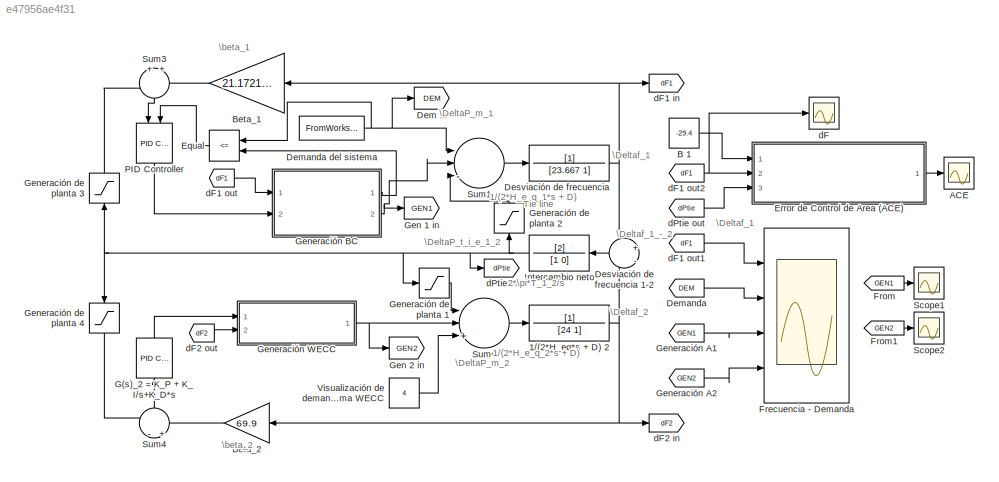
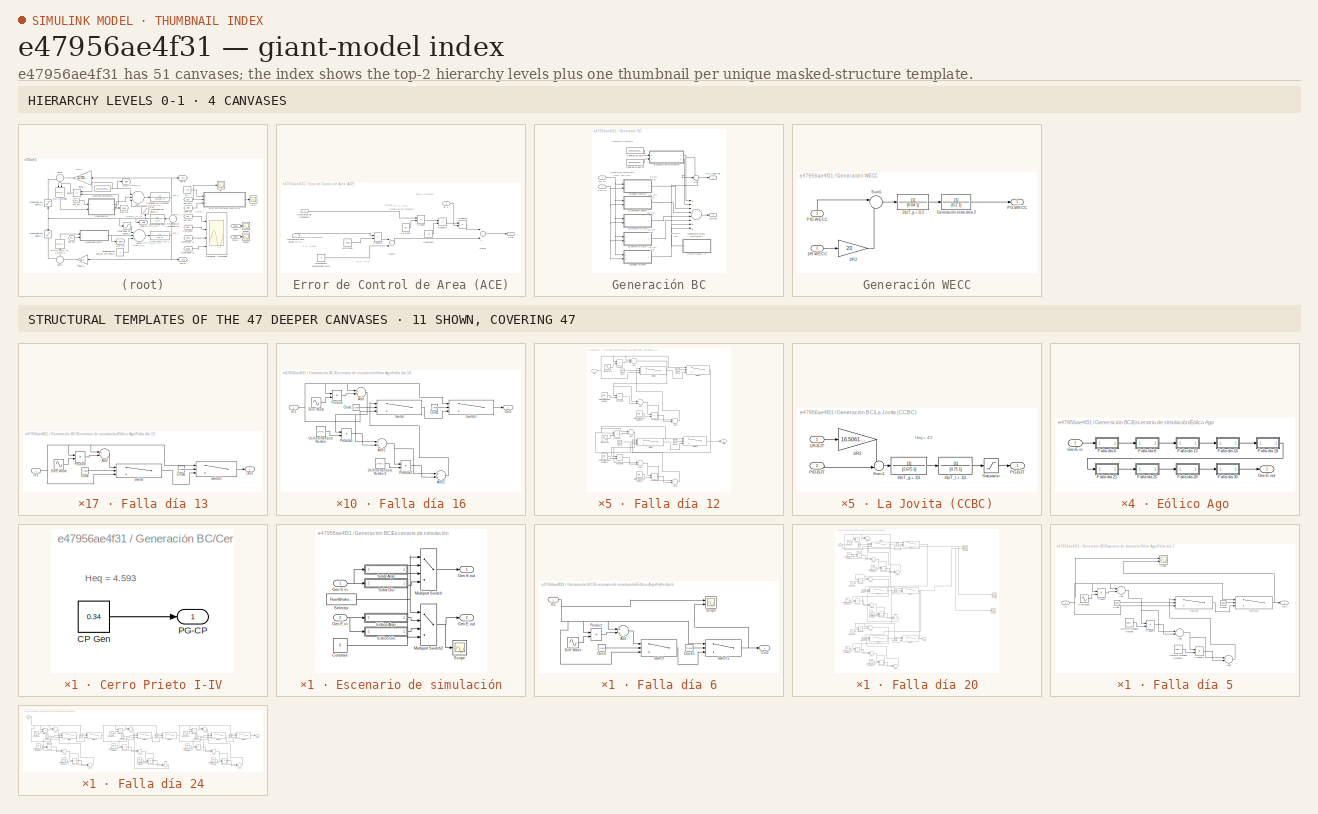
[diagram: thumbnail index - top-2 hierarchy levels (4 canvases) + 11 structural-template representatives of the remaining 47 canvases]
MODEL slx_e47956ae4f31
KIND model
CONFIG AbsTol = auto
CONFIG EnableMultiTasking = on
CONFIG FixedStep = 45
CONFIG MaxStep = auto
CONFIG MinStep = auto
CONFIG RelTol = 1e-3
CONFIG SampleTimeConstraint = Unconstrained
CONFIG Solver = VariableStepAuto
CONFIG SolverName = VariableStepAuto
CONFIG StartTime = 0
CONFIG StopTime = 2678400
BLOCK [TransferFcn] 1//(2*H_eq*s + D) 2
  Denominator = [24 1]
BLOCK [Scope] ACE
  Floating = off
  NumInputPorts = 1
  Ports = [1]
  ScopeSpecificationString = Simulink.scopes.TimeScopeBlockCfg('CurrentConfiguration', extmgr.ConfigurationSet(extmgr.Configuration('Core','General UI',true),extmgr.Configuration('Core','Source UI',true),extmgr.Configuration('Sources','WiredSimulink',true,'DataLoggingVariableName','ACE','SampleTime','1','DataLogging',true,'DataLoggingSaveFormat','Array'),extmgr.Configuration('Visuals','Time Domain',true,'SerializedDisplays',{...<+1545ch>
BLOCK [Constant] B 1
  Value = -29.4
BLOCK [Gain] Beta_1
  Gain = 21.1721722
  OutDataTypeStr = Inherit: Inherit via internal rule
  ParamDataTypeStr = Inherit: Inherit via internal rule
  SaturateOnIntegerOverflow = off
BLOCK [Gain] Beta_2
  Gain = 69.9
  OutDataTypeStr = Inherit: Inherit via internal rule
  ParamDataTypeStr = Inherit: Inherit via internal rule
  SaturateOnIntegerOverflow = off
BLOCK [Goto] Dem in
  GotoTag = DEM
BLOCK [From] Demanda
  GotoTag = DEM
BLOCK [FromWorkspace] Demanda del sistema
  SampleTime = 0
  VariableName = dem
  ZeroCross = on
BLOCK [TransferFcn] Desviación de frecuencia
  Denominator = [23.667 1]
BLOCK [Sum] Desviación de frecuencia 1-2
  IconShape = round
  InputSameDT = off
  Inputs = +|-
  OutDataTypeStr = Inherit: Inherit via internal rule
  Ports = [2, 1]
  SaturateOnIntegerOverflow = off
BLOCK [RelationalOperator] Equal
  InputSameDT = off
  Operator = <=
  OutDataTypeStr = boolean
  Ports = [2, 1]
  RndMeth = Simplest
BLOCK [SubSystem] Error de Control de Area (ACE)
  Ports = [3, 1]
  RequestExecContextInheritance = off
BLOCK [Outport] Error de Control de Area (ACE)/ACE
  IconDisplay = Port number
BLOCK [Inport] Error de Control de Area (ACE)/B 1
  IconDisplay = Port number
BLOCK [Constant] Error de Control de Area (ACE)/Constante
  Value = 10
BLOCK [Inport] Error de Control de Area (ACE)/Desviación de frecuencia
  IconDisplay = Port number
  Port = 2
BLOCK [Constant] Error de Control de Area (ACE)/Hz Base
  Value = 60
BLOCK [Inport] Error de Control de Area (ACE)/Intercambio neto actual (P.U.)
  IconDisplay = Port number
  Port = 3
BLOCK [Constant] Error de Control de Area (ACE)/Intercambio programado (MW)
  Value = 0
BLOCK [Constant] Error de Control de Area (ACE)/MW Base
  Value = 1000
BLOCK [Product] Error de Control de Area (ACE)/Product
  InputSameDT = off
  Inputs = **
  OutDataTypeStr = Inherit: Inherit via internal rule
  Ports = [2, 1]
  RndMeth = Floor
  SaturateOnIntegerOverflow = off
BLOCK [Product] Error de Control de Area (ACE)/Product1
  InputSameDT = off
  Inputs = **
  OutDataTypeStr = Inherit: Inherit via internal rule
  Ports = [2, 1]
  RndMeth = Floor
  SaturateOnIntegerOverflow = off
BLOCK [Product] Error de Control de Area (ACE)/Product2
  InputSameDT = off
  Inputs = **
  OutDataTypeStr = Inherit: Inherit via internal rule
  Ports = [2, 1]
  RndMeth = Floor
  SaturateOnIntegerOverflow = off
BLOCK [Product] Error de Control de Area (ACE)/Product3
  InputSameDT = off
  Inputs = **
  OutDataTypeStr = Inherit: Inherit via internal rule
  Ports = [2, 1]
  RndMeth = Floor
  SaturateOnIntegerOverflow = off
BLOCK [Sum] Error de Control de Area (ACE)/Sum7
  InputSameDT = off
  Inputs = +|-
  OutDataTypeStr = Inherit: Inherit via internal rule
  Ports = [2, 1]
  SaturateOnIntegerOverflow = off
BLOCK [Sum] Error de Control de Area (ACE)/Sum9
  InputSameDT = off
  Inputs = -|+
  OutDataTypeStr = Inherit: Inherit via internal rule
  Ports = [2, 1]
  SaturateOnIntegerOverflow = off
BLOCK [Scope] Frecuencia - Demanda
  Floating = off
  NumInputPorts = 4
  Ports = [4]
  ScopeSpecificationString = Simulink.scopes.TimeScopeBlockCfg('CurrentConfiguration', extmgr.ConfigurationSet(extmgr.Configuration('Core','General UI',true),extmgr.Configuration('Core','Source UI',true),extmgr.Configuration('Sources','WiredSimulink',true,'DataLoggingVariableName','FrecDem','DataLoggingSaveFormat','Array'),extmgr.Configuration('Visuals','Time Domain',true,'SerializedDisplays',{struct('MinYLimReal','-0.28925',...<+2182ch>
BLOCK [From] From
  GotoTag = GEN1
BLOCK [From] From1
  GotoTag = GEN2
BLOCK [Reference] G(s)_2 = K_P + K_I//s+K_D*s  REF=simulink/Continuous/PID Controller
  Ports = [1, 1]
  SourceBlock = simulink/Continuous/PID Controller
  SourceProductBaseCode = SL
  SourceProductName = Simulink
  SourceType = PID 1dof
BLOCK [Goto] Gen 1 in
  GotoTag = GEN1
BLOCK [Goto] Gen 2 in
  GotoTag = GEN2
BLOCK [From] Generación A1
  GotoTag = GEN1
BLOCK [From] Generación A2
  GotoTag = GEN2
BLOCK [SubSystem] Generación BC
  Ports = [2, 2]
  RequestExecContextInheritance = off
BLOCK [Inport] Generación BC/1//R in
  IconDisplay = Port number
BLOCK [SubSystem] Generación BC/Cerro Prieto I-IV
  Ports = [0, 1]
  RequestExecContextInheritance = off
BLOCK [Constant] Generación BC/Cerro Prieto I-IV/CP Gen
  Value = 0.34
BLOCK [Outport] Generación BC/Cerro Prieto I-IV/PG-CP
  IconDisplay = Port number
BLOCK [SubSystem] Generación BC/Escenario de simulación
  Ports = [2, 2]
  RequestExecContextInheritance = off
BLOCK [Constant] Generación BC/Escenario de simulación/Constant
  Value = 0
BLOCK [SubSystem] Generación BC/Escenario de simulación/Eólico Ago
  Ports = [1, 1]
  RequestExecContextInheritance = off
BLOCK [SubSystem] Generación BC/Escenario de simulación/Eólico Ago/Falla día 13
  Ports = [1, 1]
  RequestExecContextInheritance = off
BLOCK [Sum] Generación BC/Escenario de simulación/Eólico Ago/Falla día 13/Add
  InputSameDT = off
  OutDataTypeStr = Inherit: Inherit via internal rule
  Ports = [2, 1]
  SaturateOnIntegerOverflow = off
BLOCK [Clock] Generación BC/Escenario de simulación/Eólico Ago/Falla día 13/Clock
BLOCK [Clock] Generación BC/Escenario de simulación/Eólico Ago/Falla día 13/Clock1
BLOCK [Inport] Generación BC/Escenario de simulación/Eólico Ago/Falla día 13/In1
  IconDisplay = Port number
BLOCK [Outport] Generación BC/Escenario de simulación/Eólico Ago/Falla día 13/Out1
  IconDisplay = Port number
BLOCK [Product] Generación BC/Escenario de simulación/Eólico Ago/Falla día 13/Product
  InputSameDT = off
  OutDataTypeStr = Inherit: Inherit via internal rule
  Ports = [2, 1]
  RndMeth = Floor
  SaturateOnIntegerOverflow = off
BLOCK [Sin] Generación BC/Escenario de simulación/Eólico Ago/Falla día 13/Sine Wave
  Amplitude = 0.73
  Frequency = 0.00086071/2
  Phase = pi/2+pi/4.5
  Ports = [0, 1]
  SampleTime = 0
BLOCK [Switch] Generación BC/Escenario de simulación/Eólico Ago/Falla día 13/Switch
  InputSameDT = off
  SaturateOnIntegerOverflow = off
  Threshold = 1097000
BLOCK [Switch] Generación BC/Escenario de simulación/Eólico Ago/Falla día 13/Switch1
  InputSameDT = off
  SaturateOnIntegerOverflow = off
  Threshold = 1104300
BLOCK [SubSystem] Generación BC/Escenario de simulación/Eólico Ago/Falla día 16
  Ports = [1, 1]
  RequestExecContextInheritance = off
BLOCK [Sum] Generación BC/Escenario de simulación/Eólico Ago/Falla día 16/Add
  InputSameDT = off
  OutDataTypeStr = Inherit: Inherit via internal rule
  Ports = [2, 1]
  SaturateOnIntegerOverflow = off
BLOCK [Clock] Generación BC/Escenario de simulación/Eólico Ago/Falla día 16/Clock
BLOCK [Clock] Generación BC/Escenario de simulación/Eólico Ago/Falla día 16/Clock1
BLOCK [Inport] Generación BC/Escenario de simulación/Eólico Ago/Falla día 16/In1
  IconDisplay = Port number
BLOCK [Outport] Generación BC/Escenario de simulación/Eólico Ago/Falla día 16/Out1
  IconDisplay = Port number
BLOCK [Product] Generación BC/Escenario de simulación/Eólico Ago/Falla día 16/Product
  InputSameDT = off
  OutDataTypeStr = Inherit: Inherit via internal rule
  Ports = [2, 1]
  RndMeth = Floor
  SaturateOnIntegerOverflow = off
BLOCK [Sin] Generación BC/Escenario de simulación/Eólico Ago/Falla día 16/Sine Wave
  Amplitude = 0.20
  Frequency = 0.000455303
  Phase = 3*pi/2+pi+pi/8.1
  Ports = [0, 1]
  SampleTime = 0
BLOCK [Switch] Generación BC/Escenario de simulación/Eólico Ago/Falla día 16/Switch
  InputSameDT = off
  SaturateOnIntegerOverflow = off
  Threshold = 1355000
BLOCK [Switch] Generación BC/Escenario de simulación/Eólico Ago/Falla día 16/Switch1
  InputSameDT = off
  SaturateOnIntegerOverflow = off
  Threshold = 1361900
BLOCK [SubSystem] Generación BC/Escenario de simulación/Eólico Ago/Falla día 18
  Ports = [1, 1]
  RequestExecContextInheritance = off
BLOCK [Sum] Generación BC/Escenario de simulación/Eólico Ago/Falla día 18/Add
  InputSameDT = off
  OutDataTypeStr = Inherit: Inherit via internal rule
  Ports = [2, 1]
  SaturateOnIntegerOverflow = off
BLOCK [Clock] Generación BC/Escenario de simulación/Eólico Ago/Falla día 18/Clock
BLOCK [Clock] Generación BC/Escenario de simulación/Eólico Ago/Falla día 18/Clock1
BLOCK [Inport] Generación BC/Escenario de simulación/Eólico Ago/Falla día 18/In1
  IconDisplay = Port number
BLOCK [Outport] Generación BC/Escenario de simulación/Eólico Ago/Falla día 18/Out1
  IconDisplay = Port number
BLOCK [Product] Generación BC/Escenario de simulación/Eólico Ago/Falla día 18/Product
  InputSameDT = off
  OutDataTypeStr = Inherit: Inherit via internal rule
  Ports = [2, 1]
  RndMeth = Floor
  SaturateOnIntegerOverflow = off
BLOCK [Sin] Generación BC/Escenario de simulación/Eólico Ago/Falla día 18/Sine Wave
  Amplitude = 0.71
  Frequency = 0.000263999
  Phase = pi/4+pi/93
  Ports = [0, 1]
  SampleTime = 0
BLOCK [Switch] Generación BC/Escenario de simulación/Eólico Ago/Falla día 18/Switch
  InputSameDT = off
  SaturateOnIntegerOverflow = off
  Threshold = 1532000
BLOCK [Switch] Generación BC/Escenario de simulación/Eólico Ago/Falla día 18/Switch1
  InputSameDT = off
  SaturateOnIntegerOverflow = off
  Threshold = 1543900
BLOCK [SubSystem] Generación BC/Escenario de simulación/Eólico Ago/Falla día 21
  Ports = [1, 1]
  RequestExecContextInheritance = off
BLOCK [Sum] Generación BC/Escenario de simulación/Eólico Ago/Falla día 21/Add
  InputSameDT = off
  OutDataTypeStr = Inherit: Inherit via internal rule
  Ports = [2, 1]
  SaturateOnIntegerOverflow = off
BLOCK [Clock] Generación BC/Escenario de simulación/Eólico Ago/Falla día 21/Clock
BLOCK [Clock] Generación BC/Escenario de simulación/Eólico Ago/Falla día 21/Clock1
BLOCK [Inport] Generación BC/Escenario de simulación/Eólico Ago/Falla día 21/In1
  IconDisplay = Port number
BLOCK [Outport] Generación BC/Escenario de simulación/Eólico Ago/Falla día 21/Out1
  IconDisplay = Port number
BLOCK [Product] Generación BC/Escenario de simulación/Eólico Ago/Falla día 21/Product
  InputSameDT = off
  OutDataTypeStr = Inherit: Inherit via internal rule
  Ports = [2, 1]
  RndMeth = Floor
  SaturateOnIntegerOverflow = off
BLOCK [Sin] Generación BC/Escenario de simulación/Eólico Ago/Falla día 21/Sine Wave
  Amplitude = 0.54
  Frequency = 0.000213714
  Phase = -pi/4-pi/16
  Ports = [0, 1]
  SampleTime = 0
BLOCK [Switch] Generación BC/Escenario de simulación/Eólico Ago/Falla día 21/Switch
  InputSameDT = off
  SaturateOnIntegerOverflow = off
  Threshold = 1783300
BLOCK [Switch] Generación BC/Escenario de simulación/Eólico Ago/Falla día 21/Switch1
  InputSameDT = off
  SaturateOnIntegerOverflow = off
  Threshold = 1798000
BLOCK [SubSystem] Generación BC/Escenario de simulación/Eólico Ago/Falla día 25
  Ports = [1, 1]
  RequestExecContextInheritance = off
BLOCK [Sum] Generación BC/Escenario de simulación/Eólico Ago/Falla día 25/Add
  InputSameDT = off
  OutDataTypeStr = Inherit: Inherit via internal rule
  Ports = [2, 1]
  SaturateOnIntegerOverflow = off
BLOCK [Clock] Generación BC/Escenario de simulación/Eólico Ago/Falla día 25/Clock
BLOCK [Clock] Generación BC/Escenario de simulación/Eólico Ago/Falla día 25/Clock1
BLOCK [Inport] Generación BC/Escenario de simulación/Eólico Ago/Falla día 25/In1
  IconDisplay = Port number
BLOCK [Outport] Generación BC/Escenario de simulación/Eólico Ago/Falla día 25/Out1
  IconDisplay = Port number
BLOCK [Product] Generación BC/Escenario de simulación/Eólico Ago/Falla día 25/Product
  InputSameDT = off
  OutDataTypeStr = Inherit: Inherit via internal rule
  Ports = [2, 1]
  RndMeth = Floor
  SaturateOnIntegerOverflow = off
BLOCK [Sin] Generación BC/Escenario de simulación/Eólico Ago/Falla día 25/Sine Wave
  Amplitude = 0.44
  Frequency = 0.000259636
  Phase = pi-pi/4.33
  Ports = [0, 1]
  SampleTime = 0
BLOCK [Switch] Generación BC/Escenario de simulación/Eólico Ago/Falla día 25/Switch
  InputSameDT = off
  SaturateOnIntegerOverflow = off
  Threshold = 2132400
BLOCK [Switch] Generación BC/Escenario de simulación/Eólico Ago/Falla día 25/Switch1
  InputSameDT = off
  SaturateOnIntegerOverflow = off
  Threshold = 2144500
BLOCK [SubSystem] Generación BC/Escenario de simulación/Eólico Ago/Falla día 28
  Ports = [1, 1]
  RequestExecContextInheritance = off
BLOCK [Sum] Generación BC/Escenario de simulación/Eólico Ago/Falla día 28/Add
  InputSameDT = off
  OutDataTypeStr = Inherit: Inherit via internal rule
  Ports = [2, 1]
  SaturateOnIntegerOverflow = off
BLOCK [Clock] Generación BC/Escenario de simulación/Eólico Ago/Falla día 28/Clock
BLOCK [Clock] Generación BC/Escenario de simulación/Eólico Ago/Falla día 28/Clock1
BLOCK [Inport] Generación BC/Escenario de simulación/Eólico Ago/Falla día 28/In1
  IconDisplay = Port number
BLOCK [Outport] Generación BC/Escenario de simulación/Eólico Ago/Falla día 28/Out1
  IconDisplay = Port number
BLOCK [Product] Generación BC/Escenario de simulación/Eólico Ago/Falla día 28/Product
  InputSameDT = off
  OutDataTypeStr = Inherit: Inherit via internal rule
  Ports = [2, 1]
  RndMeth = Floor
  SaturateOnIntegerOverflow = off
BLOCK [Sin] Generación BC/Escenario de simulación/Eólico Ago/Falla día 28/Sine Wave
  Amplitude = 0.95
  Frequency = 0.000255414
  Phase = -pi/3.001
  Ports = [0, 1]
  SampleTime = 0
BLOCK [Switch] Generación BC/Escenario de simulación/Eólico Ago/Falla día 28/Switch
  InputSameDT = off
  SaturateOnIntegerOverflow = off
  Threshold = 2402600
BLOCK [Switch] Generación BC/Escenario de simulación/Eólico Ago/Falla día 28/Switch1
  InputSameDT = off
  SaturateOnIntegerOverflow = off
  Threshold = 2414900
BLOCK [SubSystem] Generación BC/Escenario de simulación/Eólico Ago/Falla día 30
  Ports = [1, 1]
  RequestExecContextInheritance = off
BLOCK [Sum] Generación BC/Escenario de simulación/Eólico Ago/Falla día 30/Add
  InputSameDT = off
  OutDataTypeStr = Inherit: Inherit via internal rule
  Ports = [2, 1]
  SaturateOnIntegerOverflow = off
BLOCK [Clock] Generación BC/Escenario de simulación/Eólico Ago/Falla día 30/Clock
BLOCK [Clock] Generación BC/Escenario de simulación/Eólico Ago/Falla día 30/Clock1
BLOCK [Inport] Generación BC/Escenario de simulación/Eólico Ago/Falla día 30/In1
  IconDisplay = Port number
BLOCK [Outport] Generación BC/Escenario de simulación/Eólico Ago/Falla día 30/Out1
  IconDisplay = Port number
BLOCK [Product] Generación BC/Escenario de simulación/Eólico Ago/Falla día 30/Product
  InputSameDT = off
  OutDataTypeStr = Inherit: Inherit via internal rule
  Ports = [2, 1]
  RndMeth = Floor
  SaturateOnIntegerOverflow = off
BLOCK [Sin] Generación BC/Escenario de simulación/Eólico Ago/Falla día 30/Sine Wave
  Amplitude = 0.93
  Frequency = 0.000119000
  Phase = -pi/32.76
  Ports = [0, 1]
  SampleTime = 0
BLOCK [Switch] Generación BC/Escenario de simulación/Eólico Ago/Falla día 30/Switch
  InputSameDT = off
  SaturateOnIntegerOverflow = off
  Threshold = 2561600
BLOCK [Switch] Generación BC/Escenario de simulación/Eólico Ago/Falla día 30/Switch1
  InputSameDT = off
  SaturateOnIntegerOverflow = off
  Threshold = 2588000
BLOCK [SubSystem] Generación BC/Escenario de simulación/Eólico Ago/Falla día 6
  Ports = [1, 1]
  RequestExecContextInheritance = off
BLOCK [Sum] Generación BC/Escenario de simulación/Eólico Ago/Falla día 6/Add
  InputSameDT = off
  OutDataTypeStr = Inherit: Inherit via internal rule
  Ports = [2, 1]
  SaturateOnIntegerOverflow = off
BLOCK [Clock] Generación BC/Escenario de simulación/Eólico Ago/Falla día 6/Clock
BLOCK [Clock] Generación BC/Escenario de simulación/Eólico Ago/Falla día 6/Clock1
BLOCK [Inport] Generación BC/Escenario de simulación/Eólico Ago/Falla día 6/In1
  IconDisplay = Port number
BLOCK [Outport] Generación BC/Escenario de simulación/Eólico Ago/Falla día 6/Out1
  IconDisplay = Port number
BLOCK [Product] Generación BC/Escenario de simulación/Eólico Ago/Falla día 6/Product
  InputSameDT = off
  OutDataTypeStr = Inherit: Inherit via internal rule
  Ports = [2, 1]
  RndMeth = Floor
  SaturateOnIntegerOverflow = off
BLOCK [Scope] Generación BC/Escenario de simulación/Eólico Ago/Falla día 6/Scope
  Floating = off
  NumInputPorts = 2
  Ports = [2]
  ScopeSpecificationString = Simulink.scopes.TimeScopeBlockCfg('CurrentConfiguration', extmgr.ConfigurationSet(extmgr.Configuration('Core','General UI',true),extmgr.Configuration('Core','Source UI',true),extmgr.Configuration('Sources','WiredSimulink',true,'DataLoggingVariableName','ScopeData1'),extmgr.Configuration('Visuals','Time Domain',true,'SerializedDisplays',{struct('MinYLimReal','-0.08894','MaxYLimReal','0.7475','YLabe...<+1422ch>
BLOCK [Sin] Generación BC/Escenario de simulación/Eólico Ago/Falla día 6/Sine Wave
  Amplitude = 0.52
  Frequency = 0.000213714
  Phase = pi/2+pi+pi/42
  Ports = [0, 1]
  SampleTime = 0
BLOCK [Switch] Generación BC/Escenario de simulación/Eólico Ago/Falla día 6/Switch
  InputSameDT = off
  SaturateOnIntegerOverflow = off
  Threshold = 492100
BLOCK [Switch] Generación BC/Escenario de simulación/Eólico Ago/Falla día 6/Switch1
  InputSameDT = off
  SaturateOnIntegerOverflow = off
  Threshold = 506800
BLOCK [SubSystem] Generación BC/Escenario de simulación/Eólico Ago/Falla día 8
  Ports = [1, 1]
  RequestExecContextInheritance = off
BLOCK [Sum] Generación BC/Escenario de simulación/Eólico Ago/Falla día 8/Add
  InputSameDT = off
  OutDataTypeStr = Inherit: Inherit via internal rule
  Ports = [2, 1]
  SaturateOnIntegerOverflow = off
BLOCK [Clock] Generación BC/Escenario de simulación/Eólico Ago/Falla día 8/Clock
BLOCK [Clock] Generación BC/Escenario de simulación/Eólico Ago/Falla día 8/Clock1
BLOCK [Inport] Generación BC/Escenario de simulación/Eólico Ago/Falla día 8/In1
  IconDisplay = Port number
BLOCK [Outport] Generación BC/Escenario de simulación/Eólico Ago/Falla día 8/Out1
  IconDisplay = Port number
BLOCK [Product] Generación BC/Escenario de simulación/Eólico Ago/Falla día 8/Product
  InputSameDT = off
  OutDataTypeStr = Inherit: Inherit via internal rule
  Ports = [2, 1]
  RndMeth = Floor
  SaturateOnIntegerOverflow = off
BLOCK [Sin] Generación BC/Escenario de simulación/Eólico Ago/Falla día 8/Sine Wave
  Amplitude = 0.62
  Frequency = 3.779359583e-4/2
  Phase = -pi/2-pi/24
  Ports = [0, 1]
  SampleTime = 0
BLOCK [Switch] Generación BC/Escenario de simulación/Eólico Ago/Falla día 8/Switch
  InputSameDT = off
  SaturateOnIntegerOverflow = off
  Threshold = 657450
BLOCK [Switch] Generación BC/Escenario de simulación/Eólico Ago/Falla día 8/Switch1
  InputSameDT = off
  SaturateOnIntegerOverflow = off
  Threshold = 674075
BLOCK [Inport] Generación BC/Escenario de simulación/Eólico Ago/Gen E in
  IconDisplay = Port number
BLOCK [Outport] Generación BC/Escenario de simulación/Eólico Ago/Gen E out
  IconDisplay = Port number
BLOCK [SubSystem] Generación BC/Escenario de simulación/Eólico Dic
  Ports = [1, 1]
  RequestExecContextInheritance = off
BLOCK [SubSystem] Generación BC/Escenario de simulación/Eólico Dic/Falla día 12
  Ports = [1, 1]
  RequestExecContextInheritance = off
BLOCK [Sum] Generación BC/Escenario de simulación/Eólico Dic/Falla día 12/Add
  InputSameDT = off
  OutDataTypeStr = Inherit: Inherit via internal rule
  Ports = [2, 1]
  SaturateOnIntegerOverflow = off
BLOCK [Clock] Generación BC/Escenario de simulación/Eólico Dic/Falla día 12/Clock
BLOCK [Clock] Generación BC/Escenario de simulación/Eólico Dic/Falla día 12/Clock1
BLOCK [Inport] Generación BC/Escenario de simulación/Eólico Dic/Falla día 12/In1
  IconDisplay = Port number
BLOCK [Outport] Generación BC/Escenario de simulación/Eólico Dic/Falla día 12/Out1
  IconDisplay = Port number
BLOCK [Product] Generación BC/Escenario de simulación/Eólico Dic/Falla día 12/Product
  InputSameDT = off
  OutDataTypeStr = Inherit: Inherit via internal rule
  Ports = [2, 1]
  RndMeth = Floor
  SaturateOnIntegerOverflow = off
BLOCK [Sin] Generación BC/Escenario de simulación/Eólico Dic/Falla día 12/Sine Wave
  Amplitude = 0.94
  Frequency = 0.000475999
  Phase = pi-pi/3.66
  Ports = [0, 1]
  SampleTime = 0
BLOCK [Switch] Generación BC/Escenario de simulación/Eólico Dic/Falla día 12/Switch
  InputSameDT = off
  SaturateOnIntegerOverflow = off
  Threshold = 991800
BLOCK [Switch] Generación BC/Escenario de simulación/Eólico Dic/Falla día 12/Switch1
  InputSameDT = off
  SaturateOnIntegerOverflow = off
  Threshold = 998400
BLOCK [SubSystem] Generación BC/Escenario de simulación/Eólico Dic/Falla día 14
  Ports = [1, 1]
  RequestExecContextInheritance = off
BLOCK [Sum] Generación BC/Escenario de simulación/Eólico Dic/Falla día 14/Add
  InputSameDT = off
  OutDataTypeStr = Inherit: Inherit via internal rule
  Ports = [2, 1]
  SaturateOnIntegerOverflow = off
BLOCK [Clock] Generación BC/Escenario de simulación/Eólico Dic/Falla día 14/Clock
BLOCK [Clock] Generación BC/Escenario de simulación/Eólico Dic/Falla día 14/Clock1
BLOCK [Inport] Generación BC/Escenario de simulación/Eólico Dic/Falla día 14/In1
  IconDisplay = Port number
BLOCK [Outport] Generación BC/Escenario de simulación/Eólico Dic/Falla día 14/Out1
  IconDisplay = Port number
BLOCK [Product] Generación BC/Escenario de simulación/Eólico Dic/Falla día 14/Product
  InputSameDT = off
  OutDataTypeStr = Inherit: Inherit via internal rule
  Ports = [2, 1]
  RndMeth = Floor
  SaturateOnIntegerOverflow = off
BLOCK [Sin] Generación BC/Escenario de simulación/Eólico Dic/Falla día 14/Sine Wave
  Amplitude = 0.20
  Frequency = 0.000180551
  Phase = -3*pi/4-pi/23.5
  Ports = [0, 1]
  SampleTime = 0
BLOCK [Switch] Generación BC/Escenario de simulación/Eólico Dic/Falla día 14/Switch
  InputSameDT = off
  SaturateOnIntegerOverflow = off
  Threshold = 1179600
BLOCK [Switch] Generación BC/Escenario de simulación/Eólico Dic/Falla día 14/Switch1
  InputSameDT = off
  SaturateOnIntegerOverflow = off
  Threshold = 1197000
BLOCK [SubSystem] Generación BC/Escenario de simulación/Eólico Dic/Falla día 16
  Ports = [1, 1]
  RequestExecContextInheritance = off
BLOCK [Sum] Generación BC/Escenario de simulación/Eólico Dic/Falla día 16/Add
  InputSameDT = off
  OutDataTypeStr = Inherit: Inherit via internal rule
  Ports = [2, 1]
  SaturateOnIntegerOverflow = off
BLOCK [Clock] Generación BC/Escenario de simulación/Eólico Dic/Falla día 16/Clock
BLOCK [Clock] Generación BC/Escenario de simulación/Eólico Dic/Falla día 16/Clock1
BLOCK [Inport] Generación BC/Escenario de simulación/Eólico Dic/Falla día 16/In1
  IconDisplay = Port number
BLOCK [Outport] Generación BC/Escenario de simulación/Eólico Dic/Falla día 16/Out1
  IconDisplay = Port number
BLOCK [Product] Generación BC/Escenario de simulación/Eólico Dic/Falla día 16/Product
  InputSameDT = off
  OutDataTypeStr = Inherit: Inherit via internal rule
  Ports = [2, 1]
  RndMeth = Floor
  SaturateOnIntegerOverflow = off
BLOCK [Sin] Generación BC/Escenario de simulación/Eólico Dic/Falla día 16/Sine Wave
  Amplitude = 0.41
  Frequency = 0.000515015
  Phase = -pi/2-pi/128
  Ports = [0, 1]
  SampleTime = 0
BLOCK [Switch] Generación BC/Escenario de simulación/Eólico Dic/Falla día 16/Switch
  InputSameDT = off
  SaturateOnIntegerOverflow = off
  Threshold = 1326800
BLOCK [Switch] Generación BC/Escenario de simulación/Eólico Dic/Falla día 16/Switch1
  InputSameDT = off
  SaturateOnIntegerOverflow = off
  Threshold = 1332900
BLOCK [SubSystem] Generación BC/Escenario de simulación/Eólico Dic/Falla día 20
  Ports = [1, 1]
  RequestExecContextInheritance = off
BLOCK [Sum] Generación BC/Escenario de simulación/Eólico Dic/Falla día 20/Add
  InputSameDT = off
  OutDataTypeStr = Inherit: Inherit via internal rule
  Ports = [2, 1]
  SaturateOnIntegerOverflow = off
BLOCK [Clock] Generación BC/Escenario de simulación/Eólico Dic/Falla día 20/Clock
BLOCK [Clock] Generación BC/Escenario de simulación/Eólico Dic/Falla día 20/Clock1
BLOCK [Inport] Generación BC/Escenario de simulación/Eólico Dic/Falla día 20/In1
  IconDisplay = Port number
BLOCK [Outport] Generación BC/Escenario de simulación/Eólico Dic/Falla día 20/Out1
  IconDisplay = Port number
BLOCK [Product] Generación BC/Escenario de simulación/Eólico Dic/Falla día 20/Product
  InputSameDT = off
  OutDataTypeStr = Inherit: Inherit via internal rule
  Ports = [2, 1]
  RndMeth = Floor
  SaturateOnIntegerOverflow = off
BLOCK [Sin] Generación BC/Escenario de simulación/Eólico Dic/Falla día 20/Sine Wave
  Amplitude = 0.36
  Frequency = 0.000356999
  Phase = -pi/2-pi/10
  Ports = [0, 1]
  SampleTime = 0
BLOCK [Switch] Generación BC/Escenario de simulación/Eólico Dic/Falla día 20/Switch
  InputSameDT = off
  SaturateOnIntegerOverflow = off
  Threshold = 1686100
BLOCK [Switch] Generación BC/Escenario de simulación/Eólico Dic/Falla día 20/Switch1
  InputSameDT = off
  SaturateOnIntegerOverflow = off
  Threshold = 1694900
BLOCK [SubSystem] Generación BC/Escenario de simulación/Eólico Dic/Falla día 24
  Ports = [1, 1]
  RequestExecContextInheritance = off
BLOCK [Sum] Generación BC/Escenario de simulación/Eólico Dic/Falla día 24/Add
  InputSameDT = off
  OutDataTypeStr = Inherit: Inherit via internal rule
  Ports = [2, 1]
  SaturateOnIntegerOverflow = off
BLOCK [Clock] Generación BC/Escenario de simulación/Eólico Dic/Falla día 24/Clock
BLOCK [Clock] Generación BC/Escenario de simulación/Eólico Dic/Falla día 24/Clock1
BLOCK [Inport] Generación BC/Escenario de simulación/Eólico Dic/Falla día 24/In1
  IconDisplay = Port number
BLOCK [Outport] Generación BC/Escenario de simulación/Eólico Dic/Falla día 24/Out1
  IconDisplay = Port number
BLOCK [Product] Generación BC/Escenario de simulación/Eólico Dic/Falla día 24/Product
  InputSameDT = off
  OutDataTypeStr = Inherit: Inherit via internal rule
  Ports = [2, 1]
  RndMeth = Floor
  SaturateOnIntegerOverflow = off
BLOCK [Sin] Generación BC/Escenario de simulación/Eólico Dic/Falla día 24/Sine Wave
  Amplitude = 0.59
  Frequency = 0.000345230
  Phase = pi-pi/10.1
  Ports = [0, 1]
  SampleTime = 0
BLOCK [Switch] Generación BC/Escenario de simulación/Eólico Dic/Falla día 24/Switch
  InputSameDT = off
  SaturateOnIntegerOverflow = off
  Threshold = 2002900
BLOCK [Switch] Generación BC/Escenario de simulación/Eólico Dic/Falla día 24/Switch1
  InputSameDT = off
  SaturateOnIntegerOverflow = off
  Threshold = 2012000
BLOCK [SubSystem] Generación BC/Escenario de simulación/Eólico Dic/Falla día 30
  Ports = [1, 1]
  RequestExecContextInheritance = off
BLOCK [Sum] Generación BC/Escenario de simulación/Eólico Dic/Falla día 30/Add
  InputSameDT = off
  OutDataTypeStr = Inherit: Inherit via internal rule
  Ports = [2, 1]
  SaturateOnIntegerOverflow = off
BLOCK [Clock] Generación BC/Escenario de simulación/Eólico Dic/Falla día 30/Clock
BLOCK [Clock] Generación BC/Escenario de simulación/Eólico Dic/Falla día 30/Clock1
BLOCK [Inport] Generación BC/Escenario de simulación/Eólico Dic/Falla día 30/In1
  IconDisplay = Port number
BLOCK [Outport] Generación BC/Escenario de simulación/Eólico Dic/Falla día 30/Out1
  IconDisplay = Port number
BLOCK [Product] Generación BC/Escenario de simulación/Eólico Dic/Falla día 30/Product
  InputSameDT = off
  OutDataTypeStr = Inherit: Inherit via internal rule
  Ports = [2, 1]
  RndMeth = Floor
  SaturateOnIntegerOverflow = off
BLOCK [Sin] Generación BC/Escenario de simulación/Eólico Dic/Falla día 30/Sine Wave
  Amplitude = 0.3
  Frequency = 0.000073060
  Phase = pi/2+pi/10.21
  Ports = [0, 1]
  SampleTime = 0
BLOCK [Switch] Generación BC/Escenario de simulación/Eólico Dic/Falla día 30/Switch
  InputSameDT = off
  SaturateOnIntegerOverflow = off
  Threshold = 2511300
BLOCK [Switch] Generación BC/Escenario de simulación/Eólico Dic/Falla día 30/Switch1
  InputSameDT = off
  SaturateOnIntegerOverflow = off
  Threshold = 2554300
BLOCK [SubSystem] Generación BC/Escenario de simulación/Eólico Dic/Falla día 4
  Ports = [1, 1]
  RequestExecContextInheritance = off
BLOCK [Sum] Generación BC/Escenario de simulación/Eólico Dic/Falla día 4/Add
  InputSameDT = off
  OutDataTypeStr = Inherit: Inherit via internal rule
  Ports = [2, 1]
  SaturateOnIntegerOverflow = off
BLOCK [Clock] Generación BC/Escenario de simulación/Eólico Dic/Falla día 4/Clock
BLOCK [Clock] Generación BC/Escenario de simulación/Eólico Dic/Falla día 4/Clock1
BLOCK [Inport] Generación BC/Escenario de simulación/Eólico Dic/Falla día 4/In1
  IconDisplay = Port number
BLOCK [Outport] Generación BC/Escenario de simulación/Eólico Dic/Falla día 4/Out1
  IconDisplay = Port number
BLOCK [Product] Generación BC/Escenario de simulación/Eólico Dic/Falla día 4/Product
  InputSameDT = off
  OutDataTypeStr = Inherit: Inherit via internal rule
  Ports = [2, 1]
  RndMeth = Floor
  SaturateOnIntegerOverflow = off
BLOCK [Sin] Generación BC/Escenario de simulación/Eólico Dic/Falla día 4/Sine Wave
  Amplitude = 0.6
  Frequency = 2.992e-4
  Phase = -pi/2-pi/4-pi/46.5
  Ports = [0, 1]
  SampleTime = 0
BLOCK [Switch] Generación BC/Escenario de simulación/Eólico Dic/Falla día 4/Switch
  InputSameDT = off
  SaturateOnIntegerOverflow = off
  Threshold = 312600
BLOCK [Switch] Generación BC/Escenario de simulación/Eólico Dic/Falla día 4/Switch1
  InputSameDT = off
  SaturateOnIntegerOverflow = off
  Threshold = 323100
BLOCK [SubSystem] Generación BC/Escenario de simulación/Eólico Dic/Falla día 8
  Ports = [1, 1]
  RequestExecContextInheritance = off
BLOCK [Sum] Generación BC/Escenario de simulación/Eólico Dic/Falla día 8/Add
  InputSameDT = off
  OutDataTypeStr = Inherit: Inherit via internal rule
  Ports = [2, 1]
  SaturateOnIntegerOverflow = off
BLOCK [Clock] Generación BC/Escenario de simulación/Eólico Dic/Falla día 8/Clock
BLOCK [Clock] Generación BC/Escenario de simulación/Eólico Dic/Falla día 8/Clock1
BLOCK [Inport] Generación BC/Escenario de simulación/Eólico Dic/Falla día 8/In1
  IconDisplay = Port number
BLOCK [Outport] Generación BC/Escenario de simulación/Eólico Dic/Falla día 8/Out1
  IconDisplay = Port number
BLOCK [Product] Generación BC/Escenario de simulación/Eólico Dic/Falla día 8/Product
  InputSameDT = off
  OutDataTypeStr = Inherit: Inherit via internal rule
  Ports = [2, 1]
  RndMeth = Floor
  SaturateOnIntegerOverflow = off
BLOCK [Sin] Generación BC/Escenario de simulación/Eólico Dic/Falla día 8/Sine Wave
  Amplitude = 0.41
  Frequency = 0.000951998
  Phase = -pi/1.57
  Ports = [0, 1]
  SampleTime = 0
BLOCK [Switch] Generación BC/Escenario de simulación/Eólico Dic/Falla día 8/Switch
  InputSameDT = off
  SaturateOnIntegerOverflow = off
  Threshold = 632400
BLOCK [Switch] Generación BC/Escenario de simulación/Eólico Dic/Falla día 8/Switch1
  InputSameDT = off
  SaturateOnIntegerOverflow = off
  Threshold = 635700
BLOCK [SubSystem] Generación BC/Escenario de simulación/Eólico Dic/Falla día 9
  Ports = [1, 1]
  RequestExecContextInheritance = off
BLOCK [Sum] Generación BC/Escenario de simulación/Eólico Dic/Falla día 9/Add
  InputSameDT = off
  OutDataTypeStr = Inherit: Inherit via internal rule
  Ports = [2, 1]
  SaturateOnIntegerOverflow = off
BLOCK [Clock] Generación BC/Escenario de simulación/Eólico Dic/Falla día 9/Clock
BLOCK [Clock] Generación BC/Escenario de simulación/Eólico Dic/Falla día 9/Clock1
BLOCK [Inport] Generación BC/Escenario de simulación/Eólico Dic/Falla día 9/In1
  IconDisplay = Port number
BLOCK [Outport] Generación BC/Escenario de simulación/Eólico Dic/Falla día 9/Out1
  IconDisplay = Port number
BLOCK [Product] Generación BC/Escenario de simulación/Eólico Dic/Falla día 9/Product
  InputSameDT = off
  OutDataTypeStr = Inherit: Inherit via internal rule
  Ports = [2, 1]
  RndMeth = Floor
  SaturateOnIntegerOverflow = off
BLOCK [Sin] Generación BC/Escenario de simulación/Eólico Dic/Falla día 9/Sine Wave
  Amplitude = 0.21
  Frequency = 0.000448799
  Phase = -pi-pi/3.69
  Ports = [0, 1]
  SampleTime = 0
BLOCK [Switch] Generación BC/Escenario de simulación/Eólico Dic/Falla día 9/Switch
  InputSameDT = off
  SaturateOnIntegerOverflow = off
  Threshold = 743900
BLOCK [Switch] Generación BC/Escenario de simulación/Eólico Dic/Falla día 9/Switch1
  InputSameDT = off
  SaturateOnIntegerOverflow = off
  Threshold = 750900
BLOCK [Inport] Generación BC/Escenario de simulación/Eólico Dic/Gen E in
  IconDisplay = Port number
BLOCK [Outport] Generación BC/Escenario de simulación/Eólico Dic/Gen E out
  IconDisplay = Port number
BLOCK [Inport] Generación BC/Escenario de simulación/Gen E in
  IconDisplay = Port number
  Port = 2
BLOCK [Outport] Generación BC/Escenario de simulación/Gen E out
  IconDisplay = Port number
  Port = 2
BLOCK [Inport] Generación BC/Escenario de simulación/Gen S in
  IconDisplay = Port number
BLOCK [Outport] Generación BC/Escenario de simulación/Gen S out
  IconDisplay = Port number
BLOCK [MultiPortSwitch] Generación BC/Escenario de simulación/Multiport Switch
  DataPortForDefault = Additional data port
  InputSameDT = off
  Inputs = 2
  Ports = [4, 1]
  SaturateOnIntegerOverflow = off
BLOCK [MultiPortSwitch] Generación BC/Escenario de simulación/Multiport Switch2
  DataPortForDefault = Additional data port
  InputSameDT = off
  Inputs = 2
  Ports = [4, 1]
  SaturateOnIntegerOverflow = off
BLOCK [Scope] Generación BC/Escenario de simulación/Scope
  Floating = off
  NumInputPorts = 1
  Ports = [1]
  ScopeSpecificationString = Simulink.scopes.TimeScopeBlockCfg('CurrentConfiguration', extmgr.ConfigurationSet(extmgr.Configuration('Core','General UI',true),extmgr.Configuration('Core','Source UI',true),extmgr.Configuration('Sources','WiredSimulink',true,'DataLoggingVariableName','genwind','DataLogging',true,'DataLoggingSaveFormat','Array','SampleTime','1'),extmgr.Configuration('Visuals','Time Domain',true,'SerializedDisplay...<+1382ch>
BLOCK [FromWorkspace] Generación BC/Escenario de simulación/Selector
  OutDataTypeStr = double
  OutputAfterFinalValue = Holding final value
  SampleTime = 0
  VariableName = p
  ZeroCross = on
BLOCK [SubSystem] Generación BC/Escenario de simulación/Solar Ago
  Ports = [1, 1]
  RequestExecContextInheritance = off
BLOCK [SubSystem] Generación BC/Escenario de simulación/Solar Ago/Falla día 12
  Ports = [1, 1]
  RequestExecContextInheritance = off
BLOCK [Sum] Generación BC/Escenario de simulación/Solar Ago/Falla día 12/Add
  InputSameDT = off
  OutDataTypeStr = Inherit: Inherit via internal rule
  Ports = [2, 1]
  SaturateOnIntegerOverflow = off
BLOCK [Sum] Generación BC/Escenario de simulación/Solar Ago/Falla día 12/Add1
  InputSameDT = off
  OutDataTypeStr = Inherit: Inherit via internal rule
  Ports = [2, 1]
  SaturateOnIntegerOverflow = off
BLOCK [Sum] Generación BC/Escenario de simulación/Solar Ago/Falla día 12/Add2
  InputSameDT = off
  OutDataTypeStr = Inherit: Inherit via internal rule
  Ports = [2, 1]
  SaturateOnIntegerOverflow = off
BLOCK [Sum] Generación BC/Escenario de simulación/Solar Ago/Falla día 12/Add3
  InputSameDT = off
  OutDataTypeStr = Inherit: Inherit via internal rule
  Ports = [2, 1]
  SaturateOnIntegerOverflow = off
BLOCK [Sum] Generación BC/Escenario de simulación/Solar Ago/Falla día 12/Add4
  InputSameDT = off
  OutDataTypeStr = Inherit: Inherit via internal rule
  Ports = [2, 1]
  SaturateOnIntegerOverflow = off
BLOCK [Sum] Generación BC/Escenario de simulación/Solar Ago/Falla día 12/Add5
  InputSameDT = off
  OutDataTypeStr = Inherit: Inherit via internal rule
  Ports = [2, 1]
  SaturateOnIntegerOverflow = off
BLOCK [Clock] Generación BC/Escenario de simulación/Solar Ago/Falla día 12/Clock
BLOCK [Clock] Generación BC/Escenario de simulación/Solar Ago/Falla día 12/Clock1
BLOCK [Clock] Generación BC/Escenario de simulación/Solar Ago/Falla día 12/Clock2
BLOCK [Clock] Generación BC/Escenario de simulación/Solar Ago/Falla día 12/Clock3
BLOCK [Inport] Generación BC/Escenario de simulación/Solar Ago/Falla día 12/In1
  IconDisplay = Port number
BLOCK [Outport] Generación BC/Escenario de simulación/Solar Ago/Falla día 12/Out1
  IconDisplay = Port number
BLOCK [Product] Generación BC/Escenario de simulación/Solar Ago/Falla día 12/Product
  InputSameDT = off
  OutDataTypeStr = Inherit: Inherit via internal rule
  Ports = [2, 1]
  RndMeth = Floor
  SaturateOnIntegerOverflow = off
BLOCK [Product] Generación BC/Escenario de simulación/Solar Ago/Falla día 12/Product1
  InputSameDT = off
  OutDataTypeStr = Inherit: Inherit via internal rule
  Ports = [2, 1]
  RndMeth = Floor
  SaturateOnIntegerOverflow = off
BLOCK [Product] Generación BC/Escenario de simulación/Solar Ago/Falla día 12/Product2
  InputSameDT = off
  OutDataTypeStr = Inherit: Inherit via internal rule
  Ports = [2, 1]
  RndMeth = Floor
  SaturateOnIntegerOverflow = off
BLOCK [Product] Generación BC/Escenario de simulación/Solar Ago/Falla día 12/Product3
  InputSameDT = off
  OutDataTypeStr = Inherit: Inherit via internal rule
  Ports = [2, 1]
  RndMeth = Floor
  SaturateOnIntegerOverflow = off
BLOCK [Product] Generación BC/Escenario de simulación/Solar Ago/Falla día 12/Product4
  InputSameDT = off
  OutDataTypeStr = Inherit: Inherit via internal rule
  Ports = [2, 1]
  RndMeth = Floor
  SaturateOnIntegerOverflow = off
BLOCK [Product] Generación BC/Escenario de simulación/Solar Ago/Falla día 12/Product5
  InputSameDT = off
  OutDataTypeStr = Inherit: Inherit via internal rule
  Ports = [2, 1]
  RndMeth = Floor
  SaturateOnIntegerOverflow = off
BLOCK [Sin] Generación BC/Escenario de simulación/Solar Ago/Falla día 12/Sine Wave
  Amplitude = 0.27
  Frequency = 0.000436332
  Phase = pi-pi/3.4299
  Ports = [0, 1]
  SampleTime = 0
BLOCK [Sin] Generación BC/Escenario de simulación/Solar Ago/Falla día 12/Sine Wave1
  Amplitude = 0.56
  Frequency = 0.000628319
  Phase = -pi/8-pi/67
  Ports = [0, 1]
  SampleTime = 0
BLOCK [Switch] Generación BC/Escenario de simulación/Solar Ago/Falla día 12/Switch
  InputSameDT = off
  SaturateOnIntegerOverflow = off
  Threshold = 981300
BLOCK [Switch] Generación BC/Escenario de simulación/Solar Ago/Falla día 12/Switch1
  InputSameDT = off
  SaturateOnIntegerOverflow = off
  Threshold = 988500
BLOCK [Switch] Generación BC/Escenario de simulación/Solar Ago/Falla día 12/Switch2
  InputSameDT = off
  SaturateOnIntegerOverflow = off
  Threshold = 1015700
BLOCK [Switch] Generación BC/Escenario de simulación/Solar Ago/Falla día 12/Switch3
  InputSameDT = off
  SaturateOnIntegerOverflow = off
  Threshold = 1020700
BLOCK [UniformRandomNumber] Generación BC/Escenario de simulación/Solar Ago/Falla día 12/Uniform Random Number
  Maximum = 0
  Minimum = -0.5
  SampleTime = 50
  Seed = 1337
BLOCK [UniformRandomNumber] Generación BC/Escenario de simulación/Solar Ago/Falla día 12/Uniform Random Number1
  Maximum = 0
  Minimum = -0.25
  SampleTime = 25
  Seed = 69420
BLOCK [UniformRandomNumber] Generación BC/Escenario de simulación/Solar Ago/Falla día 12/Uniform Random Number2
  Maximum = 0
  Minimum = -0.5
  SampleTime = 50
  Seed = 1337
BLOCK [UniformRandomNumber] Generación BC/Escenario de simulación/Solar Ago/Falla día 12/Uniform Random Number3
  Maximum = 0
  Minimum = -0.25
  SampleTime = 25
  Seed = 69420
BLOCK [SubSystem] Generación BC/Escenario de simulación/Solar Ago/Falla día 16
  Ports = [1, 1]
  RequestExecContextInheritance = off
BLOCK [Sum] Generación BC/Escenario de simulación/Solar Ago/Falla día 16/Add
  InputSameDT = off
  OutDataTypeStr = Inherit: Inherit via internal rule
  Ports = [2, 1]
  SaturateOnIntegerOverflow = off
BLOCK [Sum] Generación BC/Escenario de simulación/Solar Ago/Falla día 16/Add1
  InputSameDT = off
  OutDataTypeStr = Inherit: Inherit via internal rule
  Ports = [2, 1]
  SaturateOnIntegerOverflow = off
BLOCK [Sum] Generación BC/Escenario de simulación/Solar Ago/Falla día 16/Add2
  InputSameDT = off
  OutDataTypeStr = Inherit: Inherit via internal rule
  Ports = [2, 1]
  SaturateOnIntegerOverflow = off
BLOCK [Clock] Generación BC/Escenario de simulación/Solar Ago/Falla día 16/Clock
BLOCK [Clock] Generación BC/Escenario de simulación/Solar Ago/Falla día 16/Clock1
BLOCK [Inport] Generación BC/Escenario de simulación/Solar Ago/Falla día 16/In1
  IconDisplay = Port number
BLOCK [Outport] Generación BC/Escenario de simulación/Solar Ago/Falla día 16/Out1
  IconDisplay = Port number
BLOCK [Product] Generación BC/Escenario de simulación/Solar Ago/Falla día 16/Product
  InputSameDT = off
  OutDataTypeStr = Inherit: Inherit via internal rule
  Ports = [2, 1]
  RndMeth = Floor
  SaturateOnIntegerOverflow = off
BLOCK [Product] Generación BC/Escenario de simulación/Solar Ago/Falla día 16/Product1
  InputSameDT = off
  OutDataTypeStr = Inherit: Inherit via internal rule
  Ports = [2, 1]
  RndMeth = Floor
  SaturateOnIntegerOverflow = off
BLOCK [Product] Generación BC/Escenario de simulación/Solar Ago/Falla día 16/Product2
  InputSameDT = off
  OutDataTypeStr = Inherit: Inherit via internal rule
  Ports = [2, 1]
  RndMeth = Floor
  SaturateOnIntegerOverflow = off
BLOCK [Sin] Generación BC/Escenario de simulación/Solar Ago/Falla día 16/Sine Wave
  Amplitude = 0.70
  Frequency = 0.000468894
  Phase = -pi/2-pi/6+pi-pi/12.6
  Ports = [0, 1]
  SampleTime = 0
BLOCK [Switch] Generación BC/Escenario de simulación/Solar Ago/Falla día 16/Switch
  InputSameDT = off
  SaturateOnIntegerOverflow = off
  Threshold = 1358400
BLOCK [Switch] Generación BC/Escenario de simulación/Solar Ago/Falla día 16/Switch1
  InputSameDT = off
  SaturateOnIntegerOverflow = off
  Threshold = 1365100
BLOCK [UniformRandomNumber] Generación BC/Escenario de simulación/Solar Ago/Falla día 16/Uniform Random Number
  Maximum = 0
  Minimum = -0.5
  SampleTime = 50
  Seed = 1337
BLOCK [UniformRandomNumber] Generación BC/Escenario de simulación/Solar Ago/Falla día 16/Uniform Random Number1
  Maximum = 0
  Minimum = -0.25
  SampleTime = 25
  Seed = 69420
BLOCK [SubSystem] Generación BC/Escenario de simulación/Solar Ago/Falla día 18
  Ports = [1, 1]
  RequestExecContextInheritance = off
BLOCK [Sum] Generación BC/Escenario de simulación/Solar Ago/Falla día 18/Add
  InputSameDT = off
  OutDataTypeStr = Inherit: Inherit via internal rule
  Ports = [2, 1]
  SaturateOnIntegerOverflow = off
BLOCK [Sum] Generación BC/Escenario de simulación/Solar Ago/Falla día 18/Add1
  InputSameDT = off
  OutDataTypeStr = Inherit: Inherit via internal rule
  Ports = [2, 1]
  SaturateOnIntegerOverflow = off
BLOCK [Sum] Generación BC/Escenario de simulación/Solar Ago/Falla día 18/Add2
  InputSameDT = off
  OutDataTypeStr = Inherit: Inherit via internal rule
  Ports = [2, 1]
  SaturateOnIntegerOverflow = off
BLOCK [Clock] Generación BC/Escenario de simulación/Solar Ago/Falla día 18/Clock
BLOCK [Clock] Generación BC/Escenario de simulación/Solar Ago/Falla día 18/Clock1
BLOCK [Inport] Generación BC/Escenario de simulación/Solar Ago/Falla día 18/In1
  IconDisplay = Port number
BLOCK [Outport] Generación BC/Escenario de simulación/Solar Ago/Falla día 18/Out1
  IconDisplay = Port number
BLOCK [Product] Generación BC/Escenario de simulación/Solar Ago/Falla día 18/Product
  InputSameDT = off
  OutDataTypeStr = Inherit: Inherit via internal rule
  Ports = [2, 1]
  RndMeth = Floor
  SaturateOnIntegerOverflow = off
BLOCK [Product] Generación BC/Escenario de simulación/Solar Ago/Falla día 18/Product1
  InputSameDT = off
  OutDataTypeStr = Inherit: Inherit via internal rule
  Ports = [2, 1]
  RndMeth = Floor
  SaturateOnIntegerOverflow = off
BLOCK [Product] Generación BC/Escenario de simulación/Solar Ago/Falla día 18/Product2
  InputSameDT = off
  OutDataTypeStr = Inherit: Inherit via internal rule
  Ports = [2, 1]
  RndMeth = Floor
  SaturateOnIntegerOverflow = off
BLOCK [Sin] Generación BC/Escenario de simulación/Solar Ago/Falla día 18/Sine Wave
  Amplitude = 0.29
  Frequency = 0.000196350
  Phase = pi/4-pi/40
  Ports = [0, 1]
  SampleTime = 0
BLOCK [Switch] Generación BC/Escenario de simulación/Solar Ago/Falla día 18/Switch
  InputSameDT = off
  SaturateOnIntegerOverflow = off
  Threshold = 1516400
BLOCK [Switch] Generación BC/Escenario de simulación/Solar Ago/Falla día 18/Switch1
  InputSameDT = off
  SaturateOnIntegerOverflow = off
  Threshold = 1532400
BLOCK [UniformRandomNumber] Generación BC/Escenario de simulación/Solar Ago/Falla día 18/Uniform Random Number
  Maximum = 0
  Minimum = -0.5
  SampleTime = 50
  Seed = 1337
BLOCK [UniformRandomNumber] Generación BC/Escenario de simulación/Solar Ago/Falla día 18/Uniform Random Number1
  Maximum = 0
  Minimum = -0.25
  SampleTime = 25
  Seed = 69420
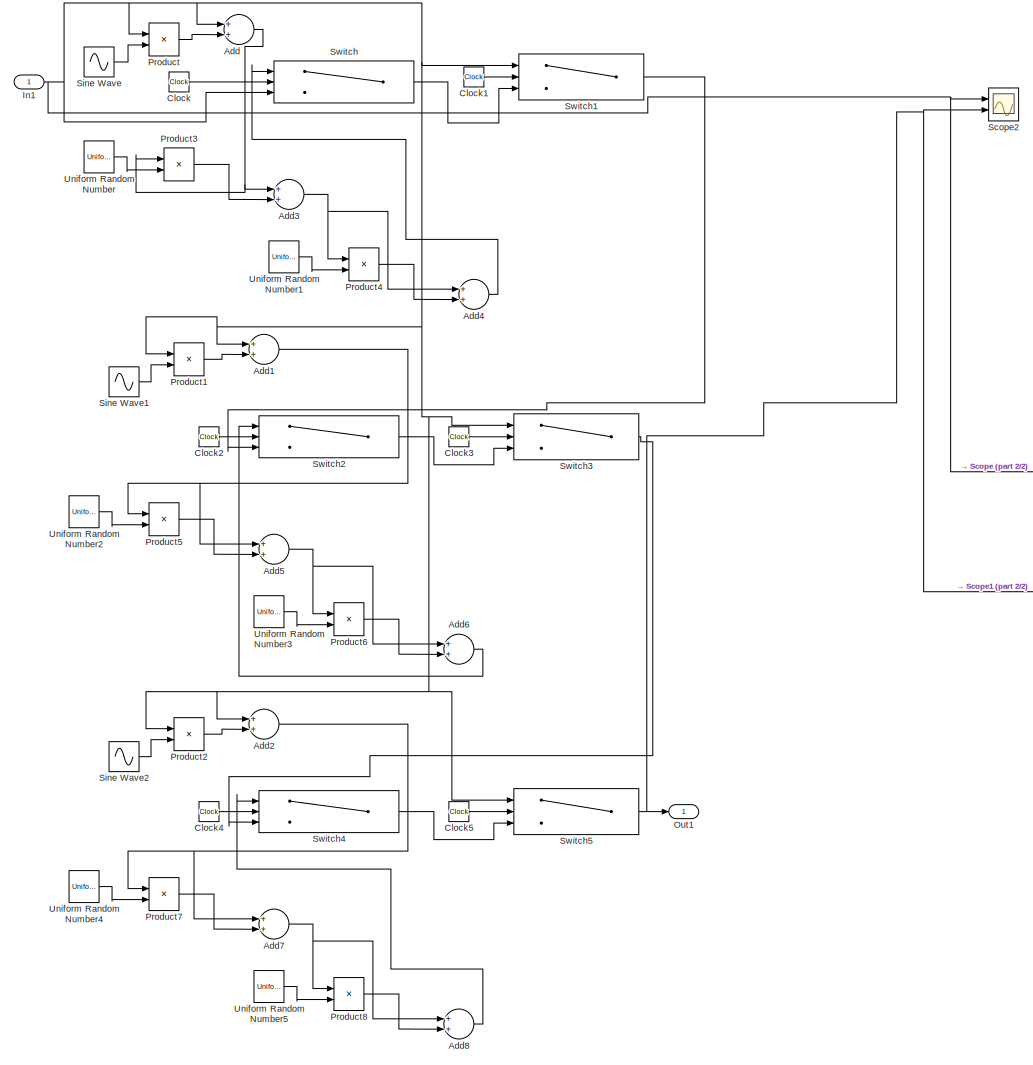
[diagram: Generación BC/Escenario de simulación/Solar Ago/Falla día 20 - part 1/2, most of the canvas]
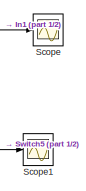
[diagram: Generación BC/Escenario de simulación/Solar Ago/Falla día 20 - part 2/2, middle right region]
BLOCK [SubSystem] Generación BC/Escenario de simulación/Solar Ago/Falla día 20
  Ports = [1, 1]
  RequestExecContextInheritance = off
BLOCK [Sum] Generación BC/Escenario de simulación/Solar Ago/Falla día 20/Add
  InputSameDT = off
  OutDataTypeStr = Inherit: Inherit via internal rule
  Ports = [2, 1]
  SaturateOnIntegerOverflow = off
BLOCK [Sum] Generación BC/Escenario de simulación/Solar Ago/Falla día 20/Add1
  InputSameDT = off
  OutDataTypeStr = Inherit: Inherit via internal rule
  Ports = [2, 1]
  SaturateOnIntegerOverflow = off
BLOCK [Sum] Generación BC/Escenario de simulación/Solar Ago/Falla día 20/Add2
  InputSameDT = off
  OutDataTypeStr = Inherit: Inherit via internal rule
  Ports = [2, 1]
  SaturateOnIntegerOverflow = off
BLOCK [Sum] Generación BC/Escenario de simulación/Solar Ago/Falla día 20/Add3
  InputSameDT = off
  OutDataTypeStr = Inherit: Inherit via internal rule
  Ports = [2, 1]
  SaturateOnIntegerOverflow = off
BLOCK [Sum] Generación BC/Escenario de simulación/Solar Ago/Falla día 20/Add4
  InputSameDT = off
  OutDataTypeStr = Inherit: Inherit via internal rule
  Ports = [2, 1]
  SaturateOnIntegerOverflow = off
BLOCK [Sum] Generación BC/Escenario de simulación/Solar Ago/Falla día 20/Add5
  InputSameDT = off
  OutDataTypeStr = Inherit: Inherit via internal rule
  Ports = [2, 1]
  SaturateOnIntegerOverflow = off
BLOCK [Sum] Generación BC/Escenario de simulación/Solar Ago/Falla día 20/Add6
  InputSameDT = off
  OutDataTypeStr = Inherit: Inherit via internal rule
  Ports = [2, 1]
  SaturateOnIntegerOverflow = off
BLOCK [Sum] Generación BC/Escenario de simulación/Solar Ago/Falla día 20/Add7
  InputSameDT = off
  OutDataTypeStr = Inherit: Inherit via internal rule
  Ports = [2, 1]
  SaturateOnIntegerOverflow = off
BLOCK [Sum] Generación BC/Escenario de simulación/Solar Ago/Falla día 20/Add8
  InputSameDT = off
  OutDataTypeStr = Inherit: Inherit via internal rule
  Ports = [2, 1]
  SaturateOnIntegerOverflow = off
BLOCK [Clock] Generación BC/Escenario de simulación/Solar Ago/Falla día 20/Clock
BLOCK [Clock] Generación BC/Escenario de simulación/Solar Ago/Falla día 20/Clock1
BLOCK [Clock] Generación BC/Escenario de simulación/Solar Ago/Falla día 20/Clock2
BLOCK [Clock] Generación BC/Escenario de simulación/Solar Ago/Falla día 20/Clock3
BLOCK [Clock] Generación BC/Escenario de simulación/Solar Ago/Falla día 20/Clock4
BLOCK [Clock] Generación BC/Escenario de simulación/Solar Ago/Falla día 20/Clock5
BLOCK [Inport] Generación BC/Escenario de simulación/Solar Ago/Falla día 20/In1
  IconDisplay = Port number
BLOCK [Outport] Generación BC/Escenario de simulación/Solar Ago/Falla día 20/Out1
  IconDisplay = Port number
BLOCK [Product] Generación BC/Escenario de simulación/Solar Ago/Falla día 20/Product
  InputSameDT = off
  OutDataTypeStr = Inherit: Inherit via internal rule
  Ports = [2, 1]
  RndMeth = Floor
  SaturateOnIntegerOverflow = off
BLOCK [Product] Generación BC/Escenario de simulación/Solar Ago/Falla día 20/Product1
  InputSameDT = off
  OutDataTypeStr = Inherit: Inherit via internal rule
  Ports = [2, 1]
  RndMeth = Floor
  SaturateOnIntegerOverflow = off
BLOCK [Product] Generación BC/Escenario de simulación/Solar Ago/Falla día 20/Product2
  InputSameDT = off
  OutDataTypeStr = Inherit: Inherit via internal rule
  Ports = [2, 1]
  RndMeth = Floor
  SaturateOnIntegerOverflow = off
BLOCK [Product] Generación BC/Escenario de simulación/Solar Ago/Falla día 20/Product3
  InputSameDT = off
  OutDataTypeStr = Inherit: Inherit via internal rule
  Ports = [2, 1]
  RndMeth = Floor
  SaturateOnIntegerOverflow = off
BLOCK [Product] Generación BC/Escenario de simulación/Solar Ago/Falla día 20/Product4
  InputSameDT = off
  OutDataTypeStr = Inherit: Inherit via internal rule
  Ports = [2, 1]
  RndMeth = Floor
  SaturateOnIntegerOverflow = off
BLOCK [Product] Generación BC/Escenario de simulación/Solar Ago/Falla día 20/Product5
  InputSameDT = off
  OutDataTypeStr = Inherit: Inherit via internal rule
  Ports = [2, 1]
  RndMeth = Floor
  SaturateOnIntegerOverflow = off
BLOCK [Product] Generación BC/Escenario de simulación/Solar Ago/Falla día 20/Product6
  InputSameDT = off
  OutDataTypeStr = Inherit: Inherit via internal rule
  Ports = [2, 1]
  RndMeth = Floor
  SaturateOnIntegerOverflow = off
BLOCK [Product] Generación BC/Escenario de simulación/Solar Ago/Falla día 20/Product7
  InputSameDT = off
  OutDataTypeStr = Inherit: Inherit via internal rule
  Ports = [2, 1]
  RndMeth = Floor
  SaturateOnIntegerOverflow = off
BLOCK [Product] Generación BC/Escenario de simulación/Solar Ago/Falla día 20/Product8
  InputSameDT = off
  OutDataTypeStr = Inherit: Inherit via internal rule
  Ports = [2, 1]
  RndMeth = Floor
  SaturateOnIntegerOverflow = off
BLOCK [Scope] Generación BC/Escenario de simulación/Solar Ago/Falla día 20/Scope
  Floating = off
  NumInputPorts = 1
  Ports = [1]
  ScopeSpecificationString = Simulink.scopes.TimeScopeBlockCfg('CurrentConfiguration', extmgr.ConfigurationSet(extmgr.Configuration('Core','General UI',true),extmgr.Configuration('Core','Source UI',true),extmgr.Configuration('Sources','WiredSimulink',true,'DataLoggingVariableName','genori','DataLogging',true,'DataLoggingSaveFormat','Array','SampleTime','1'),extmgr.Configuration('Visuals','Time Domain',true,'SerializedDisplays...<+1381ch>
BLOCK [Scope] Generación BC/Escenario de simulación/Solar Ago/Falla día 20/Scope1
  Floating = off
  NumInputPorts = 1
  Ports = [1]
  ScopeSpecificationString = Simulink.scopes.TimeScopeBlockCfg('CurrentConfiguration', extmgr.ConfigurationSet(extmgr.Configuration('Core','General UI',true),extmgr.Configuration('Core','Source UI',true),extmgr.Configuration('Sources','WiredSimulink',true,'DataLoggingVariableName','genmod','DataLogging',true,'DataLoggingSaveFormat','Array','SampleTime','1'),extmgr.Configuration('Visuals','Time Domain',true,'SerializedDisplays...<+1381ch>
BLOCK [Scope] Generación BC/Escenario de simulación/Solar Ago/Falla día 20/Scope2
  Floating = off
  NumInputPorts = 2
  Ports = [2]
  ScopeSpecificationString = Simulink.scopes.TimeScopeBlockCfg('CurrentConfiguration', extmgr.ConfigurationSet(extmgr.Configuration('Core','General UI',true),extmgr.Configuration('Core','Source UI',true),extmgr.Configuration('Sources','WiredSimulink',true,'DataLoggingVariableName','ScopeData1'),extmgr.Configuration('Visuals','Time Domain',true,'SerializedDisplays',{struct('MinYLimReal','-0.06963','MaxYLimReal','1.01661','YLab...<+1445ch>
BLOCK [Sin] Generación BC/Escenario de simulación/Solar Ago/Falla día 20/Sine Wave
  Amplitude = 0.57
  Frequency = 1.461206e-3/2
  Phase = pi/2-pi/12
  Ports = [0, 1]
  SampleTime = 0
BLOCK [Sin] Generación BC/Escenario de simulación/Solar Ago/Falla día 20/Sine Wave1
  Amplitude = 0.92
  Frequency = 8.49079e-4/2
  Phase = pi-pi/2.65
  Ports = [0, 1]
  SampleTime = 0
BLOCK [Sin] Generación BC/Escenario de simulación/Solar Ago/Falla día 20/Sine Wave2
  Amplitude = 0.33
  Frequency = 8.05537e-4/2
  Phase = pi-pi/3.4
  Ports = [0, 1]
  SampleTime = 0
BLOCK [Switch] Generación BC/Escenario de simulación/Solar Ago/Falla día 20/Switch
  InputSameDT = off
  SaturateOnIntegerOverflow = off
  Threshold = 1670900
BLOCK [Switch] Generación BC/Escenario de simulación/Solar Ago/Falla día 20/Switch1
  InputSameDT = off
  SaturateOnIntegerOverflow = off
  Threshold = 1675200
BLOCK [Switch] Generación BC/Escenario de simulación/Solar Ago/Falla día 20/Switch2
  InputSameDT = off
  SaturateOnIntegerOverflow = off
  Threshold = 1675200
BLOCK [Switch] Generación BC/Escenario de simulación/Solar Ago/Falla día 20/Switch3
  InputSameDT = off
  SaturateOnIntegerOverflow = off
  Threshold = 1682600
BLOCK [Switch] Generación BC/Escenario de simulación/Solar Ago/Falla día 20/Switch4
  InputSameDT = off
  SaturateOnIntegerOverflow = off
  Threshold = 1687100
BLOCK [Switch] Generación BC/Escenario de simulación/Solar Ago/Falla día 20/Switch5
  InputSameDT = off
  SaturateOnIntegerOverflow = off
  Threshold = 1694900
BLOCK [UniformRandomNumber] Generación BC/Escenario de simulación/Solar Ago/Falla día 20/Uniform Random Number
  Maximum = 0
  Minimum = -0.5
  SampleTime = 50
  Seed = 1337
BLOCK [UniformRandomNumber] Generación BC/Escenario de simulación/Solar Ago/Falla día 20/Uniform Random Number1
  Maximum = 0
  Minimum = -0.25
  SampleTime = 25
  Seed = 69420
BLOCK [UniformRandomNumber] Generación BC/Escenario de simulación/Solar Ago/Falla día 20/Uniform Random Number2
  Maximum = 0
  Minimum = -0.5
  SampleTime = 50
  Seed = 1337
BLOCK [UniformRandomNumber] Generación BC/Escenario de simulación/Solar Ago/Falla día 20/Uniform Random Number3
  Maximum = 0
  Minimum = -0.25
  SampleTime = 25
  Seed = 69420
BLOCK [UniformRandomNumber] Generación BC/Escenario de simulación/Solar Ago/Falla día 20/Uniform Random Number4
  Maximum = 0
  Minimum = -0.5
  SampleTime = 50
  Seed = 1337
BLOCK [UniformRandomNumber] Generación BC/Escenario de simulación/Solar Ago/Falla día 20/Uniform Random Number5
  Maximum = 0
  Minimum = -0.25
  SampleTime = 25
  Seed = 69420
BLOCK [SubSystem] Generación BC/Escenario de simulación/Solar Ago/Falla día 25
  Ports = [1, 1]
  RequestExecContextInheritance = off
BLOCK [Sum] Generación BC/Escenario de simulación/Solar Ago/Falla día 25/Add
  InputSameDT = off
  OutDataTypeStr = Inherit: Inherit via internal rule
  Ports = [2, 1]
  SaturateOnIntegerOverflow = off
BLOCK [Sum] Generación BC/Escenario de simulación/Solar Ago/Falla día 25/Add1
  InputSameDT = off
  OutDataTypeStr = Inherit: Inherit via internal rule
  Ports = [2, 1]
  SaturateOnIntegerOverflow = off
BLOCK [Sum] Generación BC/Escenario de simulación/Solar Ago/Falla día 25/Add2
  InputSameDT = off
  OutDataTypeStr = Inherit: Inherit via internal rule
  Ports = [2, 1]
  SaturateOnIntegerOverflow = off
BLOCK [Sum] Generación BC/Escenario de simulación/Solar Ago/Falla día 25/Add3
  InputSameDT = off
  OutDataTypeStr = Inherit: Inherit via internal rule
  Ports = [2, 1]
  SaturateOnIntegerOverflow = off
BLOCK [Sum] Generación BC/Escenario de simulación/Solar Ago/Falla día 25/Add4
  InputSameDT = off
  OutDataTypeStr = Inherit: Inherit via internal rule
  Ports = [2, 1]
  SaturateOnIntegerOverflow = off
BLOCK [Sum] Generación BC/Escenario de simulación/Solar Ago/Falla día 25/Add5
  InputSameDT = off
  OutDataTypeStr = Inherit: Inherit via internal rule
  Ports = [2, 1]
  SaturateOnIntegerOverflow = off
BLOCK [Clock] Generación BC/Escenario de simulación/Solar Ago/Falla día 25/Clock
BLOCK [Clock] Generación BC/Escenario de simulación/Solar Ago/Falla día 25/Clock1
BLOCK [Clock] Generación BC/Escenario de simulación/Solar Ago/Falla día 25/Clock2
BLOCK [Clock] Generación BC/Escenario de simulación/Solar Ago/Falla día 25/Clock3
BLOCK [Inport] Generación BC/Escenario de simulación/Solar Ago/Falla día 25/In1
  IconDisplay = Port number
BLOCK [Outport] Generación BC/Escenario de simulación/Solar Ago/Falla día 25/Out1
  IconDisplay = Port number
BLOCK [Product] Generación BC/Escenario de simulación/Solar Ago/Falla día 25/Product
  InputSameDT = off
  OutDataTypeStr = Inherit: Inherit via internal rule
  Ports = [2, 1]
  RndMeth = Floor
  SaturateOnIntegerOverflow = off
BLOCK [Product] Generación BC/Escenario de simulación/Solar Ago/Falla día 25/Product1
  InputSameDT = off
  OutDataTypeStr = Inherit: Inherit via internal rule
  Ports = [2, 1]
  RndMeth = Floor
  SaturateOnIntegerOverflow = off
BLOCK [Product] Generación BC/Escenario de simulación/Solar Ago/Falla día 25/Product2
  InputSameDT = off
  OutDataTypeStr = Inherit: Inherit via internal rule
  Ports = [2, 1]
  RndMeth = Floor
  SaturateOnIntegerOverflow = off
BLOCK [Product] Generación BC/Escenario de simulación/Solar Ago/Falla día 25/Product3
  InputSameDT = off
  OutDataTypeStr = Inherit: Inherit via internal rule
  Ports = [2, 1]
  RndMeth = Floor
  SaturateOnIntegerOverflow = off
BLOCK [Product] Generación BC/Escenario de simulación/Solar Ago/Falla día 25/Product4
  InputSameDT = off
  OutDataTypeStr = Inherit: Inherit via internal rule
  Ports = [2, 1]
  RndMeth = Floor
  SaturateOnIntegerOverflow = off
BLOCK [Product] Generación BC/Escenario de simulación/Solar Ago/Falla día 25/Product5
  InputSameDT = off
  OutDataTypeStr = Inherit: Inherit via internal rule
  Ports = [2, 1]
  RndMeth = Floor
  SaturateOnIntegerOverflow = off
BLOCK [Sin] Generación BC/Escenario de simulación/Solar Ago/Falla día 25/Sine Wave
  Amplitude = 0.62
  Frequency = 0.000448799
  Phase = pi-pi/5.833
  Ports = [0, 1]
  SampleTime = 0
BLOCK [Sin] Generación BC/Escenario de simulación/Solar Ago/Falla día 25/Sine Wave1
  Amplitude = 0.66
  Frequency = 0.000266237
  Phase = pi/2+pi/14.798
  Ports = [0, 1]
  SampleTime = 0
BLOCK [Switch] Generación BC/Escenario de simulación/Solar Ago/Falla día 25/Switch
  InputSameDT = off
  SaturateOnIntegerOverflow = off
  Threshold = 2101200
BLOCK [Switch] Generación BC/Escenario de simulación/Solar Ago/Falla día 25/Switch1
  InputSameDT = off
  SaturateOnIntegerOverflow = off
  Threshold = 2108200
BLOCK [Switch] Generación BC/Escenario de simulación/Solar Ago/Falla día 25/Switch2
  InputSameDT = off
  SaturateOnIntegerOverflow = off
  Threshold = 2129100
BLOCK [Switch] Generación BC/Escenario de simulación/Solar Ago/Falla día 25/Switch3
  InputSameDT = off
  SaturateOnIntegerOverflow = off
  Threshold = 2140900
BLOCK [UniformRandomNumber] Generación BC/Escenario de simulación/Solar Ago/Falla día 25/Uniform Random Number
  Maximum = 0
  Minimum = -0.5
  SampleTime = 50
  Seed = 1337
BLOCK [UniformRandomNumber] Generación BC/Escenario de simulación/Solar Ago/Falla día 25/Uniform Random Number1
  Maximum = 0
  Minimum = -0.25
  SampleTime = 25
  Seed = 69420
BLOCK [UniformRandomNumber] Generación BC/Escenario de simulación/Solar Ago/Falla día 25/Uniform Random Number2
  Maximum = 0
  Minimum = -0.5
  SampleTime = 50
  Seed = 1337
BLOCK [UniformRandomNumber] Generación BC/Escenario de simulación/Solar Ago/Falla día 25/Uniform Random Number3
  Maximum = 0
  Minimum = -0.25
  SampleTime = 25
  Seed = 69420
BLOCK [SubSystem] Generación BC/Escenario de simulación/Solar Ago/Falla día 26
  Ports = [1, 1]
  RequestExecContextInheritance = off
BLOCK [Sum] Generación BC/Escenario de simulación/Solar Ago/Falla día 26/Add
  InputSameDT = off
  OutDataTypeStr = Inherit: Inherit via internal rule
  Ports = [2, 1]
  SaturateOnIntegerOverflow = off
BLOCK [Sum] Generación BC/Escenario de simulación/Solar Ago/Falla día 26/Add1
  InputSameDT = off
  OutDataTypeStr = Inherit: Inherit via internal rule
  Ports = [2, 1]
  SaturateOnIntegerOverflow = off
BLOCK [Sum] Generación BC/Escenario de simulación/Solar Ago/Falla día 26/Add2
  InputSameDT = off
  OutDataTypeStr = Inherit: Inherit via internal rule
  Ports = [2, 1]
  SaturateOnIntegerOverflow = off
BLOCK [Sum] Generación BC/Escenario de simulación/Solar Ago/Falla día 26/Add3
  InputSameDT = off
  OutDataTypeStr = Inherit: Inherit via internal rule
  Ports = [2, 1]
  SaturateOnIntegerOverflow = off
BLOCK [Sum] Generación BC/Escenario de simulación/Solar Ago/Falla día 26/Add4
  InputSameDT = off
  OutDataTypeStr = Inherit: Inherit via internal rule
  Ports = [2, 1]
  SaturateOnIntegerOverflow = off
BLOCK [Sum] Generación BC/Escenario de simulación/Solar Ago/Falla día 26/Add5
  InputSameDT = off
  OutDataTypeStr = Inherit: Inherit via internal rule
  Ports = [2, 1]
  SaturateOnIntegerOverflow = off
BLOCK [Clock] Generación BC/Escenario de simulación/Solar Ago/Falla día 26/Clock
BLOCK [Clock] Generación BC/Escenario de simulación/Solar Ago/Falla día 26/Clock1
BLOCK [Clock] Generación BC/Escenario de simulación/Solar Ago/Falla día 26/Clock2
BLOCK [Clock] Generación BC/Escenario de simulación/Solar Ago/Falla día 26/Clock3
BLOCK [Inport] Generación BC/Escenario de simulación/Solar Ago/Falla día 26/In1
  IconDisplay = Port number
BLOCK [Outport] Generación BC/Escenario de simulación/Solar Ago/Falla día 26/Out1
  IconDisplay = Port number
BLOCK [Product] Generación BC/Escenario de simulación/Solar Ago/Falla día 26/Product
  InputSameDT = off
  OutDataTypeStr = Inherit: Inherit via internal rule
  Ports = [2, 1]
  RndMeth = Floor
  SaturateOnIntegerOverflow = off
BLOCK [Product] Generación BC/Escenario de simulación/Solar Ago/Falla día 26/Product1
  InputSameDT = off
  OutDataTypeStr = Inherit: Inherit via internal rule
  Ports = [2, 1]
  RndMeth = Floor
  SaturateOnIntegerOverflow = off
BLOCK [Product] Generación BC/Escenario de simulación/Solar Ago/Falla día 26/Product2
  InputSameDT = off
  OutDataTypeStr = Inherit: Inherit via internal rule
  Ports = [2, 1]
  RndMeth = Floor
  SaturateOnIntegerOverflow = off
BLOCK [Product] Generación BC/Escenario de simulación/Solar Ago/Falla día 26/Product3
  InputSameDT = off
  OutDataTypeStr = Inherit: Inherit via internal rule
  Ports = [2, 1]
  RndMeth = Floor
  SaturateOnIntegerOverflow = off
BLOCK [Product] Generación BC/Escenario de simulación/Solar Ago/Falla día 26/Product4
  InputSameDT = off
  OutDataTypeStr = Inherit: Inherit via internal rule
  Ports = [2, 1]
  RndMeth = Floor
  SaturateOnIntegerOverflow = off
BLOCK [Product] Generación BC/Escenario de simulación/Solar Ago/Falla día 26/Product5
  InputSameDT = off
  OutDataTypeStr = Inherit: Inherit via internal rule
  Ports = [2, 1]
  RndMeth = Floor
  SaturateOnIntegerOverflow = off
BLOCK [Sin] Generación BC/Escenario de simulación/Solar Ago/Falla día 26/Sine Wave
  Amplitude = 0.79
  Frequency = 0.000268512
  Phase = -pi/4+pi/22.21
  Ports = [0, 1]
  SampleTime = 0
BLOCK [Sin] Generación BC/Escenario de simulación/Solar Ago/Falla día 26/Sine Wave1
  Amplitude = 0.39
  Frequency = 0.000747998
  Phase = -pi/2-pi/14.04
  Ports = [0, 1]
  SampleTime = 0
BLOCK [Switch] Generación BC/Escenario de simulación/Solar Ago/Falla día 26/Switch
  InputSameDT = off
  SaturateOnIntegerOverflow = off
  Threshold = 2190300
BLOCK [Switch] Generación BC/Escenario de simulación/Solar Ago/Falla día 26/Switch1
  InputSameDT = off
  SaturateOnIntegerOverflow = off
  Threshold = 2202000
BLOCK [Switch] Generación BC/Escenario de simulación/Solar Ago/Falla día 26/Switch2
  InputSameDT = off
  SaturateOnIntegerOverflow = off
  Threshold = 2215800
BLOCK [Switch] Generación BC/Escenario de simulación/Solar Ago/Falla día 26/Switch3
  InputSameDT = off
  SaturateOnIntegerOverflow = off
  Threshold = 2220000
BLOCK [UniformRandomNumber] Generación BC/Escenario de simulación/Solar Ago/Falla día 26/Uniform Random Number
  Maximum = 0
  Minimum = -0.5
  SampleTime = 50
  Seed = 1337
BLOCK [UniformRandomNumber] Generación BC/Escenario de simulación/Solar Ago/Falla día 26/Uniform Random Number1
  Maximum = 0
  Minimum = -0.25
  SampleTime = 25
  Seed = 69420
BLOCK [UniformRandomNumber] Generación BC/Escenario de simulación/Solar Ago/Falla día 26/Uniform Random Number2
  Maximum = 0
  Minimum = -0.5
  SampleTime = 50
  Seed = 1337
BLOCK [UniformRandomNumber] Generación BC/Escenario de simulación/Solar Ago/Falla día 26/Uniform Random Number3
  Maximum = 0
  Minimum = -0.25
  SampleTime = 25
  Seed = 69420
BLOCK [SubSystem] Generación BC/Escenario de simulación/Solar Ago/Falla día 28
  Ports = [1, 1]
  RequestExecContextInheritance = off
BLOCK [Sum] Generación BC/Escenario de simulación/Solar Ago/Falla día 28/Add
  InputSameDT = off
  OutDataTypeStr = Inherit: Inherit via internal rule
  Ports = [2, 1]
  SaturateOnIntegerOverflow = off
BLOCK [Sum] Generación BC/Escenario de simulación/Solar Ago/Falla día 28/Add1
  InputSameDT = off
  OutDataTypeStr = Inherit: Inherit via internal rule
  Ports = [2, 1]
  SaturateOnIntegerOverflow = off
BLOCK [Sum] Generación BC/Escenario de simulación/Solar Ago/Falla día 28/Add2
  InputSameDT = off
  OutDataTypeStr = Inherit: Inherit via internal rule
  Ports = [2, 1]
  SaturateOnIntegerOverflow = off
BLOCK [Clock] Generación BC/Escenario de simulación/Solar Ago/Falla día 28/Clock
BLOCK [Clock] Generación BC/Escenario de simulación/Solar Ago/Falla día 28/Clock1
BLOCK [Inport] Generación BC/Escenario de simulación/Solar Ago/Falla día 28/In1
  IconDisplay = Port number
BLOCK [Outport] Generación BC/Escenario de simulación/Solar Ago/Falla día 28/Out1
  IconDisplay = Port number
BLOCK [Product] Generación BC/Escenario de simulación/Solar Ago/Falla día 28/Product
  InputSameDT = off
  OutDataTypeStr = Inherit: Inherit via internal rule
  Ports = [2, 1]
  RndMeth = Floor
  SaturateOnIntegerOverflow = off
BLOCK [Product] Generación BC/Escenario de simulación/Solar Ago/Falla día 28/Product1
  InputSameDT = off
  OutDataTypeStr = Inherit: Inherit via internal rule
  Ports = [2, 1]
  RndMeth = Floor
  SaturateOnIntegerOverflow = off
BLOCK [Product] Generación BC/Escenario de simulación/Solar Ago/Falla día 28/Product2
  InputSameDT = off
  OutDataTypeStr = Inherit: Inherit via internal rule
  Ports = [2, 1]
  RndMeth = Floor
  SaturateOnIntegerOverflow = off
BLOCK [Sin] Generación BC/Escenario de simulación/Solar Ago/Falla día 28/Sine Wave
  Amplitude = 0.56
  Frequency = 2.596358e-3/2
  Phase = pi/7.15
  Ports = [0, 1]
  SampleTime = 0
BLOCK [Switch] Generación BC/Escenario de simulación/Solar Ago/Falla día 28/Switch
  InputSameDT = off
  SaturateOnIntegerOverflow = off
  Threshold = 2378520
BLOCK [Switch] Generación BC/Escenario de simulación/Solar Ago/Falla día 28/Switch1
  InputSameDT = off
  SaturateOnIntegerOverflow = off
  Threshold = 2380940
BLOCK [UniformRandomNumber] Generación BC/Escenario de simulación/Solar Ago/Falla día 28/Uniform Random Number
  Maximum = 0
  Minimum = -0.5
  SampleTime = 50
  Seed = 1337
BLOCK [UniformRandomNumber] Generación BC/Escenario de simulación/Solar Ago/Falla día 28/Uniform Random Number1
  Maximum = 0
  Minimum = -0.25
  SampleTime = 25
  Seed = 69420
BLOCK [SubSystem] Generación BC/Escenario de simulación/Solar Ago/Falla día 5
  Ports = [1, 1]
  RequestExecContextInheritance = off
BLOCK [Sum] Generación BC/Escenario de simulación/Solar Ago/Falla día 5/Add
  InputSameDT = off
  OutDataTypeStr = Inherit: Inherit via internal rule
  Ports = [2, 1]
  SaturateOnIntegerOverflow = off
BLOCK [Sum] Generación BC/Escenario de simulación/Solar Ago/Falla día 5/Add1
  InputSameDT = off
  OutDataTypeStr = Inherit: Inherit via internal rule
  Ports = [2, 1]
  SaturateOnIntegerOverflow = off
BLOCK [Sum] Generación BC/Escenario de simulación/Solar Ago/Falla día 5/Add2
  InputSameDT = off
  OutDataTypeStr = Inherit: Inherit via internal rule
  Ports = [2, 1]
  SaturateOnIntegerOverflow = off
BLOCK [Clock] Generación BC/Escenario de simulación/Solar Ago/Falla día 5/Clock
BLOCK [Clock] Generación BC/Escenario de simulación/Solar Ago/Falla día 5/Clock1
BLOCK [Inport] Generación BC/Escenario de simulación/Solar Ago/Falla día 5/In1
  IconDisplay = Port number
BLOCK [Outport] Generación BC/Escenario de simulación/Solar Ago/Falla día 5/Out1
  IconDisplay = Port number
BLOCK [Product] Generación BC/Escenario de simulación/Solar Ago/Falla día 5/Product
  InputSameDT = off
  OutDataTypeStr = Inherit: Inherit via internal rule
  Ports = [2, 1]
  RndMeth = Floor
  SaturateOnIntegerOverflow = off
BLOCK [Product] Generación BC/Escenario de simulación/Solar Ago/Falla día 5/Product1
  InputSameDT = off
  OutDataTypeStr = Inherit: Inherit via internal rule
  Ports = [2, 1]
  RndMeth = Floor
  SaturateOnIntegerOverflow = off
BLOCK [Product] Generación BC/Escenario de simulación/Solar Ago/Falla día 5/Product2
  InputSameDT = off
  OutDataTypeStr = Inherit: Inherit via internal rule
  Ports = [2, 1]
  RndMeth = Floor
  SaturateOnIntegerOverflow = off
BLOCK [Scope] Generación BC/Escenario de simulación/Solar Ago/Falla día 5/Scope
  Floating = off
  NumInputPorts = 2
  Ports = [2]
  ScopeSpecificationString = Simulink.scopes.TimeScopeBlockCfg('CurrentConfiguration', extmgr.ConfigurationSet(extmgr.Configuration('Core','General UI',true),extmgr.Configuration('Core','Source UI',true),extmgr.Configuration('Sources','WiredSimulink',true,'DataLoggingVariableName','ScopeData2'),extmgr.Configuration('Visuals','Time Domain',true,'SerializedDisplays',{struct('MinYLimReal','-0.05124','MaxYLimReal','0.92898','YLab...<+1445ch>
BLOCK [Sin] Generación BC/Escenario de simulación/Solar Ago/Falla día 5/Sine Wave
  Amplitude = 0.81
  Frequency = 0.000255414
  Phase = pi/4-pi/165
  Ports = [0, 1]
  SampleTime = 0
BLOCK [Switch] Generación BC/Escenario de simulación/Solar Ago/Falla día 5/Switch
  InputSameDT = off
  SaturateOnIntegerOverflow = off
  Threshold = 402900
BLOCK [Switch] Generación BC/Escenario de simulación/Solar Ago/Falla día 5/Switch1
  InputSameDT = off
  SaturateOnIntegerOverflow = off
  Threshold = 415200
BLOCK [UniformRandomNumber] Generación BC/Escenario de simulación/Solar Ago/Falla día 5/Uniform Random Number
  Maximum = 0
  Minimum = -0.5
  SampleTime = 50
  Seed = 1337
BLOCK [UniformRandomNumber] Generación BC/Escenario de simulación/Solar Ago/Falla día 5/Uniform Random Number1
  Maximum = 0
  Minimum = -0.25
  SampleTime = 25
  Seed = 69420
BLOCK [SubSystem] Generación BC/Escenario de simulación/Solar Ago/Falla día 9
  Ports = [1, 1]
  RequestExecContextInheritance = off
BLOCK [Sum] Generación BC/Escenario de simulación/Solar Ago/Falla día 9/Add
  InputSameDT = off
  OutDataTypeStr = Inherit: Inherit via internal rule
  Ports = [2, 1]
  SaturateOnIntegerOverflow = off
BLOCK [Sum] Generación BC/Escenario de simulación/Solar Ago/Falla día 9/Add1
  InputSameDT = off
  OutDataTypeStr = Inherit: Inherit via internal rule
  Ports = [2, 1]
  SaturateOnIntegerOverflow = off
BLOCK [Sum] Generación BC/Escenario de simulación/Solar Ago/Falla día 9/Add2
  InputSameDT = off
  OutDataTypeStr = Inherit: Inherit via internal rule
  Ports = [2, 1]
  SaturateOnIntegerOverflow = off
BLOCK [Clock] Generación BC/Escenario de simulación/Solar Ago/Falla día 9/Clock
BLOCK [Clock] Generación BC/Escenario de simulación/Solar Ago/Falla día 9/Clock1
BLOCK [Inport] Generación BC/Escenario de simulación/Solar Ago/Falla día 9/In1
  IconDisplay = Port number
BLOCK [Outport] Generación BC/Escenario de simulación/Solar Ago/Falla día 9/Out1
  IconDisplay = Port number
BLOCK [Product] Generación BC/Escenario de simulación/Solar Ago/Falla día 9/Product
  InputSameDT = off
  OutDataTypeStr = Inherit: Inherit via internal rule
  Ports = [2, 1]
  RndMeth = Floor
  SaturateOnIntegerOverflow = off
BLOCK [Product] Generación BC/Escenario de simulación/Solar Ago/Falla día 9/Product1
  InputSameDT = off
  OutDataTypeStr = Inherit: Inherit via internal rule
  Ports = [2, 1]
  RndMeth = Floor
  SaturateOnIntegerOverflow = off
BLOCK [Product] Generación BC/Escenario de simulación/Solar Ago/Falla día 9/Product2
  InputSameDT = off
  OutDataTypeStr = Inherit: Inherit via internal rule
  Ports = [2, 1]
  RndMeth = Floor
  SaturateOnIntegerOverflow = off
BLOCK [Sin] Generación BC/Escenario de simulación/Solar Ago/Falla día 9/Sine Wave
  Amplitude = 0.56
  Frequency = 0.000171672
  Phase = pi+pi/5.9052
  Ports = [0, 1]
  SampleTime = 0
BLOCK [Switch] Generación BC/Escenario de simulación/Solar Ago/Falla día 9/Switch
  InputSameDT = off
  SaturateOnIntegerOverflow = off
  Threshold = 728900
BLOCK [Switch] Generación BC/Escenario de simulación/Solar Ago/Falla día 9/Switch1
  InputSameDT = off
  SaturateOnIntegerOverflow = off
  Threshold = 747200
BLOCK [UniformRandomNumber] Generación BC/Escenario de simulación/Solar Ago/Falla día 9/Uniform Random Number
  Maximum = 0
  Minimum = -0.5
  SampleTime = 50
  Seed = 1337
BLOCK [UniformRandomNumber] Generación BC/Escenario de simulación/Solar Ago/Falla día 9/Uniform Random Number1
  Maximum = 0
  Minimum = -0.25
  SampleTime = 25
  Seed = 69420
BLOCK [Inport] Generación BC/Escenario de simulación/Solar Ago/Gen S in
  IconDisplay = Port number
BLOCK [Outport] Generación BC/Escenario de simulación/Solar Ago/Gen S out
  IconDisplay = Port number
BLOCK [SubSystem] Generación BC/Escenario de simulación/Solar Dic
  Ports = [1, 1]
  RequestExecContextInheritance = off
BLOCK [SubSystem] Generación BC/Escenario de simulación/Solar Dic/Falla día 13
  Ports = [1, 1]
  RequestExecContextInheritance = off
BLOCK [Sum] Generación BC/Escenario de simulación/Solar Dic/Falla día 13/Add
  InputSameDT = off
  OutDataTypeStr = Inherit: Inherit via internal rule
  Ports = [2, 1]
  SaturateOnIntegerOverflow = off
BLOCK [Sum] Generación BC/Escenario de simulación/Solar Dic/Falla día 13/Add1
  InputSameDT = off
  OutDataTypeStr = Inherit: Inherit via internal rule
  Ports = [2, 1]
  SaturateOnIntegerOverflow = off
BLOCK [Sum] Generación BC/Escenario de simulación/Solar Dic/Falla día 13/Add2
  InputSameDT = off
  OutDataTypeStr = Inherit: Inherit via internal rule
  Ports = [2, 1]
  SaturateOnIntegerOverflow = off
BLOCK [Clock] Generación BC/Escenario de simulación/Solar Dic/Falla día 13/Clock
BLOCK [Clock] Generación BC/Escenario de simulación/Solar Dic/Falla día 13/Clock1
BLOCK [Inport] Generación BC/Escenario de simulación/Solar Dic/Falla día 13/In1
  IconDisplay = Port number
BLOCK [Outport] Generación BC/Escenario de simulación/Solar Dic/Falla día 13/Out1
  IconDisplay = Port number
BLOCK [Product] Generación BC/Escenario de simulación/Solar Dic/Falla día 13/Product
  InputSameDT = off
  OutDataTypeStr = Inherit: Inherit via internal rule
  Ports = [2, 1]
  RndMeth = Floor
  SaturateOnIntegerOverflow = off
BLOCK [Product] Generación BC/Escenario de simulación/Solar Dic/Falla día 13/Product1
  InputSameDT = off
  OutDataTypeStr = Inherit: Inherit via internal rule
  Ports = [2, 1]
  RndMeth = Floor
  SaturateOnIntegerOverflow = off
BLOCK [Product] Generación BC/Escenario de simulación/Solar Dic/Falla día 13/Product2
  InputSameDT = off
  OutDataTypeStr = Inherit: Inherit via internal rule
  Ports = [2, 1]
  RndMeth = Floor
  SaturateOnIntegerOverflow = off
BLOCK [Sin] Generación BC/Escenario de simulación/Solar Dic/Falla día 13/Sine Wave
  Amplitude = 0.31
  Frequency = 0.000184800
  Phase = pi/34
  Ports = [0, 1]
  SampleTime = 0
BLOCK [Switch] Generación BC/Escenario de simulación/Solar Dic/Falla día 13/Switch
  InputSameDT = off
  SaturateOnIntegerOverflow = off
  Threshold = 1070500
BLOCK [Switch] Generación BC/Escenario de simulación/Solar Dic/Falla día 13/Switch1
  InputSameDT = off
  SaturateOnIntegerOverflow = off
  Threshold = 1087500
BLOCK [UniformRandomNumber] Generación BC/Escenario de simulación/Solar Dic/Falla día 13/Uniform Random Number
  Maximum = 0
  Minimum = -0.5
  SampleTime = 50
  Seed = 1337
BLOCK [UniformRandomNumber] Generación BC/Escenario de simulación/Solar Dic/Falla día 13/Uniform Random Number1
  Maximum = 0
  Minimum = -0.25
  SampleTime = 25
  Seed = 69420
BLOCK [SubSystem] Generación BC/Escenario de simulación/Solar Dic/Falla día 16
  Ports = [1, 1]
  RequestExecContextInheritance = off
BLOCK [Sum] Generación BC/Escenario de simulación/Solar Dic/Falla día 16/Add
  InputSameDT = off
  OutDataTypeStr = Inherit: Inherit via internal rule
  Ports = [2, 1]
  SaturateOnIntegerOverflow = off
BLOCK [Sum] Generación BC/Escenario de simulación/Solar Dic/Falla día 16/Add1
  InputSameDT = off
  OutDataTypeStr = Inherit: Inherit via internal rule
  Ports = [2, 1]
  SaturateOnIntegerOverflow = off
BLOCK [Sum] Generación BC/Escenario de simulación/Solar Dic/Falla día 16/Add2
  InputSameDT = off
  OutDataTypeStr = Inherit: Inherit via internal rule
  Ports = [2, 1]
  SaturateOnIntegerOverflow = off
BLOCK [Sum] Generación BC/Escenario de simulación/Solar Dic/Falla día 16/Add3
  InputSameDT = off
  OutDataTypeStr = Inherit: Inherit via internal rule
  Ports = [2, 1]
  SaturateOnIntegerOverflow = off
BLOCK [Sum] Generación BC/Escenario de simulación/Solar Dic/Falla día 16/Add4
  InputSameDT = off
  OutDataTypeStr = Inherit: Inherit via internal rule
  Ports = [2, 1]
  SaturateOnIntegerOverflow = off
BLOCK [Sum] Generación BC/Escenario de simulación/Solar Dic/Falla día 16/Add5
  InputSameDT = off
  OutDataTypeStr = Inherit: Inherit via internal rule
  Ports = [2, 1]
  SaturateOnIntegerOverflow = off
BLOCK [Clock] Generación BC/Escenario de simulación/Solar Dic/Falla día 16/Clock
BLOCK [Clock] Generación BC/Escenario de simulación/Solar Dic/Falla día 16/Clock1
BLOCK [Clock] Generación BC/Escenario de simulación/Solar Dic/Falla día 16/Clock2
BLOCK [Clock] Generación BC/Escenario de simulación/Solar Dic/Falla día 16/Clock3
BLOCK [Inport] Generación BC/Escenario de simulación/Solar Dic/Falla día 16/In1
  IconDisplay = Port number
BLOCK [Outport] Generación BC/Escenario de simulación/Solar Dic/Falla día 16/Out1
  IconDisplay = Port number
BLOCK [Product] Generación BC/Escenario de simulación/Solar Dic/Falla día 16/Product
  InputSameDT = off
  OutDataTypeStr = Inherit: Inherit via internal rule
  Ports = [2, 1]
  RndMeth = Floor
  SaturateOnIntegerOverflow = off
BLOCK [Product] Generación BC/Escenario de simulación/Solar Dic/Falla día 16/Product1
  InputSameDT = off
  OutDataTypeStr = Inherit: Inherit via internal rule
  Ports = [2, 1]
  RndMeth = Floor
  SaturateOnIntegerOverflow = off
BLOCK [Product] Generación BC/Escenario de simulación/Solar Dic/Falla día 16/Product2
  InputSameDT = off
  OutDataTypeStr = Inherit: Inherit via internal rule
  Ports = [2, 1]
  RndMeth = Floor
  SaturateOnIntegerOverflow = off
BLOCK [Product] Generación BC/Escenario de simulación/Solar Dic/Falla día 16/Product3
  InputSameDT = off
  OutDataTypeStr = Inherit: Inherit via internal rule
  Ports = [2, 1]
  RndMeth = Floor
  SaturateOnIntegerOverflow = off
BLOCK [Product] Generación BC/Escenario de simulación/Solar Dic/Falla día 16/Product4
  InputSameDT = off
  OutDataTypeStr = Inherit: Inherit via internal rule
  Ports = [2, 1]
  RndMeth = Floor
  SaturateOnIntegerOverflow = off
BLOCK [Product] Generación BC/Escenario de simulación/Solar Dic/Falla día 16/Product5
  InputSameDT = off
  OutDataTypeStr = Inherit: Inherit via internal rule
  Ports = [2, 1]
  RndMeth = Floor
  SaturateOnIntegerOverflow = off
BLOCK [Sin] Generación BC/Escenario de simulación/Solar Dic/Falla día 16/Sine Wave
  Amplitude = 0.57
  Frequency = 0.001308997
  Phase = pi
  Ports = [0, 1]
  SampleTime = 0
BLOCK [Sin] Generación BC/Escenario de simulación/Solar Dic/Falla día 16/Sine Wave1
  Amplitude = 0.76
  Frequency = 0.001427997
  Phase = pi/5.5
  Ports = [0, 1]
  SampleTime = 0
BLOCK [Switch] Generación BC/Escenario de simulación/Solar Dic/Falla día 16/Switch
  InputSameDT = off
  SaturateOnIntegerOverflow = off
  Threshold = 1334400
BLOCK [Switch] Generación BC/Escenario de simulación/Solar Dic/Falla día 16/Switch1
  InputSameDT = off
  SaturateOnIntegerOverflow = off
  Threshold = 1336800
BLOCK [Switch] Generación BC/Escenario de simulación/Solar Dic/Falla día 16/Switch2
  InputSameDT = off
  SaturateOnIntegerOverflow = off
  Threshold = 1343800
BLOCK [Switch] Generación BC/Escenario de simulación/Solar Dic/Falla día 16/Switch3
  InputSameDT = off
  SaturateOnIntegerOverflow = off
  Threshold = 1346000
BLOCK [UniformRandomNumber] Generación BC/Escenario de simulación/Solar Dic/Falla día 16/Uniform Random Number
  Maximum = 0
  Minimum = -0.5
  SampleTime = 50
  Seed = 1337
BLOCK [UniformRandomNumber] Generación BC/Escenario de simulación/Solar Dic/Falla día 16/Uniform Random Number1
  Maximum = 0
  Minimum = -0.25
  SampleTime = 25
  Seed = 69420
BLOCK [UniformRandomNumber] Generación BC/Escenario de simulación/Solar Dic/Falla día 16/Uniform Random Number2
  Maximum = 0
  Minimum = -0.5
  SampleTime = 50
  Seed = 1337
BLOCK [UniformRandomNumber] Generación BC/Escenario de simulación/Solar Dic/Falla día 16/Uniform Random Number3
  Maximum = 0
  Minimum = -0.25
  SampleTime = 25
  Seed = 69420
BLOCK [SubSystem] Generación BC/Escenario de simulación/Solar Dic/Falla día 2
  Ports = [1, 1]
  RequestExecContextInheritance = off
BLOCK [Sum] Generación BC/Escenario de simulación/Solar Dic/Falla día 2/Add
  InputSameDT = off
  OutDataTypeStr = Inherit: Inherit via internal rule
  Ports = [2, 1]
  SaturateOnIntegerOverflow = off
BLOCK [Sum] Generación BC/Escenario de simulación/Solar Dic/Falla día 2/Add1
  InputSameDT = off
  OutDataTypeStr = Inherit: Inherit via internal rule
  Ports = [2, 1]
  SaturateOnIntegerOverflow = off
BLOCK [Sum] Generación BC/Escenario de simulación/Solar Dic/Falla día 2/Add2
  InputSameDT = off
  OutDataTypeStr = Inherit: Inherit via internal rule
  Ports = [2, 1]
  SaturateOnIntegerOverflow = off
BLOCK [Sum] Generación BC/Escenario de simulación/Solar Dic/Falla día 2/Add3
  InputSameDT = off
  OutDataTypeStr = Inherit: Inherit via internal rule
  Ports = [2, 1]
  SaturateOnIntegerOverflow = off
BLOCK [Sum] Generación BC/Escenario de simulación/Solar Dic/Falla día 2/Add4
  InputSameDT = off
  OutDataTypeStr = Inherit: Inherit via internal rule
  Ports = [2, 1]
  SaturateOnIntegerOverflow = off
BLOCK [Sum] Generación BC/Escenario de simulación/Solar Dic/Falla día 2/Add5
  InputSameDT = off
  OutDataTypeStr = Inherit: Inherit via internal rule
  Ports = [2, 1]
  SaturateOnIntegerOverflow = off
BLOCK [Clock] Generación BC/Escenario de simulación/Solar Dic/Falla día 2/Clock
BLOCK [Clock] Generación BC/Escenario de simulación/Solar Dic/Falla día 2/Clock1
BLOCK [Clock] Generación BC/Escenario de simulación/Solar Dic/Falla día 2/Clock2
BLOCK [Clock] Generación BC/Escenario de simulación/Solar Dic/Falla día 2/Clock3
BLOCK [Inport] Generación BC/Escenario de simulación/Solar Dic/Falla día 2/In1
  IconDisplay = Port number
BLOCK [Outport] Generación BC/Escenario de simulación/Solar Dic/Falla día 2/Out1
  IconDisplay = Port number
BLOCK [Product] Generación BC/Escenario de simulación/Solar Dic/Falla día 2/Product
  InputSameDT = off
  OutDataTypeStr = Inherit: Inherit via internal rule
  Ports = [2, 1]
  RndMeth = Floor
  SaturateOnIntegerOverflow = off
BLOCK [Product] Generación BC/Escenario de simulación/Solar Dic/Falla día 2/Product1
  InputSameDT = off
  OutDataTypeStr = Inherit: Inherit via internal rule
  Ports = [2, 1]
  RndMeth = Floor
  SaturateOnIntegerOverflow = off
BLOCK [Product] Generación BC/Escenario de simulación/Solar Dic/Falla día 2/Product2
  InputSameDT = off
  OutDataTypeStr = Inherit: Inherit via internal rule
  Ports = [2, 1]
  RndMeth = Floor
  SaturateOnIntegerOverflow = off
BLOCK [Product] Generación BC/Escenario de simulación/Solar Dic/Falla día 2/Product3
  InputSameDT = off
  OutDataTypeStr = Inherit: Inherit via internal rule
  Ports = [2, 1]
  RndMeth = Floor
  SaturateOnIntegerOverflow = off
BLOCK [Product] Generación BC/Escenario de simulación/Solar Dic/Falla día 2/Product4
  InputSameDT = off
  OutDataTypeStr = Inherit: Inherit via internal rule
  Ports = [2, 1]
  RndMeth = Floor
  SaturateOnIntegerOverflow = off
BLOCK [Product] Generación BC/Escenario de simulación/Solar Dic/Falla día 2/Product5
  InputSameDT = off
  OutDataTypeStr = Inherit: Inherit via internal rule
  Ports = [2, 1]
  RndMeth = Floor
  SaturateOnIntegerOverflow = off
BLOCK [Sin] Generación BC/Escenario de simulación/Solar Dic/Falla día 2/Sine Wave
  Amplitude = 0.63
  Frequency = 9.23998e-4
  Phase = 2*pi/4+pi/5.7
  Ports = [0, 1]
  SampleTime = 0
BLOCK [Sin] Generación BC/Escenario de simulación/Solar Dic/Falla día 2/Sine Wave1
  Amplitude = 0.82
  Frequency = 2.88220e-4
  Phase = pi/4.36
  Ports = [0, 1]
  SampleTime = 0
BLOCK [Switch] Generación BC/Escenario de simulación/Solar Dic/Falla día 2/Switch
  InputSameDT = off
  SaturateOnIntegerOverflow = off
  Threshold = 116700
BLOCK [Switch] Generación BC/Escenario de simulación/Solar Dic/Falla día 2/Switch1
  InputSameDT = off
  SaturateOnIntegerOverflow = off
  Threshold = 120100
BLOCK [Switch] Generación BC/Escenario de simulación/Solar Dic/Falla día 2/Switch2
  InputSameDT = off
  SaturateOnIntegerOverflow = off
  Threshold = 139200
BLOCK [Switch] Generación BC/Escenario de simulación/Solar Dic/Falla día 2/Switch3
  InputSameDT = off
  SaturateOnIntegerOverflow = off
  Threshold = 150100
BLOCK [UniformRandomNumber] Generación BC/Escenario de simulación/Solar Dic/Falla día 2/Uniform Random Number
  Maximum = 0
  Minimum = -0.5
  SampleTime = 50
  Seed = 1337
BLOCK [UniformRandomNumber] Generación BC/Escenario de simulación/Solar Dic/Falla día 2/Uniform Random Number1
  Maximum = 0
  Minimum = -0.25
  SampleTime = 25
  Seed = 69420
BLOCK [UniformRandomNumber] Generación BC/Escenario de simulación/Solar Dic/Falla día 2/Uniform Random Number2
  Maximum = 0
  Minimum = -0.5
  SampleTime = 50
  Seed = 1337
BLOCK [UniformRandomNumber] Generación BC/Escenario de simulación/Solar Dic/Falla día 2/Uniform Random Number3
  Maximum = 0
  Minimum = -0.25
  SampleTime = 25
  Seed = 69420
BLOCK [SubSystem] Generación BC/Escenario de simulación/Solar Dic/Falla día 21
  Ports = [1, 1]
  RequestExecContextInheritance = off
BLOCK [Sum] Generación BC/Escenario de simulación/Solar Dic/Falla día 21/Add
  InputSameDT = off
  OutDataTypeStr = Inherit: Inherit via internal rule
  Ports = [2, 1]
  SaturateOnIntegerOverflow = off
BLOCK [Sum] Generación BC/Escenario de simulación/Solar Dic/Falla día 21/Add1
  InputSameDT = off
  OutDataTypeStr = Inherit: Inherit via internal rule
  Ports = [2, 1]
  SaturateOnIntegerOverflow = off
BLOCK [Sum] Generación BC/Escenario de simulación/Solar Dic/Falla día 21/Add2
  InputSameDT = off
  OutDataTypeStr = Inherit: Inherit via internal rule
  Ports = [2, 1]
  SaturateOnIntegerOverflow = off
BLOCK [Clock] Generación BC/Escenario de simulación/Solar Dic/Falla día 21/Clock
BLOCK [Clock] Generación BC/Escenario de simulación/Solar Dic/Falla día 21/Clock1
BLOCK [Inport] Generación BC/Escenario de simulación/Solar Dic/Falla día 21/In1
  IconDisplay = Port number
BLOCK [Outport] Generación BC/Escenario de simulación/Solar Dic/Falla día 21/Out1
  IconDisplay = Port number
BLOCK [Product] Generación BC/Escenario de simulación/Solar Dic/Falla día 21/Product
  InputSameDT = off
  OutDataTypeStr = Inherit: Inherit via internal rule
  Ports = [2, 1]
  RndMeth = Floor
  SaturateOnIntegerOverflow = off
BLOCK [Product] Generación BC/Escenario de simulación/Solar Dic/Falla día 21/Product1
  InputSameDT = off
  OutDataTypeStr = Inherit: Inherit via internal rule
  Ports = [2, 1]
  RndMeth = Floor
  SaturateOnIntegerOverflow = off
BLOCK [Product] Generación BC/Escenario de simulación/Solar Dic/Falla día 21/Product2
  InputSameDT = off
  OutDataTypeStr = Inherit: Inherit via internal rule
  Ports = [2, 1]
  RndMeth = Floor
  SaturateOnIntegerOverflow = off
BLOCK [Sin] Generación BC/Escenario de simulación/Solar Dic/Falla día 21/Sine Wave
  Amplitude = 0.43
  Frequency = 0.000193925
  Phase = pi/4+pi/2-pi/111
  Ports = [0, 1]
  SampleTime = 0
BLOCK [Switch] Generación BC/Escenario de simulación/Solar Dic/Falla día 21/Switch
  InputSameDT = off
  SaturateOnIntegerOverflow = off
  Threshold = 1753800
BLOCK [Switch] Generación BC/Escenario de simulación/Solar Dic/Falla día 21/Switch1
  InputSameDT = off
  SaturateOnIntegerOverflow = off
  Threshold = 1770000
BLOCK [UniformRandomNumber] Generación BC/Escenario de simulación/Solar Dic/Falla día 21/Uniform Random Number
  Maximum = 0
  Minimum = -0.5
  SampleTime = 50
  Seed = 1337
BLOCK [UniformRandomNumber] Generación BC/Escenario de simulación/Solar Dic/Falla día 21/Uniform Random Number1
  Maximum = 0
  Minimum = -0.25
  SampleTime = 25
  Seed = 69420
BLOCK [SubSystem] Generación BC/Escenario de simulación/Solar Dic/Falla día 23
  Ports = [1, 1]
  RequestExecContextInheritance = off
BLOCK [Sum] Generación BC/Escenario de simulación/Solar Dic/Falla día 23/Add
  InputSameDT = off
  OutDataTypeStr = Inherit: Inherit via internal rule
  Ports = [2, 1]
  SaturateOnIntegerOverflow = off
BLOCK [Sum] Generación BC/Escenario de simulación/Solar Dic/Falla día 23/Add1
  InputSameDT = off
  OutDataTypeStr = Inherit: Inherit via internal rule
  Ports = [2, 1]
  SaturateOnIntegerOverflow = off
BLOCK [Sum] Generación BC/Escenario de simulación/Solar Dic/Falla día 23/Add2
  InputSameDT = off
  OutDataTypeStr = Inherit: Inherit via internal rule
  Ports = [2, 1]
  SaturateOnIntegerOverflow = off
BLOCK [Clock] Generación BC/Escenario de simulación/Solar Dic/Falla día 23/Clock
BLOCK [Clock] Generación BC/Escenario de simulación/Solar Dic/Falla día 23/Clock1
BLOCK [Inport] Generación BC/Escenario de simulación/Solar Dic/Falla día 23/In1
  IconDisplay = Port number
BLOCK [Outport] Generación BC/Escenario de simulación/Solar Dic/Falla día 23/Out1
  IconDisplay = Port number
BLOCK [Product] Generación BC/Escenario de simulación/Solar Dic/Falla día 23/Product
  InputSameDT = off
  OutDataTypeStr = Inherit: Inherit via internal rule
  Ports = [2, 1]
  RndMeth = Floor
  SaturateOnIntegerOverflow = off
BLOCK [Product] Generación BC/Escenario de simulación/Solar Dic/Falla día 23/Product1
  InputSameDT = off
  OutDataTypeStr = Inherit: Inherit via internal rule
  Ports = [2, 1]
  RndMeth = Floor
  SaturateOnIntegerOverflow = off
BLOCK [Product] Generación BC/Escenario de simulación/Solar Dic/Falla día 23/Product2
  InputSameDT = off
  OutDataTypeStr = Inherit: Inherit via internal rule
  Ports = [2, 1]
  RndMeth = Floor
  SaturateOnIntegerOverflow = off
BLOCK [Sin] Generación BC/Escenario de simulación/Solar Dic/Falla día 23/Sine Wave
  Amplitude = 0.88
  Frequency = 0.000263999
  Phase = -pi/8-pi/3.045
  Ports = [0, 1]
  SampleTime = 0
BLOCK [Switch] Generación BC/Escenario de simulación/Solar Dic/Falla día 23/Switch
  InputSameDT = off
  SaturateOnIntegerOverflow = off
  Threshold = 1945100
BLOCK [Switch] Generación BC/Escenario de simulación/Solar Dic/Falla día 23/Switch1
  InputSameDT = off
  SaturateOnIntegerOverflow = off
  Threshold = 1957000
BLOCK [UniformRandomNumber] Generación BC/Escenario de simulación/Solar Dic/Falla día 23/Uniform Random Number
  Maximum = 0
  Minimum = -0.5
  SampleTime = 50
  Seed = 1337
BLOCK [UniformRandomNumber] Generación BC/Escenario de simulación/Solar Dic/Falla día 23/Uniform Random Number1
  Maximum = 0
  Minimum = -0.25
  SampleTime = 25
  Seed = 69420
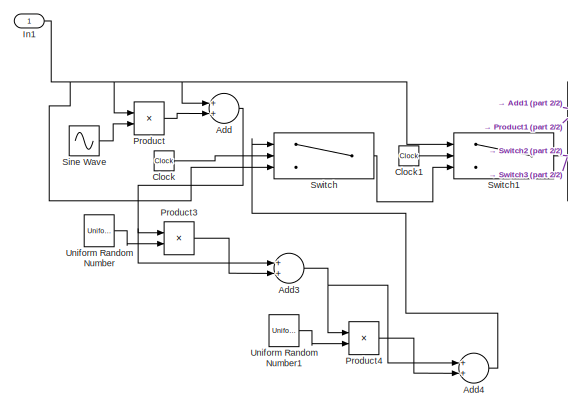
[diagram: Generación BC/Escenario de simulación/Solar Dic/Falla día 24 - part 1/2, left side, full height]
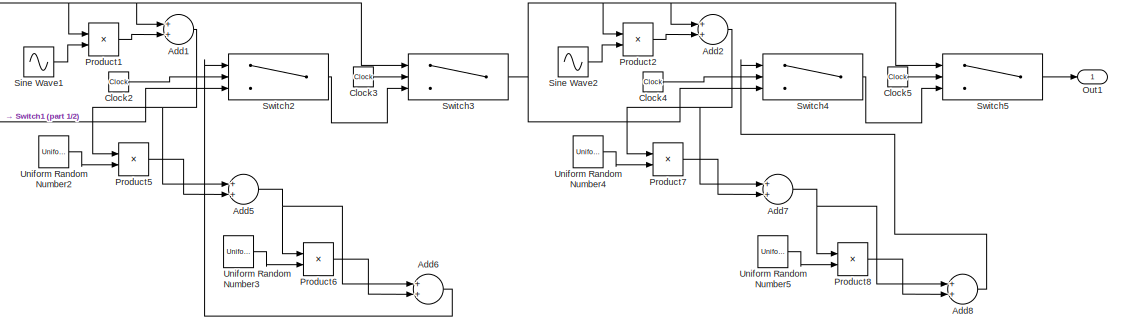
[diagram: Generación BC/Escenario de simulación/Solar Dic/Falla día 24 - part 2/2, right side, full height]
BLOCK [SubSystem] Generación BC/Escenario de simulación/Solar Dic/Falla día 24
  Ports = [1, 1]
  RequestExecContextInheritance = off
BLOCK [Sum] Generación BC/Escenario de simulación/Solar Dic/Falla día 24/Add
  InputSameDT = off
  OutDataTypeStr = Inherit: Inherit via internal rule
  Ports = [2, 1]
  SaturateOnIntegerOverflow = off
BLOCK [Sum] Generación BC/Escenario de simulación/Solar Dic/Falla día 24/Add1
  InputSameDT = off
  OutDataTypeStr = Inherit: Inherit via internal rule
  Ports = [2, 1]
  SaturateOnIntegerOverflow = off
BLOCK [Sum] Generación BC/Escenario de simulación/Solar Dic/Falla día 24/Add2
  InputSameDT = off
  OutDataTypeStr = Inherit: Inherit via internal rule
  Ports = [2, 1]
  SaturateOnIntegerOverflow = off
BLOCK [Sum] Generación BC/Escenario de simulación/Solar Dic/Falla día 24/Add3
  InputSameDT = off
  OutDataTypeStr = Inherit: Inherit via internal rule
  Ports = [2, 1]
  SaturateOnIntegerOverflow = off
BLOCK [Sum] Generación BC/Escenario de simulación/Solar Dic/Falla día 24/Add4
  InputSameDT = off
  OutDataTypeStr = Inherit: Inherit via internal rule
  Ports = [2, 1]
  SaturateOnIntegerOverflow = off
BLOCK [Sum] Generación BC/Escenario de simulación/Solar Dic/Falla día 24/Add5
  InputSameDT = off
  OutDataTypeStr = Inherit: Inherit via internal rule
  Ports = [2, 1]
  SaturateOnIntegerOverflow = off
BLOCK [Sum] Generación BC/Escenario de simulación/Solar Dic/Falla día 24/Add6
  InputSameDT = off
  OutDataTypeStr = Inherit: Inherit via internal rule
  Ports = [2, 1]
  SaturateOnIntegerOverflow = off
BLOCK [Sum] Generación BC/Escenario de simulación/Solar Dic/Falla día 24/Add7
  InputSameDT = off
  OutDataTypeStr = Inherit: Inherit via internal rule
  Ports = [2, 1]
  SaturateOnIntegerOverflow = off
BLOCK [Sum] Generación BC/Escenario de simulación/Solar Dic/Falla día 24/Add8
  InputSameDT = off
  OutDataTypeStr = Inherit: Inherit via internal rule
  Ports = [2, 1]
  SaturateOnIntegerOverflow = off
BLOCK [Clock] Generación BC/Escenario de simulación/Solar Dic/Falla día 24/Clock
BLOCK [Clock] Generación BC/Escenario de simulación/Solar Dic/Falla día 24/Clock1
BLOCK [Clock] Generación BC/Escenario de simulación/Solar Dic/Falla día 24/Clock2
BLOCK [Clock] Generación BC/Escenario de simulación/Solar Dic/Falla día 24/Clock3
BLOCK [Clock] Generación BC/Escenario de simulación/Solar Dic/Falla día 24/Clock4
BLOCK [Clock] Generación BC/Escenario de simulación/Solar Dic/Falla día 24/Clock5
BLOCK [Inport] Generación BC/Escenario de simulación/Solar Dic/Falla día 24/In1
  IconDisplay = Port number
BLOCK [Outport] Generación BC/Escenario de simulación/Solar Dic/Falla día 24/Out1
  IconDisplay = Port number
BLOCK [Product] Generación BC/Escenario de simulación/Solar Dic/Falla día 24/Product
  InputSameDT = off
  OutDataTypeStr = Inherit: Inherit via internal rule
  Ports = [2, 1]
  RndMeth = Floor
  SaturateOnIntegerOverflow = off
BLOCK [Product] Generación BC/Escenario de simulación/Solar Dic/Falla día 24/Product1
  InputSameDT = off
  OutDataTypeStr = Inherit: Inherit via internal rule
  Ports = [2, 1]
  RndMeth = Floor
  SaturateOnIntegerOverflow = off
BLOCK [Product] Generación BC/Escenario de simulación/Solar Dic/Falla día 24/Product2
  InputSameDT = off
  OutDataTypeStr = Inherit: Inherit via internal rule
  Ports = [2, 1]
  RndMeth = Floor
  SaturateOnIntegerOverflow = off
BLOCK [Product] Generación BC/Escenario de simulación/Solar Dic/Falla día 24/Product3
  InputSameDT = off
  OutDataTypeStr = Inherit: Inherit via internal rule
  Ports = [2, 1]
  RndMeth = Floor
  SaturateOnIntegerOverflow = off
BLOCK [Product] Generación BC/Escenario de simulación/Solar Dic/Falla día 24/Product4
  InputSameDT = off
  OutDataTypeStr = Inherit: Inherit via internal rule
  Ports = [2, 1]
  RndMeth = Floor
  SaturateOnIntegerOverflow = off
BLOCK [Product] Generación BC/Escenario de simulación/Solar Dic/Falla día 24/Product5
  InputSameDT = off
  OutDataTypeStr = Inherit: Inherit via internal rule
  Ports = [2, 1]
  RndMeth = Floor
  SaturateOnIntegerOverflow = off
BLOCK [Product] Generación BC/Escenario de simulación/Solar Dic/Falla día 24/Product6
  InputSameDT = off
  OutDataTypeStr = Inherit: Inherit via internal rule
  Ports = [2, 1]
  RndMeth = Floor
  SaturateOnIntegerOverflow = off
BLOCK [Product] Generación BC/Escenario de simulación/Solar Dic/Falla día 24/Product7
  InputSameDT = off
  OutDataTypeStr = Inherit: Inherit via internal rule
  Ports = [2, 1]
  RndMeth = Floor
  SaturateOnIntegerOverflow = off
BLOCK [Product] Generación BC/Escenario de simulación/Solar Dic/Falla día 24/Product8
  InputSameDT = off
  OutDataTypeStr = Inherit: Inherit via internal rule
  Ports = [2, 1]
  RndMeth = Floor
  SaturateOnIntegerOverflow = off
BLOCK [Sin] Generación BC/Escenario de simulación/Solar Dic/Falla día 24/Sine Wave
  Amplitude = 0.59
  Frequency = 0.000628319
  Phase = -pi/2+pi/12.5
  Ports = [0, 1]
  SampleTime = 0
BLOCK [Sin] Generación BC/Escenario de simulación/Solar Dic/Falla día 24/Sine Wave1
  Amplitude = 0.49
  Frequency = 0.001365910
  Phase = -pi/2-pi/4+pi/92.7
  Ports = [0, 1]
  SampleTime = 0
BLOCK [Sin] Generación BC/Escenario de simulación/Solar Dic/Falla día 24/Sine Wave2
  Amplitude = 0.89
  Frequency = 0.001365910
  Phase = -pi/11.5
  Ports = [0, 1]
  SampleTime = 0
BLOCK [Switch] Generación BC/Escenario de simulación/Solar Dic/Falla día 24/Switch
  InputSameDT = off
  SaturateOnIntegerOverflow = off
  Threshold = 2017100
BLOCK [Switch] Generación BC/Escenario de simulación/Solar Dic/Falla día 24/Switch1
  InputSameDT = off
  SaturateOnIntegerOverflow = off
  Threshold = 2022100
BLOCK [Switch] Generación BC/Escenario de simulación/Solar Dic/Falla día 24/Switch2
  InputSameDT = off
  SaturateOnIntegerOverflow = off
  Threshold = 2032600
BLOCK [Switch] Generación BC/Escenario de simulación/Solar Dic/Falla día 24/Switch3
  InputSameDT = off
  SaturateOnIntegerOverflow = off
  Threshold = 2034900
BLOCK [Switch] Generación BC/Escenario de simulación/Solar Dic/Falla día 24/Switch4
  InputSameDT = off
  SaturateOnIntegerOverflow = off
  Threshold = 2044900
BLOCK [Switch] Generación BC/Escenario de simulación/Solar Dic/Falla día 24/Switch5
  InputSameDT = off
  SaturateOnIntegerOverflow = off
  Threshold = 2047200
BLOCK [UniformRandomNumber] Generación BC/Escenario de simulación/Solar Dic/Falla día 24/Uniform Random Number
  Maximum = 0
  Minimum = -0.5
  SampleTime = 50
  Seed = 1337
BLOCK [UniformRandomNumber] Generación BC/Escenario de simulación/Solar Dic/Falla día 24/Uniform Random Number1
  Maximum = 0
  Minimum = -0.25
  SampleTime = 25
  Seed = 69420
BLOCK [UniformRandomNumber] Generación BC/Escenario de simulación/Solar Dic/Falla día 24/Uniform Random Number2
  Maximum = 0
  Minimum = -0.5
  SampleTime = 50
  Seed = 1337
BLOCK [UniformRandomNumber] Generación BC/Escenario de simulación/Solar Dic/Falla día 24/Uniform Random Number3
  Maximum = 0
  Minimum = -0.25
  SampleTime = 25
  Seed = 69420
BLOCK [UniformRandomNumber] Generación BC/Escenario de simulación/Solar Dic/Falla día 24/Uniform Random Number4
  Maximum = 0
  Minimum = -0.5
  SampleTime = 50
  Seed = 1337
BLOCK [UniformRandomNumber] Generación BC/Escenario de simulación/Solar Dic/Falla día 24/Uniform Random Number5
  Maximum = 0
  Minimum = -0.25
  SampleTime = 25
  Seed = 69420
BLOCK [SubSystem] Generación BC/Escenario de simulación/Solar Dic/Falla día 28
  Ports = [1, 1]
  RequestExecContextInheritance = off
BLOCK [Sum] Generación BC/Escenario de simulación/Solar Dic/Falla día 28/Add
  InputSameDT = off
  OutDataTypeStr = Inherit: Inherit via internal rule
  Ports = [2, 1]
  SaturateOnIntegerOverflow = off
BLOCK [Sum] Generación BC/Escenario de simulación/Solar Dic/Falla día 28/Add1
  InputSameDT = off
  OutDataTypeStr = Inherit: Inherit via internal rule
  Ports = [2, 1]
  SaturateOnIntegerOverflow = off
BLOCK [Sum] Generación BC/Escenario de simulación/Solar Dic/Falla día 28/Add2
  InputSameDT = off
  OutDataTypeStr = Inherit: Inherit via internal rule
  Ports = [2, 1]
  SaturateOnIntegerOverflow = off
BLOCK [Clock] Generación BC/Escenario de simulación/Solar Dic/Falla día 28/Clock
BLOCK [Clock] Generación BC/Escenario de simulación/Solar Dic/Falla día 28/Clock1
BLOCK [Inport] Generación BC/Escenario de simulación/Solar Dic/Falla día 28/In1
  IconDisplay = Port number
BLOCK [Outport] Generación BC/Escenario de simulación/Solar Dic/Falla día 28/Out1
  IconDisplay = Port number
BLOCK [Product] Generación BC/Escenario de simulación/Solar Dic/Falla día 28/Product
  InputSameDT = off
  OutDataTypeStr = Inherit: Inherit via internal rule
  Ports = [2, 1]
  RndMeth = Floor
  SaturateOnIntegerOverflow = off
BLOCK [Product] Generación BC/Escenario de simulación/Solar Dic/Falla día 28/Product1
  InputSameDT = off
  OutDataTypeStr = Inherit: Inherit via internal rule
  Ports = [2, 1]
  RndMeth = Floor
  SaturateOnIntegerOverflow = off
BLOCK [Product] Generación BC/Escenario de simulación/Solar Dic/Falla día 28/Product2
  InputSameDT = off
  OutDataTypeStr = Inherit: Inherit via internal rule
  Ports = [2, 1]
  RndMeth = Floor
  SaturateOnIntegerOverflow = off
BLOCK [Sin] Generación BC/Escenario de simulación/Solar Dic/Falla día 28/Sine Wave
  Amplitude = 0.53
  Frequency = 0.000506708
  Phase = pi-pi/4.435
  Ports = [0, 1]
  SampleTime = 0
BLOCK [Switch] Generación BC/Escenario de simulación/Solar Dic/Falla día 28/Switch
  InputSameDT = off
  SaturateOnIntegerOverflow = off
  Threshold = 2357400
BLOCK [Switch] Generación BC/Escenario de simulación/Solar Dic/Falla día 28/Switch1
  InputSameDT = off
  SaturateOnIntegerOverflow = off
  Threshold = 2363600
BLOCK [UniformRandomNumber] Generación BC/Escenario de simulación/Solar Dic/Falla día 28/Uniform Random Number
  Maximum = 0
  Minimum = -0.5
  SampleTime = 50
  Seed = 1337
BLOCK [UniformRandomNumber] Generación BC/Escenario de simulación/Solar Dic/Falla día 28/Uniform Random Number1
  Maximum = 0
  Minimum = -0.25
  SampleTime = 25
  Seed = 69420
BLOCK [SubSystem] Generación BC/Escenario de simulación/Solar Dic/Falla día 30
  Ports = [1, 1]
  RequestExecContextInheritance = off
BLOCK [Sum] Generación BC/Escenario de simulación/Solar Dic/Falla día 30/Add
  InputSameDT = off
  OutDataTypeStr = Inherit: Inherit via internal rule
  Ports = [2, 1]
  SaturateOnIntegerOverflow = off
BLOCK [Sum] Generación BC/Escenario de simulación/Solar Dic/Falla día 30/Add1
  InputSameDT = off
  OutDataTypeStr = Inherit: Inherit via internal rule
  Ports = [2, 1]
  SaturateOnIntegerOverflow = off
BLOCK [Sum] Generación BC/Escenario de simulación/Solar Dic/Falla día 30/Add2
  InputSameDT = off
  OutDataTypeStr = Inherit: Inherit via internal rule
  Ports = [2, 1]
  SaturateOnIntegerOverflow = off
BLOCK [Clock] Generación BC/Escenario de simulación/Solar Dic/Falla día 30/Clock
BLOCK [Clock] Generación BC/Escenario de simulación/Solar Dic/Falla día 30/Clock1
BLOCK [Inport] Generación BC/Escenario de simulación/Solar Dic/Falla día 30/In1
  IconDisplay = Port number
BLOCK [Outport] Generación BC/Escenario de simulación/Solar Dic/Falla día 30/Out1
  IconDisplay = Port number
BLOCK [Product] Generación BC/Escenario de simulación/Solar Dic/Falla día 30/Product
  InputSameDT = off
  OutDataTypeStr = Inherit: Inherit via internal rule
  Ports = [2, 1]
  RndMeth = Floor
  SaturateOnIntegerOverflow = off
BLOCK [Product] Generación BC/Escenario de simulación/Solar Dic/Falla día 30/Product1
  InputSameDT = off
  OutDataTypeStr = Inherit: Inherit via internal rule
  Ports = [2, 1]
  RndMeth = Floor
  SaturateOnIntegerOverflow = off
BLOCK [Product] Generación BC/Escenario de simulación/Solar Dic/Falla día 30/Product2
  InputSameDT = off
  OutDataTypeStr = Inherit: Inherit via internal rule
  Ports = [2, 1]
  RndMeth = Floor
  SaturateOnIntegerOverflow = off
BLOCK [Sin] Generación BC/Escenario de simulación/Solar Dic/Falla día 30/Sine Wave
  Amplitude = 0.84
  Frequency = 0.000275578
  Phase = -pi/2+pi/7.11
  Ports = [0, 1]
  SampleTime = 0
BLOCK [Switch] Generación BC/Escenario de simulación/Solar Dic/Falla día 30/Switch
  InputSameDT = off
  SaturateOnIntegerOverflow = off
  Threshold = 2546300
BLOCK [Switch] Generación BC/Escenario de simulación/Solar Dic/Falla día 30/Switch1
  InputSameDT = off
  SaturateOnIntegerOverflow = off
  Threshold = 2557700
BLOCK [UniformRandomNumber] Generación BC/Escenario de simulación/Solar Dic/Falla día 30/Uniform Random Number
  Maximum = 0
  Minimum = -0.5
  SampleTime = 50
  Seed = 1337
BLOCK [UniformRandomNumber] Generación BC/Escenario de simulación/Solar Dic/Falla día 30/Uniform Random Number1
  Maximum = 0
  Minimum = -0.25
  SampleTime = 25
  Seed = 69420
BLOCK [SubSystem] Generación BC/Escenario de simulación/Solar Dic/Falla día 4
  Ports = [1, 1]
  RequestExecContextInheritance = off
BLOCK [Sum] Generación BC/Escenario de simulación/Solar Dic/Falla día 4/Add
  InputSameDT = off
  OutDataTypeStr = Inherit: Inherit via internal rule
  Ports = [2, 1]
  SaturateOnIntegerOverflow = off
BLOCK [Sum] Generación BC/Escenario de simulación/Solar Dic/Falla día 4/Add1
  InputSameDT = off
  OutDataTypeStr = Inherit: Inherit via internal rule
  Ports = [2, 1]
  SaturateOnIntegerOverflow = off
BLOCK [Sum] Generación BC/Escenario de simulación/Solar Dic/Falla día 4/Add2
  InputSameDT = off
  OutDataTypeStr = Inherit: Inherit via internal rule
  Ports = [2, 1]
  SaturateOnIntegerOverflow = off
BLOCK [Clock] Generación BC/Escenario de simulación/Solar Dic/Falla día 4/Clock
BLOCK [Clock] Generación BC/Escenario de simulación/Solar Dic/Falla día 4/Clock1
BLOCK [Inport] Generación BC/Escenario de simulación/Solar Dic/Falla día 4/In1
  IconDisplay = Port number
BLOCK [Outport] Generación BC/Escenario de simulación/Solar Dic/Falla día 4/Out1
  IconDisplay = Port number
BLOCK [Product] Generación BC/Escenario de simulación/Solar Dic/Falla día 4/Product
  InputSameDT = off
  OutDataTypeStr = Inherit: Inherit via internal rule
  Ports = [2, 1]
  RndMeth = Floor
  SaturateOnIntegerOverflow = off
BLOCK [Product] Generación BC/Escenario de simulación/Solar Dic/Falla día 4/Product1
  InputSameDT = off
  OutDataTypeStr = Inherit: Inherit via internal rule
  Ports = [2, 1]
  RndMeth = Floor
  SaturateOnIntegerOverflow = off
BLOCK [Product] Generación BC/Escenario de simulación/Solar Dic/Falla día 4/Product2
  InputSameDT = off
  OutDataTypeStr = Inherit: Inherit via internal rule
  Ports = [2, 1]
  RndMeth = Floor
  SaturateOnIntegerOverflow = off
BLOCK [Sin] Generación BC/Escenario de simulación/Solar Dic/Falla día 4/Sine Wave
  Amplitude = 0.51
  Frequency = 1.28228e-4
  Phase = pi/2+pi/19.6
  Ports = [0, 1]
  SampleTime = 0
BLOCK [Switch] Generación BC/Escenario de simulación/Solar Dic/Falla día 4/Switch
  InputSameDT = off
  SaturateOnIntegerOverflow = off
  Threshold = 305000
BLOCK [Switch] Generación BC/Escenario de simulación/Solar Dic/Falla día 4/Switch1
  InputSameDT = off
  SaturateOnIntegerOverflow = off
  Threshold = 329500
BLOCK [UniformRandomNumber] Generación BC/Escenario de simulación/Solar Dic/Falla día 4/Uniform Random Number
  Maximum = 0
  Minimum = -0.5
  SampleTime = 50
  Seed = 1337
BLOCK [UniformRandomNumber] Generación BC/Escenario de simulación/Solar Dic/Falla día 4/Uniform Random Number1
  Maximum = 0
  Minimum = -0.25
  SampleTime = 25
  Seed = 69420
BLOCK [Inport] Generación BC/Escenario de simulación/Solar Dic/Gen S in
  IconDisplay = Port number
BLOCK [Outport] Generación BC/Escenario de simulación/Solar Dic/Gen S out
  IconDisplay = Port number
BLOCK [Outport] Generación BC/Gen out
  IconDisplay = Port number
  Port = 2
BLOCK [Sum] Generación BC/Generación Baja California
  InputSameDT = off
  Inputs = +||+||+||+||+||+||+||+
  OutDataTypeStr = Inherit: Inherit via internal rule
  Ports = [8, 1]
  SaturateOnIntegerOverflow = off
BLOCK [FromWorkspace] Generación BC/Generación eolica
  SampleTime = 0
  VariableName = gene
  ZeroCross = on
BLOCK [FromWorkspace] Generación BC/Generación solar
  SampleTime = 0
  VariableName = gens
  ZeroCross = on
BLOCK [SubSystem] Generación BC/La Jovita (CCBC)
  Ports = [2, 1]
  RequestExecContextInheritance = off
BLOCK [TransferFcn] Generación BC/La Jovita (CCBC)/1//(sT_g + 1)1
  Denominator = [2.675 1]
BLOCK [TransferFcn] Generación BC/La Jovita (CCBC)/1//(sT_t + 1)1
  Denominator = [0.71 1]
BLOCK [Inport] Generación BC/La Jovita (CCBC)/1//R-BJT
  IconDisplay = Port number
BLOCK [Gain] Generación BC/La Jovita (CCBC)/1//R2
  Gain = 16.50615303
  OutDataTypeStr = Inherit: Inherit via internal rule
  ParamDataTypeStr = Inherit: Inherit via internal rule
  SaturateOnIntegerOverflow = off
BLOCK [Outport] Generación BC/La Jovita (CCBC)/PG-BJT
  IconDisplay = Port number
BLOCK [Inport] Generación BC/La Jovita (CCBC)/PID-BJT
  IconDisplay = Port number
  Port = 2
BLOCK [Saturate] Generación BC/La Jovita (CCBC)/Saturation
  InputPortMap = u0
  LowerLimit = 0
  Ports = [1, 1]
  UpperLimit = 0.324
BLOCK [Sum] Generación BC/La Jovita (CCBC)/Sum1
  IconShape = round
  InputSameDT = off
  Inputs = --|
  OutDataTypeStr = Inherit: Inherit via internal rule
  Ports = [2, 1]
  SaturateOnIntegerOverflow = off
BLOCK [SubSystem] Generación BC/La Rosita (CCM)
  Ports = [2, 1]
  RequestExecContextInheritance = off
BLOCK [TransferFcn] Generación BC/La Rosita (CCM)/1//(sT_g + 1)1
  Denominator = [0.15 1]
BLOCK [TransferFcn] Generación BC/La Rosita (CCM)/1//(sT_t + 1)1
  Denominator = [0.05 1]
BLOCK [Inport] Generación BC/La Rosita (CCM)/1//R-ROA
  IconDisplay = Port number
BLOCK [Gain] Generación BC/La Rosita (CCM)/1//R1
  Gain = 24.85720114
  OutDataTypeStr = Inherit: Inherit via internal rule
  ParamDataTypeStr = Inherit: Inherit via internal rule
  SaturateOnIntegerOverflow = off
BLOCK [Outport] Generación BC/La Rosita (CCM)/PG-ROA
  IconDisplay = Port number
BLOCK [Inport] Generación BC/La Rosita (CCM)/PID-ROA
  IconDisplay = Port number
  Port = 2
BLOCK [Saturate] Generación BC/La Rosita (CCM)/Saturation
  InputPortMap = u0
  LowerLimit = 0
  Ports = [1, 1]
  UpperLimit = 0.783
BLOCK [Sum] Generación BC/La Rosita (CCM)/Sum1
  IconShape = round
  InputSameDT = off
  Inputs = --|
  OutDataTypeStr = Inherit: Inherit via internal rule
  Ports = [2, 1]
  SaturateOnIntegerOverflow = off
BLOCK [Inport] Generación BC/PID in
  IconDisplay = Port number
  Port = 2
BLOCK [Outport] Generación BC/PID reset out
  IconDisplay = Port number
BLOCK [SubSystem] Generación BC/Presidente Juarez
  Ports = [2, 1]
  RequestExecContextInheritance = off
BLOCK [TransferFcn] Generación BC/Presidente Juarez/1//(sT_g + 1)1
  Denominator = [0.2 1]
BLOCK [TransferFcn] Generación BC/Presidente Juarez/1//(sT_t + 1)1
  Denominator = [0.1 1]
BLOCK [Inport] Generación BC/Presidente Juarez/1//R-PJZ
  IconDisplay = Port number
BLOCK [Gain] Generación BC/Presidente Juarez/1//R1
  Gain = 18.56344588
  OutDataTypeStr = Inherit: Inherit via internal rule
  ParamDataTypeStr = Inherit: Inherit via internal rule
  SaturateOnIntegerOverflow = off
BLOCK [Outport] Generación BC/Presidente Juarez/PG-PJZ
  IconDisplay = Port number
BLOCK [Inport] Generación BC/Presidente Juarez/PID-PJZ
  IconDisplay = Port number
  Port = 2
BLOCK [Saturate] Generación BC/Presidente Juarez/Saturation
  InputPortMap = u0
  LowerLimit = 0
  Ports = [1, 1]
  UpperLimit = 1.063
BLOCK [Sum] Generación BC/Presidente Juarez/Sum1
  IconShape = round
  InputSameDT = off
  Inputs = --|
  OutDataTypeStr = Inherit: Inherit via internal rule
  Ports = [2, 1]
  SaturateOnIntegerOverflow = off
BLOCK [Sum] Generación BC/Sum
  IconShape = round
  InputSameDT = off
  Inputs = 3
  OutDataTypeStr = Inherit: Inherit via internal rule
  Ports = [3, 1]
  SaturateOnIntegerOverflow = off
BLOCK [SubSystem] Generación BC/Turbogas Mexicali
  Ports = [2, 1]
  RequestExecContextInheritance = off
BLOCK [TransferFcn] Generación BC/Turbogas Mexicali/1//(sT_g + 1)
  Denominator = [0.16666 1]
BLOCK [TransferFcn] Generación BC/Turbogas Mexicali/1//(sT_t + 1)
  Denominator = [0.366666 1]
BLOCK [Inport] Generación BC/Turbogas Mexicali/1//R-MXI
  IconDisplay = Port number
BLOCK [Gain] Generación BC/Turbogas Mexicali/1//R1
  Gain = 19.09999982
  OutDataTypeStr = Inherit: Inherit via internal rule
  ParamDataTypeStr = Inherit: Inherit via internal rule
  SaturateOnIntegerOverflow = off
BLOCK [Outport] Generación BC/Turbogas Mexicali/PG-MXI
  IconDisplay = Port number
BLOCK [Inport] Generación BC/Turbogas Mexicali/PID-MXI
  IconDisplay = Port number
  Port = 2
BLOCK [Saturate] Generación BC/Turbogas Mexicali/Saturation
  InputPortMap = u0
  LowerLimit = 0
  Ports = [1, 1]
  UpperLimit = 0.062
BLOCK [Sum] Generación BC/Turbogas Mexicali/Sum
  IconShape = round
  InputSameDT = off
  Inputs = --|
  OutDataTypeStr = Inherit: Inherit via internal rule
  Ports = [2, 1]
  SaturateOnIntegerOverflow = off
BLOCK [SubSystem] Generación BC/Turbogas Tijuana
  Ports = [2, 1]
  RequestExecContextInheritance = off
BLOCK [TransferFcn] Generación BC/Turbogas Tijuana/1//(sT_g + 1)1
  Denominator = [0.1 1]
BLOCK [TransferFcn] Generación BC/Turbogas Tijuana/1//(sT_t + 1)1
  Denominator = [0.2 1]
BLOCK [Inport] Generación BC/Turbogas Tijuana/1//R-TTI
  IconDisplay = Port number
BLOCK [Gain] Generación BC/Turbogas Tijuana/1//R1
  Gain = 21.83406114
  OutDataTypeStr = Inherit: Inherit via internal rule
  ParamDataTypeStr = Inherit: Inherit via internal rule
  SaturateOnIntegerOverflow = off
BLOCK [Outport] Generación BC/Turbogas Tijuana/PG-TTI
  IconDisplay = Port number
BLOCK [Inport] Generación BC/Turbogas Tijuana/PID-TTI
  IconDisplay = Port number
  Port = 2
BLOCK [Saturate] Generación BC/Turbogas Tijuana/Saturation
  InputPortMap = u0
  LowerLimit = 0
  Ports = [1, 1]
  UpperLimit = 0.345
BLOCK [Sum] Generación BC/Turbogas Tijuana/Sum1
  IconShape = round
  InputSameDT = off
  Inputs = --|
  OutDataTypeStr = Inherit: Inherit via internal rule
  Ports = [2, 1]
  SaturateOnIntegerOverflow = off
BLOCK [SubSystem] Generación WECC
  Ports = [2, 1]
  RequestExecContextInheritance = off
BLOCK [TransferFcn] Generación WECC/1//(sT_g + 1) 2
  Denominator = [0.04 1]
BLOCK [Inport] Generación WECC/1//R-WECC
  IconDisplay = Port number
  Port = 2
BLOCK [Gain] Generación WECC/1//R2
  Gain = 20
  OutDataTypeStr = Inherit: Inherit via internal rule
  ParamDataTypeStr = Inherit: Inherit via internal rule
  SaturateOnIntegerOverflow = off
BLOCK [TransferFcn] Generación WECC/Generación extra área 2
  Denominator = [0.2 1]
BLOCK [Outport] Generación WECC/PG-WECC
  IconDisplay = Port number
BLOCK [Inport] Generación WECC/PID-WECC
  IconDisplay = Port number
BLOCK [Sum] Generación WECC/Sum5
  IconShape = round
  InputSameDT = off
  Inputs = |--
  OutDataTypeStr = Inherit: Inherit via internal rule
  Ports = [2, 1]
  SaturateOnIntegerOverflow = off
BLOCK [Saturate] Generación de planta 1
  InputPortMap = u0
  LowerLimit = -0.8
  Ports = [1, 1]
  UpperLimit = 0.4
BLOCK [Saturate] Generación de planta 2
  InputPortMap = u0
  LowerLimit = -0.4
  Ports = [1, 1]
  UpperLimit = 0.8
BLOCK [Saturate] Generación de planta 3
  InputPortMap = u0
  LowerLimit = -0.4
  Ports = [1, 1]
  UpperLimit = 0.8
BLOCK [Saturate] Generación de planta 4
  InputPortMap = u0
  LowerLimit = -0.8
  Ports = [1, 1]
  UpperLimit = 0.4
BLOCK [TransferFcn] Intercambio neto
  Denominator = [1 0]
  Numerator = [2]
BLOCK [Reference] PID Controller  REF=simulink/Continuous/PID Controller
  Ports = [2, 1]
  SourceBlock = simulink/Continuous/PID Controller
  SourceProductBaseCode = SL
  SourceProductName = Simulink
  SourceType = PID 1dof
BLOCK [Scope] Scope1
  Floating = off
  NumInputPorts = 1
  Ports = [1]
  ScopeSpecificationString = Simulink.scopes.TimeScopeBlockCfg('CurrentConfiguration', extmgr.ConfigurationSet(extmgr.Configuration('Core','General UI',true),extmgr.Configuration('Core','Source UI',true),extmgr.Configuration('Sources','WiredSimulink',true,'DataLoggingVariableName','gen1','DataLogging',true,'DataLoggingSaveFormat','Array','SampleTime','1'),extmgr.Configuration('Visuals','Time Domain',true,'SerializedDisplays',...<+1434ch>
BLOCK [Scope] Scope2
  Floating = off
  NumInputPorts = 1
  Ports = [1]
  ScopeSpecificationString = Simulink.scopes.TimeScopeBlockCfg('CurrentConfiguration', extmgr.ConfigurationSet(extmgr.Configuration('Core','General UI',true),extmgr.Configuration('Core','Source UI',true),extmgr.Configuration('Sources','WiredSimulink',true,'DataLoggingVariableName','gen2','DataLogging',true,'DataLoggingSaveFormat','Array','SampleTime','1'),extmgr.Configuration('Visuals','Time Domain',true,'SerializedDisplays',...<+1436ch>
BLOCK [Sum] Sum1
  IconShape = round
  InputSameDT = off
  Inputs = ||-|+|-||
  OutDataTypeStr = Inherit: Inherit via internal rule
  Ports = [3, 1]
  SaturateOnIntegerOverflow = off
BLOCK [Sum] Sum3
  IconShape = round
  InputSameDT = off
  Inputs = +|+
  OutDataTypeStr = Inherit: Inherit via internal rule
  Ports = [2, 1]
  SaturateOnIntegerOverflow = off
BLOCK [Sum] Sum4
  IconShape = round
  InputSameDT = off
  Inputs = -|+
  OutDataTypeStr = Inherit: Inherit via internal rule
  Ports = [2, 1]
  SaturateOnIntegerOverflow = off
BLOCK [Sum] Sum6
  IconShape = round
  InputSameDT = off
  Inputs = ||+|+|-||
  OutDataTypeStr = Inherit: Inherit via internal rule
  Ports = [3, 1]
  SaturateOnIntegerOverflow = off
BLOCK [Constant] Visualización de demanda en sistema WECC
  Value = 4
BLOCK [Scope] dF
  Floating = off
  NumInputPorts = 1
  Ports = [1]
  ScopeSpecificationString = Simulink.scopes.TimeScopeBlockCfg('CurrentConfiguration', extmgr.ConfigurationSet(extmgr.Configuration('Core','General UI',true),extmgr.Configuration('Core','Source UI',true),extmgr.Configuration('Sources','WiredSimulink',true,'DataLoggingVariableName','dF','SampleTime','1','DataLogging',true,'DataLoggingSaveFormat','Array'),extmgr.Configuration('Visuals','Time Domain',true,'SerializedDisplays',{s...<+1540ch>
BLOCK [Goto] dF1 in
  GotoTag = dF1
BLOCK [From] dF1 out
  GotoTag = dF1
BLOCK [From] dF1 out1
  GotoTag = dF1
BLOCK [From] dF1 out2
  GotoTag = dF1
BLOCK [Goto] dF2 in
  GotoTag = dF2
BLOCK [From] dF2 out
  GotoTag = dF2
BLOCK [Goto] dPtie in
  GotoTag = dPtie
BLOCK [From] dPtie out
  GotoTag = dPtie
ANNOTATION (root): 1/(2*H_e_q_1*s + D)
ANNOTATION (root): 1/(2*H_e_q_2*s + D)
ANNOTATION (root): 2*\pi*T_1_2/s
ANNOTATION (root): Tie line
ANNOTATION (root): \DeltaP_m_1
ANNOTATION (root): \DeltaP_m_2
ANNOTATION (root): \DeltaP_t_i_e_1_2
ANNOTATION (root): \Deltaf_1
ANNOTATION (root): \Deltaf_1_-_2
ANNOTATION (root): \Deltaf_2
ANNOTATION (root): \beta_1
ANNOTATION (root): \beta_2
ANNOTATION Error de Control de Area (ACE): 10*B_i*(\Deltaf)
ANNOTATION Error de Control de Area (ACE): Conversión de frecuencia P.U. a Hz.
ANNOTATION Error de Control de Area (ACE): Conversión de intercambio P.U. a MW.
ANNOTATION Error de Control de Area (ACE): IN_a - IN_p
ANNOTATION Error de Control de Area (ACE): \Deltaf_1
ANNOTATION Generación BC: 1063 MW Max
ANNOTATION Generación BC: 324 MW Max
ANNOTATION Generación BC: 340 MW Max
ANNOTATION Generación BC: 345 MW Max
ANNOTATION Generación BC: 62 MW Max
ANNOTATION Generación BC: 783 MW Max
ANNOTATION Generación BC: Generación convencional total: 2917 MW
ANNOTATION Generación BC: Generación renovable
ANNOTATION Generación BC/Cerro Prieto I-IV: Heq = 4.593
ANNOTATION Generación BC/La Jovita (CCBC): Heq = 4.2
ANNOTATION Generación BC/La Rosita (CCM): 1/R = 24.85720114
ANNOTATION Generación BC/La Rosita (CCM): Heq = 5.893
ANNOTATION Generación BC/La Rosita (CCM): T2 = 0.2
ANNOTATION Generación BC/La Rosita (CCM): T_1 = 1
ANNOTATION Generación BC/Presidente Juarez: Heq = 3.38
ANNOTATION Generación BC/Presidente Juarez: T1 = 2.032
ANNOTATION Generación BC/Presidente Juarez: T2 = 1.56
ANNOTATION Generación BC/Turbogas Mexicali: 62 MW de generación MAX
ANNOTATION Generación BC/Turbogas Mexicali: Heq = 3.666
ANNOTATION Generación BC/Turbogas Tijuana: Heq = 5.91
NET 1//(2*H_eq*s + D) 2:1 -> Beta_2:1, Desviación de frecuencia 1-2:2, dF2 in:1
LINE B 1:1 -> Error de Control de Area (ACE):1
LINE Beta_1:1 -> Sum3:2
LINE Beta_2:1 -> Sum4:2
NET Demanda del sistema:1 -> Dem in:1, Equal:1, Sum1:1
LINE Demanda:1 -> Frecuencia - Demanda:2
LINE Desviación de frecuencia 1-2:1 -> Intercambio neto:1
NET Desviación de frecuencia:1 -> Beta_1:1, Desviación de frecuencia 1-2:1, dF1 in:1
LINE Equal:1 -> PID Controller:2
LINE Error de Control de Area (ACE)/B 1:1 -> Error de Control de Area (ACE)/Product2:2
LINE Error de Control de Area (ACE)/Constante:1 -> Error de Control de Area (ACE)/Product1:2
LINE Error de Control de Area (ACE)/Desviación de frecuencia:1 -> Error de Control de Area (ACE)/Product:1
LINE Error de Control de Area (ACE)/Hz Base:1 -> Error de Control de Area (ACE)/Product:2
LINE Error de Control de Area (ACE)/Intercambio neto actual (P.U.):1 -> Error de Control de Area (ACE)/Product3:1
LINE Error de Control de Area (ACE)/Intercambio programado (MW):1 -> Error de Control de Area (ACE)/Sum7:2
LINE Error de Control de Area (ACE)/MW Base:1 -> Error de Control de Area (ACE)/Product3:2
LINE Error de Control de Area (ACE)/Product1:1 -> Error de Control de Area (ACE)/Product2:1
LINE Error de Control de Area (ACE)/Product2:1 -> Error de Control de Area (ACE)/Sum9:1
LINE Error de Control de Area (ACE)/Product3:1 -> Error de Control de Area (ACE)/Sum7:1
LINE Error de Control de Area (ACE)/Product:1 -> Error de Control de Area (ACE)/Product1:1
LINE Error de Control de Area (ACE)/Sum7:1 -> Error de Control de Area (ACE)/Sum9:2
LINE Error de Control de Area (ACE)/Sum9:1 -> Error de Control de Area (ACE)/ACE:1
LINE Error de Control de Area (ACE):1 -> ACE:1
LINE From1:1 -> Scope2:1
LINE From:1 -> Scope1:1
LINE G(s)_2 = K_P + K_I//s+K_D*s:1 -> Generación WECC:1
LINE Generación A1:1 -> Frecuencia - Demanda:3
LINE Generación A2:1 -> Frecuencia - Demanda:4
NET Generación BC/1//R in:1 -> Generación BC/La Jovita (CCBC):1, Generación BC/La Rosita (CCM):1, Generación BC/Presidente Juarez:1, Generación BC/Turbogas Mexicali:1, Generación BC/Turbogas Tijuana:1
LINE Generación BC/Cerro Prieto I-IV/CP Gen:1 -> Generación BC/Cerro Prieto I-IV/PG-CP:1
NET Generación BC/Cerro Prieto I-IV:1 -> Generación BC/Generación Baja California:7, Generación BC/Sum:3
NET Generación BC/Escenario de simulación/Constant:1 -> Generación BC/Escenario de simulación/Multiport Switch2:4, Generación BC/Escenario de simulación/Multiport Switch:4
LINE Generación BC/Escenario de simulación/Eólico Ago/Falla día 13/Add:1 -> Generación BC/Escenario de simulación/Eólico Ago/Falla día 13/Switch:1
LINE Generación BC/Escenario de simulación/Eólico Ago/Falla día 13/Clock1:1 -> Generación BC/Escenario de simulación/Eólico Ago/Falla día 13/Switch1:2
LINE Generación BC/Escenario de simulación/Eólico Ago/Falla día 13/Clock:1 -> Generación BC/Escenario de simulación/Eólico Ago/Falla día 13/Switch:2
NET Generación BC/Escenario de simulación/Eólico Ago/Falla día 13/In1:1 -> Generación BC/Escenario de simulación/Eólico Ago/Falla día 13/Add:1, Generación BC/Escenario de simulación/Eólico Ago/Falla día 13/Product:1, Generación BC/Escenario de simulación/Eólico Ago/Falla día 13/Switch1:1, Generación BC/Escenario de simulación/Eólico Ago/Falla día 13/Switch:3
LINE Generación BC/Escenario de simulación/Eólico Ago/Falla día 13/Product:1 -> Generación BC/Escenario de simulación/Eólico Ago/Falla día 13/Add:2
LINE Generación BC/Escenario de simulación/Eólico Ago/Falla día 13/Sine Wave:1 -> Generación BC/Escenario de simulación/Eólico Ago/Falla día 13/Product:2
LINE Generación BC/Escenario de simulación/Eólico Ago/Falla día 13/Switch1:1 -> Generación BC/Escenario de simulación/Eólico Ago/Falla día 13/Out1:1
LINE Generación BC/Escenario de simulación/Eólico Ago/Falla día 13/Switch:1 -> Generación BC/Escenario de simulación/Eólico Ago/Falla día 13/Switch1:3
LINE Generación BC/Escenario de simulación/Eólico Ago/Falla día 13:1 -> Generación BC/Escenario de simulación/Eólico Ago/Falla día 16:1
LINE Generación BC/Escenario de simulación/Eólico Ago/Falla día 16/Add:1 -> Generación BC/Escenario de simulación/Eólico Ago/Falla día 16/Switch:1
LINE Generación BC/Escenario de simulación/Eólico Ago/Falla día 16/Clock1:1 -> Generación BC/Escenario de simulación/Eólico Ago/Falla día 16/Switch1:2
LINE Generación BC/Escenario de simulación/Eólico Ago/Falla día 16/Clock:1 -> Generación BC/Escenario de simulación/Eólico Ago/Falla día 16/Switch:2
NET Generación BC/Escenario de simulación/Eólico Ago/Falla día 16/In1:1 -> Generación BC/Escenario de simulación/Eólico Ago/Falla día 16/Add:1, Generación BC/Escenario de simulación/Eólico Ago/Falla día 16/Product:1, Generación BC/Escenario de simulación/Eólico Ago/Falla día 16/Switch1:1, Generación BC/Escenario de simulación/Eólico Ago/Falla día 16/Switch:3
LINE Generación BC/Escenario de simulación/Eólico Ago/Falla día 16/Product:1 -> Generación BC/Escenario de simulación/Eólico Ago/Falla día 16/Add:2
LINE Generación BC/Escenario de simulación/Eólico Ago/Falla día 16/Sine Wave:1 -> Generación BC/Escenario de simulación/Eólico Ago/Falla día 16/Product:2
LINE Generación BC/Escenario de simulación/Eólico Ago/Falla día 16/Switch1:1 -> Generación BC/Escenario de simulación/Eólico Ago/Falla día 16/Out1:1
LINE Generación BC/Escenario de simulación/Eólico Ago/Falla día 16/Switch:1 -> Generación BC/Escenario de simulación/Eólico Ago/Falla día 16/Switch1:3
LINE Generación BC/Escenario de simulación/Eólico Ago/Falla día 16:1 -> Generación BC/Escenario de simulación/Eólico Ago/Falla día 18:1
LINE Generación BC/Escenario de simulación/Eólico Ago/Falla día 18/Add:1 -> Generación BC/Escenario de simulación/Eólico Ago/Falla día 18/Switch:1
LINE Generación BC/Escenario de simulación/Eólico Ago/Falla día 18/Clock1:1 -> Generación BC/Escenario de simulación/Eólico Ago/Falla día 18/Switch1:2
LINE Generación BC/Escenario de simulación/Eólico Ago/Falla día 18/Clock:1 -> Generación BC/Escenario de simulación/Eólico Ago/Falla día 18/Switch:2
NET Generación BC/Escenario de simulación/Eólico Ago/Falla día 18/In1:1 -> Generación BC/Escenario de simulación/Eólico Ago/Falla día 18/Add:1, Generación BC/Escenario de simulación/Eólico Ago/Falla día 18/Product:1, Generación BC/Escenario de simulación/Eólico Ago/Falla día 18/Switch1:1, Generación BC/Escenario de simulación/Eólico Ago/Falla día 18/Switch:3
LINE Generación BC/Escenario de simulación/Eólico Ago/Falla día 18/Product:1 -> Generación BC/Escenario de simulación/Eólico Ago/Falla día 18/Add:2
LINE Generación BC/Escenario de simulación/Eólico Ago/Falla día 18/Sine Wave:1 -> Generación BC/Escenario de simulación/Eólico Ago/Falla día 18/Product:2
LINE Generación BC/Escenario de simulación/Eólico Ago/Falla día 18/Switch1:1 -> Generación BC/Escenario de simulación/Eólico Ago/Falla día 18/Out1:1
LINE Generación BC/Escenario de simulación/Eólico Ago/Falla día 18/Switch:1 -> Generación BC/Escenario de simulación/Eólico Ago/Falla día 18/Switch1:3
LINE Generación BC/Escenario de simulación/Eólico Ago/Falla día 18:1 -> Generación BC/Escenario de simulación/Eólico Ago/Falla día 21:1
LINE Generación BC/Escenario de simulación/Eólico Ago/Falla día 21/Add:1 -> Generación BC/Escenario de simulación/Eólico Ago/Falla día 21/Switch:1
LINE Generación BC/Escenario de simulación/Eólico Ago/Falla día 21/Clock1:1 -> Generación BC/Escenario de simulación/Eólico Ago/Falla día 21/Switch1:2
LINE Generación BC/Escenario de simulación/Eólico Ago/Falla día 21/Clock:1 -> Generación BC/Escenario de simulación/Eólico Ago/Falla día 21/Switch:2
NET Generación BC/Escenario de simulación/Eólico Ago/Falla día 21/In1:1 -> Generación BC/Escenario de simulación/Eólico Ago/Falla día 21/Add:1, Generación BC/Escenario de simulación/Eólico Ago/Falla día 21/Product:1, Generación BC/Escenario de simulación/Eólico Ago/Falla día 21/Switch1:1, Generación BC/Escenario de simulación/Eólico Ago/Falla día 21/Switch:3
LINE Generación BC/Escenario de simulación/Eólico Ago/Falla día 21/Product:1 -> Generación BC/Escenario de simulación/Eólico Ago/Falla día 21/Add:2
LINE Generación BC/Escenario de simulación/Eólico Ago/Falla día 21/Sine Wave:1 -> Generación BC/Escenario de simulación/Eólico Ago/Falla día 21/Product:2
LINE Generación BC/Escenario de simulación/Eólico Ago/Falla día 21/Switch1:1 -> Generación BC/Escenario de simulación/Eólico Ago/Falla día 21/Out1:1
LINE Generación BC/Escenario de simulación/Eólico Ago/Falla día 21/Switch:1 -> Generación BC/Escenario de simulación/Eólico Ago/Falla día 21/Switch1:3
LINE Generación BC/Escenario de simulación/Eólico Ago/Falla día 21:1 -> Generación BC/Escenario de simulación/Eólico Ago/Falla día 25:1
LINE Generación BC/Escenario de simulación/Eólico Ago/Falla día 25/Add:1 -> Generación BC/Escenario de simulación/Eólico Ago/Falla día 25/Switch:1
LINE Generación BC/Escenario de simulación/Eólico Ago/Falla día 25/Clock1:1 -> Generación BC/Escenario de simulación/Eólico Ago/Falla día 25/Switch1:2
LINE Generación BC/Escenario de simulación/Eólico Ago/Falla día 25/Clock:1 -> Generación BC/Escenario de simulación/Eólico Ago/Falla día 25/Switch:2
NET Generación BC/Escenario de simulación/Eólico Ago/Falla día 25/In1:1 -> Generación BC/Escenario de simulación/Eólico Ago/Falla día 25/Add:1, Generación BC/Escenario de simulación/Eólico Ago/Falla día 25/Product:1, Generación BC/Escenario de simulación/Eólico Ago/Falla día 25/Switch1:1, Generación BC/Escenario de simulación/Eólico Ago/Falla día 25/Switch:3
LINE Generación BC/Escenario de simulación/Eólico Ago/Falla día 25/Product:1 -> Generación BC/Escenario de simulación/Eólico Ago/Falla día 25/Add:2
LINE Generación BC/Escenario de simulación/Eólico Ago/Falla día 25/Sine Wave:1 -> Generación BC/Escenario de simulación/Eólico Ago/Falla día 25/Product:2
LINE Generación BC/Escenario de simulación/Eólico Ago/Falla día 25/Switch1:1 -> Generación BC/Escenario de simulación/Eólico Ago/Falla día 25/Out1:1
LINE Generación BC/Escenario de simulación/Eólico Ago/Falla día 25/Switch:1 -> Generación BC/Escenario de simulación/Eólico Ago/Falla día 25/Switch1:3
LINE Generación BC/Escenario de simulación/Eólico Ago/Falla día 25:1 -> Generación BC/Escenario de simulación/Eólico Ago/Falla día 28:1
LINE Generación BC/Escenario de simulación/Eólico Ago/Falla día 28/Add:1 -> Generación BC/Escenario de simulación/Eólico Ago/Falla día 28/Switch:1
LINE Generación BC/Escenario de simulación/Eólico Ago/Falla día 28/Clock1:1 -> Generación BC/Escenario de simulación/Eólico Ago/Falla día 28/Switch1:2
LINE Generación BC/Escenario de simulación/Eólico Ago/Falla día 28/Clock:1 -> Generación BC/Escenario de simulación/Eólico Ago/Falla día 28/Switch:2
NET Generación BC/Escenario de simulación/Eólico Ago/Falla día 28/In1:1 -> Generación BC/Escenario de simulación/Eólico Ago/Falla día 28/Add:1, Generación BC/Escenario de simulación/Eólico Ago/Falla día 28/Product:1, Generación BC/Escenario de simulación/Eólico Ago/Falla día 28/Switch1:1, Generación BC/Escenario de simulación/Eólico Ago/Falla día 28/Switch:3
LINE Generación BC/Escenario de simulación/Eólico Ago/Falla día 28/Product:1 -> Generación BC/Escenario de simulación/Eólico Ago/Falla día 28/Add:2
LINE Generación BC/Escenario de simulación/Eólico Ago/Falla día 28/Sine Wave:1 -> Generación BC/Escenario de simulación/Eólico Ago/Falla día 28/Product:2
LINE Generación BC/Escenario de simulación/Eólico Ago/Falla día 28/Switch1:1 -> Generación BC/Escenario de simulación/Eólico Ago/Falla día 28/Out1:1
LINE Generación BC/Escenario de simulación/Eólico Ago/Falla día 28/Switch:1 -> Generación BC/Escenario de simulación/Eólico Ago/Falla día 28/Switch1:3
LINE Generación BC/Escenario de simulación/Eólico Ago/Falla día 28:1 -> Generación BC/Escenario de simulación/Eólico Ago/Falla día 30:1
LINE Generación BC/Escenario de simulación/Eólico Ago/Falla día 30/Add:1 -> Generación BC/Escenario de simulación/Eólico Ago/Falla día 30/Switch:1
LINE Generación BC/Escenario de simulación/Eólico Ago/Falla día 30/Clock1:1 -> Generación BC/Escenario de simulación/Eólico Ago/Falla día 30/Switch1:2
LINE Generación BC/Escenario de simulación/Eólico Ago/Falla día 30/Clock:1 -> Generación BC/Escenario de simulación/Eólico Ago/Falla día 30/Switch:2
NET Generación BC/Escenario de simulación/Eólico Ago/Falla día 30/In1:1 -> Generación BC/Escenario de simulación/Eólico Ago/Falla día 30/Add:1, Generación BC/Escenario de simulación/Eólico Ago/Falla día 30/Product:1, Generación BC/Escenario de simulación/Eólico Ago/Falla día 30/Switch1:1, Generación BC/Escenario de simulación/Eólico Ago/Falla día 30/Switch:3
LINE Generación BC/Escenario de simulación/Eólico Ago/Falla día 30/Product:1 -> Generación BC/Escenario de simulación/Eólico Ago/Falla día 30/Add:2
LINE Generación BC/Escenario de simulación/Eólico Ago/Falla día 30/Sine Wave:1 -> Generación BC/Escenario de simulación/Eólico Ago/Falla día 30/Product:2
LINE Generación BC/Escenario de simulación/Eólico Ago/Falla día 30/Switch1:1 -> Generación BC/Escenario de simulación/Eólico Ago/Falla día 30/Out1:1
LINE Generación BC/Escenario de simulación/Eólico Ago/Falla día 30/Switch:1 -> Generación BC/Escenario de simulación/Eólico Ago/Falla día 30/Switch1:3
LINE Generación BC/Escenario de simulación/Eólico Ago/Falla día 30:1 -> Generación BC/Escenario de simulación/Eólico Ago/Gen E out:1
LINE Generación BC/Escenario de simulación/Eólico Ago/Falla día 6/Add:1 -> Generación BC/Escenario de simulación/Eólico Ago/Falla día 6/Switch:1
LINE Generación BC/Escenario de simulación/Eólico Ago/Falla día 6/Clock1:1 -> Generación BC/Escenario de simulación/Eólico Ago/Falla día 6/Switch1:2
LINE Generación BC/Escenario de simulación/Eólico Ago/Falla día 6/Clock:1 -> Generación BC/Escenario de simulación/Eólico Ago/Falla día 6/Switch:2
NET Generación BC/Escenario de simulación/Eólico Ago/Falla día 6/In1:1 -> Generación BC/Escenario de simulación/Eólico Ago/Falla día 6/Add:1, Generación BC/Escenario de simulación/Eólico Ago/Falla día 6/Product:1, Generación BC/Escenario de simulación/Eólico Ago/Falla día 6/Scope:1, Generación BC/Escenario de simulación/Eólico Ago/Falla día 6/Switch1:1, Generación BC/Escenario de simulación/Eólico Ago/Falla día 6/Switch:3
LINE Generación BC/Escenario de simulación/Eólico Ago/Falla día 6/Product:1 -> Generación BC/Escenario de simulación/Eólico Ago/Falla día 6/Add:2
LINE Generación BC/Escenario de simulación/Eólico Ago/Falla día 6/Sine Wave:1 -> Generación BC/Escenario de simulación/Eólico Ago/Falla día 6/Product:2
NET Generación BC/Escenario de simulación/Eólico Ago/Falla día 6/Switch1:1 -> Generación BC/Escenario de simulación/Eólico Ago/Falla día 6/Out1:1, Generación BC/Escenario de simulación/Eólico Ago/Falla día 6/Scope:2
LINE Generación BC/Escenario de simulación/Eólico Ago/Falla día 6/Switch:1 -> Generación BC/Escenario de simulación/Eólico Ago/Falla día 6/Switch1:3
LINE Generación BC/Escenario de simulación/Eólico Ago/Falla día 6:1 -> Generación BC/Escenario de simulación/Eólico Ago/Falla día 8:1
LINE Generación BC/Escenario de simulación/Eólico Ago/Falla día 8/Add:1 -> Generación BC/Escenario de simulación/Eólico Ago/Falla día 8/Switch:1
LINE Generación BC/Escenario de simulación/Eólico Ago/Falla día 8/Clock1:1 -> Generación BC/Escenario de simulación/Eólico Ago/Falla día 8/Switch1:2
LINE Generación BC/Escenario de simulación/Eólico Ago/Falla día 8/Clock:1 -> Generación BC/Escenario de simulación/Eólico Ago/Falla día 8/Switch:2
NET Generación BC/Escenario de simulación/Eólico Ago/Falla día 8/In1:1 -> Generación BC/Escenario de simulación/Eólico Ago/Falla día 8/Add:1, Generación BC/Escenario de simulación/Eólico Ago/Falla día 8/Product:1, Generación BC/Escenario de simulación/Eólico Ago/Falla día 8/Switch1:1, Generación BC/Escenario de simulación/Eólico Ago/Falla día 8/Switch:3
LINE Generación BC/Escenario de simulación/Eólico Ago/Falla día 8/Product:1 -> Generación BC/Escenario de simulación/Eólico Ago/Falla día 8/Add:2
LINE Generación BC/Escenario de simulación/Eólico Ago/Falla día 8/Sine Wave:1 -> Generación BC/Escenario de simulación/Eólico Ago/Falla día 8/Product:2
LINE Generación BC/Escenario de simulación/Eólico Ago/Falla día 8/Switch1:1 -> Generación BC/Escenario de simulación/Eólico Ago/Falla día 8/Out1:1
LINE Generación BC/Escenario de simulación/Eólico Ago/Falla día 8/Switch:1 -> Generación BC/Escenario de simulación/Eólico Ago/Falla día 8/Switch1:3
LINE Generación BC/Escenario de simulación/Eólico Ago/Falla día 8:1 -> Generación BC/Escenario de simulación/Eólico Ago/Falla día 13:1
LINE Generación BC/Escenario de simulación/Eólico Ago/Gen E in:1 -> Generación BC/Escenario de simulación/Eólico Ago/Falla día 6:1
LINE Generación BC/Escenario de simulación/Eólico Ago:1 -> Generación BC/Escenario de simulación/Multiport Switch2:2
LINE Generación BC/Escenario de simulación/Eólico Dic/Falla día 12/Add:1 -> Generación BC/Escenario de simulación/Eólico Dic/Falla día 12/Switch:1
LINE Generación BC/Escenario de simulación/Eólico Dic/Falla día 12/Clock1:1 -> Generación BC/Escenario de simulación/Eólico Dic/Falla día 12/Switch1:2
LINE Generación BC/Escenario de simulación/Eólico Dic/Falla día 12/Clock:1 -> Generación BC/Escenario de simulación/Eólico Dic/Falla día 12/Switch:2
NET Generación BC/Escenario de simulación/Eólico Dic/Falla día 12/In1:1 -> Generación BC/Escenario de simulación/Eólico Dic/Falla día 12/Add:1, Generación BC/Escenario de simulación/Eólico Dic/Falla día 12/Product:1, Generación BC/Escenario de simulación/Eólico Dic/Falla día 12/Switch1:1, Generación BC/Escenario de simulación/Eólico Dic/Falla día 12/Switch:3
LINE Generación BC/Escenario de simulación/Eólico Dic/Falla día 12/Product:1 -> Generación BC/Escenario de simulación/Eólico Dic/Falla día 12/Add:2
LINE Generación BC/Escenario de simulación/Eólico Dic/Falla día 12/Sine Wave:1 -> Generación BC/Escenario de simulación/Eólico Dic/Falla día 12/Product:2
LINE Generación BC/Escenario de simulación/Eólico Dic/Falla día 12/Switch1:1 -> Generación BC/Escenario de simulación/Eólico Dic/Falla día 12/Out1:1
LINE Generación BC/Escenario de simulación/Eólico Dic/Falla día 12/Switch:1 -> Generación BC/Escenario de simulación/Eólico Dic/Falla día 12/Switch1:3
LINE Generación BC/Escenario de simulación/Eólico Dic/Falla día 12:1 -> Generación BC/Escenario de simulación/Eólico Dic/Falla día 14:1
LINE Generación BC/Escenario de simulación/Eólico Dic/Falla día 14/Add:1 -> Generación BC/Escenario de simulación/Eólico Dic/Falla día 14/Switch:1
LINE Generación BC/Escenario de simulación/Eólico Dic/Falla día 14/Clock1:1 -> Generación BC/Escenario de simulación/Eólico Dic/Falla día 14/Switch1:2
LINE Generación BC/Escenario de simulación/Eólico Dic/Falla día 14/Clock:1 -> Generación BC/Escenario de simulación/Eólico Dic/Falla día 14/Switch:2
NET Generación BC/Escenario de simulación/Eólico Dic/Falla día 14/In1:1 -> Generación BC/Escenario de simulación/Eólico Dic/Falla día 14/Add:1, Generación BC/Escenario de simulación/Eólico Dic/Falla día 14/Product:1, Generación BC/Escenario de simulación/Eólico Dic/Falla día 14/Switch1:1, Generación BC/Escenario de simulación/Eólico Dic/Falla día 14/Switch:3
LINE Generación BC/Escenario de simulación/Eólico Dic/Falla día 14/Product:1 -> Generación BC/Escenario de simulación/Eólico Dic/Falla día 14/Add:2
LINE Generación BC/Escenario de simulación/Eólico Dic/Falla día 14/Sine Wave:1 -> Generación BC/Escenario de simulación/Eólico Dic/Falla día 14/Product:2
LINE Generación BC/Escenario de simulación/Eólico Dic/Falla día 14/Switch1:1 -> Generación BC/Escenario de simulación/Eólico Dic/Falla día 14/Out1:1
LINE Generación BC/Escenario de simulación/Eólico Dic/Falla día 14/Switch:1 -> Generación BC/Escenario de simulación/Eólico Dic/Falla día 14/Switch1:3
LINE Generación BC/Escenario de simulación/Eólico Dic/Falla día 14:1 -> Generación BC/Escenario de simulación/Eólico Dic/Falla día 16:1
LINE Generación BC/Escenario de simulación/Eólico Dic/Falla día 16/Add:1 -> Generación BC/Escenario de simulación/Eólico Dic/Falla día 16/Switch:1
LINE Generación BC/Escenario de simulación/Eólico Dic/Falla día 16/Clock1:1 -> Generación BC/Escenario de simulación/Eólico Dic/Falla día 16/Switch1:2
LINE Generación BC/Escenario de simulación/Eólico Dic/Falla día 16/Clock:1 -> Generación BC/Escenario de simulación/Eólico Dic/Falla día 16/Switch:2
NET Generación BC/Escenario de simulación/Eólico Dic/Falla día 16/In1:1 -> Generación BC/Escenario de simulación/Eólico Dic/Falla día 16/Add:1, Generación BC/Escenario de simulación/Eólico Dic/Falla día 16/Product:1, Generación BC/Escenario de simulación/Eólico Dic/Falla día 16/Switch1:1, Generación BC/Escenario de simulación/Eólico Dic/Falla día 16/Switch:3
LINE Generación BC/Escenario de simulación/Eólico Dic/Falla día 16/Product:1 -> Generación BC/Escenario de simulación/Eólico Dic/Falla día 16/Add:2
LINE Generación BC/Escenario de simulación/Eólico Dic/Falla día 16/Sine Wave:1 -> Generación BC/Escenario de simulación/Eólico Dic/Falla día 16/Product:2
LINE Generación BC/Escenario de simulación/Eólico Dic/Falla día 16/Switch1:1 -> Generación BC/Escenario de simulación/Eólico Dic/Falla día 16/Out1:1
LINE Generación BC/Escenario de simulación/Eólico Dic/Falla día 16/Switch:1 -> Generación BC/Escenario de simulación/Eólico Dic/Falla día 16/Switch1:3
LINE Generación BC/Escenario de simulación/Eólico Dic/Falla día 16:1 -> Generación BC/Escenario de simulación/Eólico Dic/Falla día 20:1
LINE Generación BC/Escenario de simulación/Eólico Dic/Falla día 20/Add:1 -> Generación BC/Escenario de simulación/Eólico Dic/Falla día 20/Switch:1
LINE Generación BC/Escenario de simulación/Eólico Dic/Falla día 20/Clock1:1 -> Generación BC/Escenario de simulación/Eólico Dic/Falla día 20/Switch1:2
LINE Generación BC/Escenario de simulación/Eólico Dic/Falla día 20/Clock:1 -> Generación BC/Escenario de simulación/Eólico Dic/Falla día 20/Switch:2
NET Generación BC/Escenario de simulación/Eólico Dic/Falla día 20/In1:1 -> Generación BC/Escenario de simulación/Eólico Dic/Falla día 20/Add:1, Generación BC/Escenario de simulación/Eólico Dic/Falla día 20/Product:1, Generación BC/Escenario de simulación/Eólico Dic/Falla día 20/Switch1:1, Generación BC/Escenario de simulación/Eólico Dic/Falla día 20/Switch:3
LINE Generación BC/Escenario de simulación/Eólico Dic/Falla día 20/Product:1 -> Generación BC/Escenario de simulación/Eólico Dic/Falla día 20/Add:2
LINE Generación BC/Escenario de simulación/Eólico Dic/Falla día 20/Sine Wave:1 -> Generación BC/Escenario de simulación/Eólico Dic/Falla día 20/Product:2
LINE Generación BC/Escenario de simulación/Eólico Dic/Falla día 20/Switch1:1 -> Generación BC/Escenario de simulación/Eólico Dic/Falla día 20/Out1:1
LINE Generación BC/Escenario de simulación/Eólico Dic/Falla día 20/Switch:1 -> Generación BC/Escenario de simulación/Eólico Dic/Falla día 20/Switch1:3
LINE Generación BC/Escenario de simulación/Eólico Dic/Falla día 20:1 -> Generación BC/Escenario de simulación/Eólico Dic/Falla día 24:1
LINE Generación BC/Escenario de simulación/Eólico Dic/Falla día 24/Add:1 -> Generación BC/Escenario de simulación/Eólico Dic/Falla día 24/Switch:1
LINE Generación BC/Escenario de simulación/Eólico Dic/Falla día 24/Clock1:1 -> Generación BC/Escenario de simulación/Eólico Dic/Falla día 24/Switch1:2
LINE Generación BC/Escenario de simulación/Eólico Dic/Falla día 24/Clock:1 -> Generación BC/Escenario de simulación/Eólico Dic/Falla día 24/Switch:2
NET Generación BC/Escenario de simulación/Eólico Dic/Falla día 24/In1:1 -> Generación BC/Escenario de simulación/Eólico Dic/Falla día 24/Add:1, Generación BC/Escenario de simulación/Eólico Dic/Falla día 24/Product:1, Generación BC/Escenario de simulación/Eólico Dic/Falla día 24/Switch1:1, Generación BC/Escenario de simulación/Eólico Dic/Falla día 24/Switch:3
LINE Generación BC/Escenario de simulación/Eólico Dic/Falla día 24/Product:1 -> Generación BC/Escenario de simulación/Eólico Dic/Falla día 24/Add:2
LINE Generación BC/Escenario de simulación/Eólico Dic/Falla día 24/Sine Wave:1 -> Generación BC/Escenario de simulación/Eólico Dic/Falla día 24/Product:2
LINE Generación BC/Escenario de simulación/Eólico Dic/Falla día 24/Switch1:1 -> Generación BC/Escenario de simulación/Eólico Dic/Falla día 24/Out1:1
LINE Generación BC/Escenario de simulación/Eólico Dic/Falla día 24/Switch:1 -> Generación BC/Escenario de simulación/Eólico Dic/Falla día 24/Switch1:3
LINE Generación BC/Escenario de simulación/Eólico Dic/Falla día 24:1 -> Generación BC/Escenario de simulación/Eólico Dic/Falla día 30:1
LINE Generación BC/Escenario de simulación/Eólico Dic/Falla día 30/Add:1 -> Generación BC/Escenario de simulación/Eólico Dic/Falla día 30/Switch:1
LINE Generación BC/Escenario de simulación/Eólico Dic/Falla día 30/Clock1:1 -> Generación BC/Escenario de simulación/Eólico Dic/Falla día 30/Switch1:2
LINE Generación BC/Escenario de simulación/Eólico Dic/Falla día 30/Clock:1 -> Generación BC/Escenario de simulación/Eólico Dic/Falla día 30/Switch:2
NET Generación BC/Escenario de simulación/Eólico Dic/Falla día 30/In1:1 -> Generación BC/Escenario de simulación/Eólico Dic/Falla día 30/Add:1, Generación BC/Escenario de simulación/Eólico Dic/Falla día 30/Product:1, Generación BC/Escenario de simulación/Eólico Dic/Falla día 30/Switch1:1, Generación BC/Escenario de simulación/Eólico Dic/Falla día 30/Switch:3
LINE Generación BC/Escenario de simulación/Eólico Dic/Falla día 30/Product:1 -> Generación BC/Escenario de simulación/Eólico Dic/Falla día 30/Add:2
LINE Generación BC/Escenario de simulación/Eólico Dic/Falla día 30/Sine Wave:1 -> Generación BC/Escenario de simulación/Eólico Dic/Falla día 30/Product:2
LINE Generación BC/Escenario de simulación/Eólico Dic/Falla día 30/Switch1:1 -> Generación BC/Escenario de simulación/Eólico Dic/Falla día 30/Out1:1
LINE Generación BC/Escenario de simulación/Eólico Dic/Falla día 30/Switch:1 -> Generación BC/Escenario de simulación/Eólico Dic/Falla día 30/Switch1:3
LINE Generación BC/Escenario de simulación/Eólico Dic/Falla día 30:1 -> Generación BC/Escenario de simulación/Eólico Dic/Gen E out:1
LINE Generación BC/Escenario de simulación/Eólico Dic/Falla día 4/Add:1 -> Generación BC/Escenario de simulación/Eólico Dic/Falla día 4/Switch:1
LINE Generación BC/Escenario de simulación/Eólico Dic/Falla día 4/Clock1:1 -> Generación BC/Escenario de simulación/Eólico Dic/Falla día 4/Switch1:2
LINE Generación BC/Escenario de simulación/Eólico Dic/Falla día 4/Clock:1 -> Generación BC/Escenario de simulación/Eólico Dic/Falla día 4/Switch:2
NET Generación BC/Escenario de simulación/Eólico Dic/Falla día 4/In1:1 -> Generación BC/Escenario de simulación/Eólico Dic/Falla día 4/Add:1, Generación BC/Escenario de simulación/Eólico Dic/Falla día 4/Product:1, Generación BC/Escenario de simulación/Eólico Dic/Falla día 4/Switch1:1, Generación BC/Escenario de simulación/Eólico Dic/Falla día 4/Switch:3
LINE Generación BC/Escenario de simulación/Eólico Dic/Falla día 4/Product:1 -> Generación BC/Escenario de simulación/Eólico Dic/Falla día 4/Add:2
LINE Generación BC/Escenario de simulación/Eólico Dic/Falla día 4/Sine Wave:1 -> Generación BC/Escenario de simulación/Eólico Dic/Falla día 4/Product:2
LINE Generación BC/Escenario de simulación/Eólico Dic/Falla día 4/Switch1:1 -> Generación BC/Escenario de simulación/Eólico Dic/Falla día 4/Out1:1
LINE Generación BC/Escenario de simulación/Eólico Dic/Falla día 4/Switch:1 -> Generación BC/Escenario de simulación/Eólico Dic/Falla día 4/Switch1:3
LINE Generación BC/Escenario de simulación/Eólico Dic/Falla día 4:1 -> Generación BC/Escenario de simulación/Eólico Dic/Falla día 8:1
LINE Generación BC/Escenario de simulación/Eólico Dic/Falla día 8/Add:1 -> Generación BC/Escenario de simulación/Eólico Dic/Falla día 8/Switch:1
LINE Generación BC/Escenario de simulación/Eólico Dic/Falla día 8/Clock1:1 -> Generación BC/Escenario de simulación/Eólico Dic/Falla día 8/Switch1:2
LINE Generación BC/Escenario de simulación/Eólico Dic/Falla día 8/Clock:1 -> Generación BC/Escenario de simulación/Eólico Dic/Falla día 8/Switch:2
NET Generación BC/Escenario de simulación/Eólico Dic/Falla día 8/In1:1 -> Generación BC/Escenario de simulación/Eólico Dic/Falla día 8/Add:1, Generación BC/Escenario de simulación/Eólico Dic/Falla día 8/Product:1, Generación BC/Escenario de simulación/Eólico Dic/Falla día 8/Switch1:1, Generación BC/Escenario de simulación/Eólico Dic/Falla día 8/Switch:3
LINE Generación BC/Escenario de simulación/Eólico Dic/Falla día 8/Product:1 -> Generación BC/Escenario de simulación/Eólico Dic/Falla día 8/Add:2
LINE Generación BC/Escenario de simulación/Eólico Dic/Falla día 8/Sine Wave:1 -> Generación BC/Escenario de simulación/Eólico Dic/Falla día 8/Product:2
LINE Generación BC/Escenario de simulación/Eólico Dic/Falla día 8/Switch1:1 -> Generación BC/Escenario de simulación/Eólico Dic/Falla día 8/Out1:1
LINE Generación BC/Escenario de simulación/Eólico Dic/Falla día 8/Switch:1 -> Generación BC/Escenario de simulación/Eólico Dic/Falla día 8/Switch1:3
LINE Generación BC/Escenario de simulación/Eólico Dic/Falla día 8:1 -> Generación BC/Escenario de simulación/Eólico Dic/Falla día 9:1
LINE Generación BC/Escenario de simulación/Eólico Dic/Falla día 9/Add:1 -> Generación BC/Escenario de simulación/Eólico Dic/Falla día 9/Switch:1
LINE Generación BC/Escenario de simulación/Eólico Dic/Falla día 9/Clock1:1 -> Generación BC/Escenario de simulación/Eólico Dic/Falla día 9/Switch1:2
LINE Generación BC/Escenario de simulación/Eólico Dic/Falla día 9/Clock:1 -> Generación BC/Escenario de simulación/Eólico Dic/Falla día 9/Switch:2
NET Generación BC/Escenario de simulación/Eólico Dic/Falla día 9/In1:1 -> Generación BC/Escenario de simulación/Eólico Dic/Falla día 9/Add:1, Generación BC/Escenario de simulación/Eólico Dic/Falla día 9/Product:1, Generación BC/Escenario de simulación/Eólico Dic/Falla día 9/Switch1:1, Generación BC/Escenario de simulación/Eólico Dic/Falla día 9/Switch:3
LINE Generación BC/Escenario de simulación/Eólico Dic/Falla día 9/Product:1 -> Generación BC/Escenario de simulación/Eólico Dic/Falla día 9/Add:2
LINE Generación BC/Escenario de simulación/Eólico Dic/Falla día 9/Sine Wave:1 -> Generación BC/Escenario de simulación/Eólico Dic/Falla día 9/Product:2
LINE Generación BC/Escenario de simulación/Eólico Dic/Falla día 9/Switch1:1 -> Generación BC/Escenario de simulación/Eólico Dic/Falla día 9/Out1:1
LINE Generación BC/Escenario de simulación/Eólico Dic/Falla día 9/Switch:1 -> Generación BC/Escenario de simulación/Eólico Dic/Falla día 9/Switch1:3
LINE Generación BC/Escenario de simulación/Eólico Dic/Falla día 9:1 -> Generación BC/Escenario de simulación/Eólico Dic/Falla día 12:1
LINE Generación BC/Escenario de simulación/Eólico Dic/Gen E in:1 -> Generación BC/Escenario de simulación/Eólico Dic/Falla día 4:1
LINE Generación BC/Escenario de simulación/Eólico Dic:1 -> Generación BC/Escenario de simulación/Multiport Switch2:3
NET Generación BC/Escenario de simulación/Gen E in:1 -> Generación BC/Escenario de simulación/Eólico Ago:1, Generación BC/Escenario de simulación/Eólico Dic:1
NET Generación BC/Escenario de simulación/Gen S in:1 -> Generación BC/Escenario de simulación/Solar Ago:1, Generación BC/Escenario de simulación/Solar Dic:1
NET Generación BC/Escenario de simulación/Multiport Switch2:1 -> Generación BC/Escenario de simulación/Gen E out:1, Generación BC/Escenario de simulación/Scope:1
LINE Generación BC/Escenario de simulación/Multiport Switch:1 -> Generación BC/Escenario de simulación/Gen S out:1
NET Generación BC/Escenario de simulación/Selector:1 -> Generación BC/Escenario de simulación/Multiport Switch2:1, Generación BC/Escenario de simulación/Multiport Switch:1
NET Generación BC/Escenario de simulación/Solar Ago/Falla día 12/Add1:1 -> Generación BC/Escenario de simulación/Solar Ago/Falla día 12/Add4:1, Generación BC/Escenario de simulación/Solar Ago/Falla día 12/Product4:1
NET Generación BC/Escenario de simulación/Solar Ago/Falla día 12/Add2:1 -> Generación BC/Escenario de simulación/Solar Ago/Falla día 12/Add3:1, Generación BC/Escenario de simulación/Solar Ago/Falla día 12/Product3:1
LINE Generación BC/Escenario de simulación/Solar Ago/Falla día 12/Add3:1 -> Generación BC/Escenario de simulación/Solar Ago/Falla día 12/Switch:1
NET Generación BC/Escenario de simulación/Solar Ago/Falla día 12/Add4:1 -> Generación BC/Escenario de simulación/Solar Ago/Falla día 12/Add5:1, Generación BC/Escenario de simulación/Solar Ago/Falla día 12/Product5:1
LINE Generación BC/Escenario de simulación/Solar Ago/Falla día 12/Add5:1 -> Generación BC/Escenario de simulación/Solar Ago/Falla día 12/Switch2:1
NET Generación BC/Escenario de simulación/Solar Ago/Falla día 12/Add:1 -> Generación BC/Escenario de simulación/Solar Ago/Falla día 12/Add2:1, Generación BC/Escenario de simulación/Solar Ago/Falla día 12/Product2:1
LINE Generación BC/Escenario de simulación/Solar Ago/Falla día 12/Clock1:1 -> Generación BC/Escenario de simulación/Solar Ago/Falla día 12/Switch1:2
LINE Generación BC/Escenario de simulación/Solar Ago/Falla día 12/Clock2:1 -> Generación BC/Escenario de simulación/Solar Ago/Falla día 12/Switch2:2
LINE Generación BC/Escenario de simulación/Solar Ago/Falla día 12/Clock3:1 -> Generación BC/Escenario de simulación/Solar Ago/Falla día 12/Switch3:2
LINE Generación BC/Escenario de simulación/Solar Ago/Falla día 12/Clock:1 -> Generación BC/Escenario de simulación/Solar Ago/Falla día 12/Switch:2
NET Generación BC/Escenario de simulación/Solar Ago/Falla día 12/In1:1 -> Generación BC/Escenario de simulación/Solar Ago/Falla día 12/Add:1, Generación BC/Escenario de simulación/Solar Ago/Falla día 12/Product:1, Generación BC/Escenario de simulación/Solar Ago/Falla día 12/Switch1:1, Generación BC/Escenario de simulación/Solar Ago/Falla día 12/Switch:3
LINE Generación BC/Escenario de simulación/Solar Ago/Falla día 12/Product1:1 -> Generación BC/Escenario de simulación/Solar Ago/Falla día 12/Add1:2
LINE Generación BC/Escenario de simulación/Solar Ago/Falla día 12/Product2:1 -> Generación BC/Escenario de simulación/Solar Ago/Falla día 12/Add2:2
LINE Generación BC/Escenario de simulación/Solar Ago/Falla día 12/Product3:1 -> Generación BC/Escenario de simulación/Solar Ago/Falla día 12/Add3:2
LINE Generación BC/Escenario de simulación/Solar Ago/Falla día 12/Product4:1 -> Generación BC/Escenario de simulación/Solar Ago/Falla día 12/Add4:2
LINE Generación BC/Escenario de simulación/Solar Ago/Falla día 12/Product5:1 -> Generación BC/Escenario de simulación/Solar Ago/Falla día 12/Add5:2
LINE Generación BC/Escenario de simulación/Solar Ago/Falla día 12/Product:1 -> Generación BC/Escenario de simulación/Solar Ago/Falla día 12/Add:2
LINE Generación BC/Escenario de simulación/Solar Ago/Falla día 12/Sine Wave1:1 -> Generación BC/Escenario de simulación/Solar Ago/Falla día 12/Product1:2
LINE Generación BC/Escenario de simulación/Solar Ago/Falla día 12/Sine Wave:1 -> Generación BC/Escenario de simulación/Solar Ago/Falla día 12/Product:2
NET Generación BC/Escenario de simulación/Solar Ago/Falla día 12/Switch1:1 -> Generación BC/Escenario de simulación/Solar Ago/Falla día 12/Add1:1, Generación BC/Escenario de simulación/Solar Ago/Falla día 12/Product1:1, Generación BC/Escenario de simulación/Solar Ago/Falla día 12/Switch2:3, Generación BC/Escenario de simulación/Solar Ago/Falla día 12/Switch3:1
LINE Generación BC/Escenario de simulación/Solar Ago/Falla día 12/Switch2:1 -> Generación BC/Escenario de simulación/Solar Ago/Falla día 12/Switch3:3
LINE Generación BC/Escenario de simulación/Solar Ago/Falla día 12/Switch3:1 -> Generación BC/Escenario de simulación/Solar Ago/Falla día 12/Out1:1
LINE Generación BC/Escenario de simulación/Solar Ago/Falla día 12/Switch:1 -> Generación BC/Escenario de simulación/Solar Ago/Falla día 12/Switch1:3
LINE Generación BC/Escenario de simulación/Solar Ago/Falla día 12/Uniform Random Number1:1 -> Generación BC/Escenario de simulación/Solar Ago/Falla día 12/Product3:2
LINE Generación BC/Escenario de simulación/Solar Ago/Falla día 12/Uniform Random Number2:1 -> Generación BC/Escenario de simulación/Solar Ago/Falla día 12/Product4:2
LINE Generación BC/Escenario de simulación/Solar Ago/Falla día 12/Uniform Random Number3:1 -> Generación BC/Escenario de simulación/Solar Ago/Falla día 12/Product5:2
LINE Generación BC/Escenario de simulación/Solar Ago/Falla día 12/Uniform Random Number:1 -> Generación BC/Escenario de simulación/Solar Ago/Falla día 12/Product2:2
LINE Generación BC/Escenario de simulación/Solar Ago/Falla día 12:1 -> Generación BC/Escenario de simulación/Solar Ago/Falla día 16:1
NET Generación BC/Escenario de simulación/Solar Ago/Falla día 16/Add1:1 -> Generación BC/Escenario de simulación/Solar Ago/Falla día 16/Add2:1, Generación BC/Escenario de simulación/Solar Ago/Falla día 16/Product2:1
LINE Generación BC/Escenario de simulación/Solar Ago/Falla día 16/Add2:1 -> Generación BC/Escenario de simulación/Solar Ago/Falla día 16/Switch:1
NET Generación BC/Escenario de simulación/Solar Ago/Falla día 16/Add:1 -> Generación BC/Escenario de simulación/Solar Ago/Falla día 16/Add1:1, Generación BC/Escenario de simulación/Solar Ago/Falla día 16/Product1:1
LINE Generación BC/Escenario de simulación/Solar Ago/Falla día 16/Clock1:1 -> Generación BC/Escenario de simulación/Solar Ago/Falla día 16/Switch1:2
LINE Generación BC/Escenario de simulación/Solar Ago/Falla día 16/Clock:1 -> Generación BC/Escenario de simulación/Solar Ago/Falla día 16/Switch:2
NET Generación BC/Escenario de simulación/Solar Ago/Falla día 16/In1:1 -> Generación BC/Escenario de simulación/Solar Ago/Falla día 16/Add:1, Generación BC/Escenario de simulación/Solar Ago/Falla día 16/Product:1, Generación BC/Escenario de simulación/Solar Ago/Falla día 16/Switch1:1, Generación BC/Escenario de simulación/Solar Ago/Falla día 16/Switch:3
LINE Generación BC/Escenario de simulación/Solar Ago/Falla día 16/Product1:1 -> Generación BC/Escenario de simulación/Solar Ago/Falla día 16/Add1:2
LINE Generación BC/Escenario de simulación/Solar Ago/Falla día 16/Product2:1 -> Generación BC/Escenario de simulación/Solar Ago/Falla día 16/Add2:2
LINE Generación BC/Escenario de simulación/Solar Ago/Falla día 16/Product:1 -> Generación BC/Escenario de simulación/Solar Ago/Falla día 16/Add:2
LINE Generación BC/Escenario de simulación/Solar Ago/Falla día 16/Sine Wave:1 -> Generación BC/Escenario de simulación/Solar Ago/Falla día 16/Product:2
LINE Generación BC/Escenario de simulación/Solar Ago/Falla día 16/Switch1:1 -> Generación BC/Escenario de simulación/Solar Ago/Falla día 16/Out1:1
LINE Generación BC/Escenario de simulación/Solar Ago/Falla día 16/Switch:1 -> Generación BC/Escenario de simulación/Solar Ago/Falla día 16/Switch1:3
LINE Generación BC/Escenario de simulación/Solar Ago/Falla día 16/Uniform Random Number1:1 -> Generación BC/Escenario de simulación/Solar Ago/Falla día 16/Product2:2
LINE Generación BC/Escenario de simulación/Solar Ago/Falla día 16/Uniform Random Number:1 -> Generación BC/Escenario de simulación/Solar Ago/Falla día 16/Product1:2
LINE Generación BC/Escenario de simulación/Solar Ago/Falla día 16:1 -> Generación BC/Escenario de simulación/Solar Ago/Falla día 18:1
NET Generación BC/Escenario de simulación/Solar Ago/Falla día 18/Add1:1 -> Generación BC/Escenario de simulación/Solar Ago/Falla día 18/Add2:1, Generación BC/Escenario de simulación/Solar Ago/Falla día 18/Product2:1
LINE Generación BC/Escenario de simulación/Solar Ago/Falla día 18/Add2:1 -> Generación BC/Escenario de simulación/Solar Ago/Falla día 18/Switch:1
NET Generación BC/Escenario de simulación/Solar Ago/Falla día 18/Add:1 -> Generación BC/Escenario de simulación/Solar Ago/Falla día 18/Add1:1, Generación BC/Escenario de simulación/Solar Ago/Falla día 18/Product1:1
LINE Generación BC/Escenario de simulación/Solar Ago/Falla día 18/Clock1:1 -> Generación BC/Escenario de simulación/Solar Ago/Falla día 18/Switch1:2
LINE Generación BC/Escenario de simulación/Solar Ago/Falla día 18/Clock:1 -> Generación BC/Escenario de simulación/Solar Ago/Falla día 18/Switch:2
NET Generación BC/Escenario de simulación/Solar Ago/Falla día 18/In1:1 -> Generación BC/Escenario de simulación/Solar Ago/Falla día 18/Add:1, Generación BC/Escenario de simulación/Solar Ago/Falla día 18/Product:1, Generación BC/Escenario de simulación/Solar Ago/Falla día 18/Switch1:1, Generación BC/Escenario de simulación/Solar Ago/Falla día 18/Switch:3
LINE Generación BC/Escenario de simulación/Solar Ago/Falla día 18/Product1:1 -> Generación BC/Escenario de simulación/Solar Ago/Falla día 18/Add1:2
LINE Generación BC/Escenario de simulación/Solar Ago/Falla día 18/Product2:1 -> Generación BC/Escenario de simulación/Solar Ago/Falla día 18/Add2:2
LINE Generación BC/Escenario de simulación/Solar Ago/Falla día 18/Product:1 -> Generación BC/Escenario de simulación/Solar Ago/Falla día 18/Add:2
LINE Generación BC/Escenario de simulación/Solar Ago/Falla día 18/Sine Wave:1 -> Generación BC/Escenario de simulación/Solar Ago/Falla día 18/Product:2
LINE Generación BC/Escenario de simulación/Solar Ago/Falla día 18/Switch1:1 -> Generación BC/Escenario de simulación/Solar Ago/Falla día 18/Out1:1
LINE Generación BC/Escenario de simulación/Solar Ago/Falla día 18/Switch:1 -> Generación BC/Escenario de simulación/Solar Ago/Falla día 18/Switch1:3
LINE Generación BC/Escenario de simulación/Solar Ago/Falla día 18/Uniform Random Number1:1 -> Generación BC/Escenario de simulación/Solar Ago/Falla día 18/Product2:2
LINE Generación BC/Escenario de simulación/Solar Ago/Falla día 18/Uniform Random Number:1 -> Generación BC/Escenario de simulación/Solar Ago/Falla día 18/Product1:2
LINE Generación BC/Escenario de simulación/Solar Ago/Falla día 18:1 -> Generación BC/Escenario de simulación/Solar Ago/Falla día 20:1
NET Generación BC/Escenario de simulación/Solar Ago/Falla día 20/Add1:1 -> Generación BC/Escenario de simulación/Solar Ago/Falla día 20/Add5:1, Generación BC/Escenario de simulación/Solar Ago/Falla día 20/Product5:1
NET Generación BC/Escenario de simulación/Solar Ago/Falla día 20/Add2:1 -> Generación BC/Escenario de simulación/Solar Ago/Falla día 20/Add7:1, Generación BC/Escenario de simulación/Solar Ago/Falla día 20/Product7:1
NET Generación BC/Escenario de simulación/Solar Ago/Falla día 20/Add3:1 -> Generación BC/Escenario de simulación/Solar Ago/Falla día 20/Add4:1, Generación BC/Escenario de simulación/Solar Ago/Falla día 20/Product4:1
LINE Generación BC/Escenario de simulación/Solar Ago/Falla día 20/Add4:1 -> Generación BC/Escenario de simulación/Solar Ago/Falla día 20/Switch:1
NET Generación BC/Escenario de simulación/Solar Ago/Falla día 20/Add5:1 -> Generación BC/Escenario de simulación/Solar Ago/Falla día 20/Add6:1, Generación BC/Escenario de simulación/Solar Ago/Falla día 20/Product6:1
LINE Generación BC/Escenario de simulación/Solar Ago/Falla día 20/Add6:1 -> Generación BC/Escenario de simulación/Solar Ago/Falla día 20/Switch2:1
NET Generación BC/Escenario de simulación/Solar Ago/Falla día 20/Add7:1 -> Generación BC/Escenario de simulación/Solar Ago/Falla día 20/Add8:1, Generación BC/Escenario de simulación/Solar Ago/Falla día 20/Product8:1
LINE Generación BC/Escenario de simulación/Solar Ago/Falla día 20/Add8:1 -> Generación BC/Escenario de simulación/Solar Ago/Falla día 20/Switch4:1
NET Generación BC/Escenario de simulación/Solar Ago/Falla día 20/Add:1 -> Generación BC/Escenario de simulación/Solar Ago/Falla día 20/Add3:1, Generación BC/Escenario de simulación/Solar Ago/Falla día 20/Product3:1
LINE Generación BC/Escenario de simulación/Solar Ago/Falla día 20/Clock1:1 -> Generación BC/Escenario de simulación/Solar Ago/Falla día 20/Switch1:2
LINE Generación BC/Escenario de simulación/Solar Ago/Falla día 20/Clock2:1 -> Generación BC/Escenario de simulación/Solar Ago/Falla día 20/Switch2:2
LINE Generación BC/Escenario de simulación/Solar Ago/Falla día 20/Clock3:1 -> Generación BC/Escenario de simulación/Solar Ago/Falla día 20/Switch3:2
LINE Generación BC/Escenario de simulación/Solar Ago/Falla día 20/Clock4:1 -> Generación BC/Escenario de simulación/Solar Ago/Falla día 20/Switch4:2
LINE Generación BC/Escenario de simulación/Solar Ago/Falla día 20/Clock5:1 -> Generación BC/Escenario de simulación/Solar Ago/Falla día 20/Switch5:2
LINE Generación BC/Escenario de simulación/Solar Ago/Falla día 20/Clock:1 -> Generación BC/Escenario de simulación/Solar Ago/Falla día 20/Switch:2
NET Generación BC/Escenario de simulación/Solar Ago/Falla día 20/In1:1 -> Generación BC/Escenario de simulación/Solar Ago/Falla día 20/Add1:1, Generación BC/Escenario de simulación/Solar Ago/Falla día 20/Add2:1, Generación BC/Escenario de simulación/Solar Ago/Falla día 20/Add:1, Generación BC/Escenario de simulación/Solar Ago/Falla día 20/Product1:1, Generación BC/Escenario de simulación/Solar Ago/Falla día 20/Product2:1, Generación BC/Escenario de simulación/Solar Ago/Falla día 20/Product:1, Generación BC/Escenario de simulación/Solar Ago/Falla día 20/Scope2:1, Generación BC/Escenario de simulación/Solar Ago/Falla día 20/Scope:1, Generación BC/Escenario de simulación/Solar Ago/Falla día 20/Switch1:1, Generación BC/Escenario de simulación/Solar Ago/Falla día 20/Switch3:1, Generación BC/Escenario de simulación/Solar Ago/Falla día 20/Switch5:1, Generación BC/Escenario de simulación/Solar Ago/Falla día 20/Switch:3
LINE Generación BC/Escenario de simulación/Solar Ago/Falla día 20/Product1:1 -> Generación BC/Escenario de simulación/Solar Ago/Falla día 20/Add1:2
LINE Generación BC/Escenario de simulación/Solar Ago/Falla día 20/Product2:1 -> Generación BC/Escenario de simulación/Solar Ago/Falla día 20/Add2:2
LINE Generación BC/Escenario de simulación/Solar Ago/Falla día 20/Product3:1 -> Generación BC/Escenario de simulación/Solar Ago/Falla día 20/Add3:2
LINE Generación BC/Escenario de simulación/Solar Ago/Falla día 20/Product4:1 -> Generación BC/Escenario de simulación/Solar Ago/Falla día 20/Add4:2
LINE Generación BC/Escenario de simulación/Solar Ago/Falla día 20/Product5:1 -> Generación BC/Escenario de simulación/Solar Ago/Falla día 20/Add5:2
LINE Generación BC/Escenario de simulación/Solar Ago/Falla día 20/Product6:1 -> Generación BC/Escenario de simulación/Solar Ago/Falla día 20/Add6:2
LINE Generación BC/Escenario de simulación/Solar Ago/Falla día 20/Product7:1 -> Generación BC/Escenario de simulación/Solar Ago/Falla día 20/Add7:2
LINE Generación BC/Escenario de simulación/Solar Ago/Falla día 20/Product8:1 -> Generación BC/Escenario de simulación/Solar Ago/Falla día 20/Add8:2
LINE Generación BC/Escenario de simulación/Solar Ago/Falla día 20/Product:1 -> Generación BC/Escenario de simulación/Solar Ago/Falla día 20/Add:2
LINE Generación BC/Escenario de simulación/Solar Ago/Falla día 20/Sine Wave1:1 -> Generación BC/Escenario de simulación/Solar Ago/Falla día 20/Product1:2
LINE Generación BC/Escenario de simulación/Solar Ago/Falla día 20/Sine Wave2:1 -> Generación BC/Escenario de simulación/Solar Ago/Falla día 20/Product2:2
LINE Generación BC/Escenario de simulación/Solar Ago/Falla día 20/Sine Wave:1 -> Generación BC/Escenario de simulación/Solar Ago/Falla día 20/Product:2
LINE Generación BC/Escenario de simulación/Solar Ago/Falla día 20/Switch1:1 -> Generación BC/Escenario de simulación/Solar Ago/Falla día 20/Switch2:3
LINE Generación BC/Escenario de simulación/Solar Ago/Falla día 20/Switch2:1 -> Generación BC/Escenario de simulación/Solar Ago/Falla día 20/Switch3:3
LINE Generación BC/Escenario de simulación/Solar Ago/Falla día 20/Switch3:1 -> Generación BC/Escenario de simulación/Solar Ago/Falla día 20/Switch4:3
LINE Generación BC/Escenario de simulación/Solar Ago/Falla día 20/Switch4:1 -> Generación BC/Escenario de simulación/Solar Ago/Falla día 20/Switch5:3
NET Generación BC/Escenario de simulación/Solar Ago/Falla día 20/Switch5:1 -> Generación BC/Escenario de simulación/Solar Ago/Falla día 20/Out1:1, Generación BC/Escenario de simulación/Solar Ago/Falla día 20/Scope1:1, Generación BC/Escenario de simulación/Solar Ago/Falla día 20/Scope2:2
LINE Generación BC/Escenario de simulación/Solar Ago/Falla día 20/Switch:1 -> Generación BC/Escenario de simulación/Solar Ago/Falla día 20/Switch1:3
LINE Generación BC/Escenario de simulación/Solar Ago/Falla día 20/Uniform Random Number1:1 -> Generación BC/Escenario de simulación/Solar Ago/Falla día 20/Product4:2
LINE Generación BC/Escenario de simulación/Solar Ago/Falla día 20/Uniform Random Number2:1 -> Generación BC/Escenario de simulación/Solar Ago/Falla día 20/Product5:2
LINE Generación BC/Escenario de simulación/Solar Ago/Falla día 20/Uniform Random Number3:1 -> Generación BC/Escenario de simulación/Solar Ago/Falla día 20/Product6:2
LINE Generación BC/Escenario de simulación/Solar Ago/Falla día 20/Uniform Random Number4:1 -> Generación BC/Escenario de simulación/Solar Ago/Falla día 20/Product7:2
LINE Generación BC/Escenario de simulación/Solar Ago/Falla día 20/Uniform Random Number5:1 -> Generación BC/Escenario de simulación/Solar Ago/Falla día 20/Product8:2
LINE Generación BC/Escenario de simulación/Solar Ago/Falla día 20/Uniform Random Number:1 -> Generación BC/Escenario de simulación/Solar Ago/Falla día 20/Product3:2
LINE Generación BC/Escenario de simulación/Solar Ago/Falla día 20:1 -> Generación BC/Escenario de simulación/Solar Ago/Falla día 25:1
NET Generación BC/Escenario de simulación/Solar Ago/Falla día 25/Add1:1 -> Generación BC/Escenario de simulación/Solar Ago/Falla día 25/Add4:1, Generación BC/Escenario de simulación/Solar Ago/Falla día 25/Product4:1
NET Generación BC/Escenario de simulación/Solar Ago/Falla día 25/Add2:1 -> Generación BC/Escenario de simulación/Solar Ago/Falla día 25/Add3:1, Generación BC/Escenario de simulación/Solar Ago/Falla día 25/Product3:1
LINE Generación BC/Escenario de simulación/Solar Ago/Falla día 25/Add3:1 -> Generación BC/Escenario de simulación/Solar Ago/Falla día 25/Switch:1
NET Generación BC/Escenario de simulación/Solar Ago/Falla día 25/Add4:1 -> Generación BC/Escenario de simulación/Solar Ago/Falla día 25/Add5:1, Generación BC/Escenario de simulación/Solar Ago/Falla día 25/Product5:1
LINE Generación BC/Escenario de simulación/Solar Ago/Falla día 25/Add5:1 -> Generación BC/Escenario de simulación/Solar Ago/Falla día 25/Switch2:1
NET Generación BC/Escenario de simulación/Solar Ago/Falla día 25/Add:1 -> Generación BC/Escenario de simulación/Solar Ago/Falla día 25/Add2:1, Generación BC/Escenario de simulación/Solar Ago/Falla día 25/Product2:1
LINE Generación BC/Escenario de simulación/Solar Ago/Falla día 25/Clock1:1 -> Generación BC/Escenario de simulación/Solar Ago/Falla día 25/Switch1:2
LINE Generación BC/Escenario de simulación/Solar Ago/Falla día 25/Clock2:1 -> Generación BC/Escenario de simulación/Solar Ago/Falla día 25/Switch2:2
LINE Generación BC/Escenario de simulación/Solar Ago/Falla día 25/Clock3:1 -> Generación BC/Escenario de simulación/Solar Ago/Falla día 25/Switch3:2
LINE Generación BC/Escenario de simulación/Solar Ago/Falla día 25/Clock:1 -> Generación BC/Escenario de simulación/Solar Ago/Falla día 25/Switch:2
NET Generación BC/Escenario de simulación/Solar Ago/Falla día 25/In1:1 -> Generación BC/Escenario de simulación/Solar Ago/Falla día 25/Add:1, Generación BC/Escenario de simulación/Solar Ago/Falla día 25/Product:1, Generación BC/Escenario de simulación/Solar Ago/Falla día 25/Switch1:1, Generación BC/Escenario de simulación/Solar Ago/Falla día 25/Switch:3
LINE Generación BC/Escenario de simulación/Solar Ago/Falla día 25/Product1:1 -> Generación BC/Escenario de simulación/Solar Ago/Falla día 25/Add1:2
LINE Generación BC/Escenario de simulación/Solar Ago/Falla día 25/Product2:1 -> Generación BC/Escenario de simulación/Solar Ago/Falla día 25/Add2:2
LINE Generación BC/Escenario de simulación/Solar Ago/Falla día 25/Product3:1 -> Generación BC/Escenario de simulación/Solar Ago/Falla día 25/Add3:2
LINE Generación BC/Escenario de simulación/Solar Ago/Falla día 25/Product4:1 -> Generación BC/Escenario de simulación/Solar Ago/Falla día 25/Add4:2
LINE Generación BC/Escenario de simulación/Solar Ago/Falla día 25/Product5:1 -> Generación BC/Escenario de simulación/Solar Ago/Falla día 25/Add5:2
LINE Generación BC/Escenario de simulación/Solar Ago/Falla día 25/Product:1 -> Generación BC/Escenario de simulación/Solar Ago/Falla día 25/Add:2
LINE Generación BC/Escenario de simulación/Solar Ago/Falla día 25/Sine Wave1:1 -> Generación BC/Escenario de simulación/Solar Ago/Falla día 25/Product1:2
LINE Generación BC/Escenario de simulación/Solar Ago/Falla día 25/Sine Wave:1 -> Generación BC/Escenario de simulación/Solar Ago/Falla día 25/Product:2
NET Generación BC/Escenario de simulación/Solar Ago/Falla día 25/Switch1:1 -> Generación BC/Escenario de simulación/Solar Ago/Falla día 25/Add1:1, Generación BC/Escenario de simulación/Solar Ago/Falla día 25/Product1:1, Generación BC/Escenario de simulación/Solar Ago/Falla día 25/Switch2:3, Generación BC/Escenario de simulación/Solar Ago/Falla día 25/Switch3:1
LINE Generación BC/Escenario de simulación/Solar Ago/Falla día 25/Switch2:1 -> Generación BC/Escenario de simulación/Solar Ago/Falla día 25/Switch3:3
LINE Generación BC/Escenario de simulación/Solar Ago/Falla día 25/Switch3:1 -> Generación BC/Escenario de simulación/Solar Ago/Falla día 25/Out1:1
LINE Generación BC/Escenario de simulación/Solar Ago/Falla día 25/Switch:1 -> Generación BC/Escenario de simulación/Solar Ago/Falla día 25/Switch1:3
LINE Generación BC/Escenario de simulación/Solar Ago/Falla día 25/Uniform Random Number1:1 -> Generación BC/Escenario de simulación/Solar Ago/Falla día 25/Product3:2
LINE Generación BC/Escenario de simulación/Solar Ago/Falla día 25/Uniform Random Number2:1 -> Generación BC/Escenario de simulación/Solar Ago/Falla día 25/Product4:2
LINE Generación BC/Escenario de simulación/Solar Ago/Falla día 25/Uniform Random Number3:1 -> Generación BC/Escenario de simulación/Solar Ago/Falla día 25/Product5:2
LINE Generación BC/Escenario de simulación/Solar Ago/Falla día 25/Uniform Random Number:1 -> Generación BC/Escenario de simulación/Solar Ago/Falla día 25/Product2:2
LINE Generación BC/Escenario de simulación/Solar Ago/Falla día 25:1 -> Generación BC/Escenario de simulación/Solar Ago/Falla día 26:1
NET Generación BC/Escenario de simulación/Solar Ago/Falla día 26/Add1:1 -> Generación BC/Escenario de simulación/Solar Ago/Falla día 26/Add4:1, Generación BC/Escenario de simulación/Solar Ago/Falla día 26/Product4:1
NET Generación BC/Escenario de simulación/Solar Ago/Falla día 26/Add2:1 -> Generación BC/Escenario de simulación/Solar Ago/Falla día 26/Add3:1, Generación BC/Escenario de simulación/Solar Ago/Falla día 26/Product3:1
LINE Generación BC/Escenario de simulación/Solar Ago/Falla día 26/Add3:1 -> Generación BC/Escenario de simulación/Solar Ago/Falla día 26/Switch:1
NET Generación BC/Escenario de simulación/Solar Ago/Falla día 26/Add4:1 -> Generación BC/Escenario de simulación/Solar Ago/Falla día 26/Add5:1, Generación BC/Escenario de simulación/Solar Ago/Falla día 26/Product5:1
LINE Generación BC/Escenario de simulación/Solar Ago/Falla día 26/Add5:1 -> Generación BC/Escenario de simulación/Solar Ago/Falla día 26/Switch2:1
NET Generación BC/Escenario de simulación/Solar Ago/Falla día 26/Add:1 -> Generación BC/Escenario de simulación/Solar Ago/Falla día 26/Add2:1, Generación BC/Escenario de simulación/Solar Ago/Falla día 26/Product2:1
LINE Generación BC/Escenario de simulación/Solar Ago/Falla día 26/Clock1:1 -> Generación BC/Escenario de simulación/Solar Ago/Falla día 26/Switch1:2
LINE Generación BC/Escenario de simulación/Solar Ago/Falla día 26/Clock2:1 -> Generación BC/Escenario de simulación/Solar Ago/Falla día 26/Switch2:2
LINE Generación BC/Escenario de simulación/Solar Ago/Falla día 26/Clock3:1 -> Generación BC/Escenario de simulación/Solar Ago/Falla día 26/Switch3:2
LINE Generación BC/Escenario de simulación/Solar Ago/Falla día 26/Clock:1 -> Generación BC/Escenario de simulación/Solar Ago/Falla día 26/Switch:2
NET Generación BC/Escenario de simulación/Solar Ago/Falla día 26/In1:1 -> Generación BC/Escenario de simulación/Solar Ago/Falla día 26/Add:1, Generación BC/Escenario de simulación/Solar Ago/Falla día 26/Product:1, Generación BC/Escenario de simulación/Solar Ago/Falla día 26/Switch1:1, Generación BC/Escenario de simulación/Solar Ago/Falla día 26/Switch:3
LINE Generación BC/Escenario de simulación/Solar Ago/Falla día 26/Product1:1 -> Generación BC/Escenario de simulación/Solar Ago/Falla día 26/Add1:2
LINE Generación BC/Escenario de simulación/Solar Ago/Falla día 26/Product2:1 -> Generación BC/Escenario de simulación/Solar Ago/Falla día 26/Add2:2
LINE Generación BC/Escenario de simulación/Solar Ago/Falla día 26/Product3:1 -> Generación BC/Escenario de simulación/Solar Ago/Falla día 26/Add3:2
LINE Generación BC/Escenario de simulación/Solar Ago/Falla día 26/Product4:1 -> Generación BC/Escenario de simulación/Solar Ago/Falla día 26/Add4:2
LINE Generación BC/Escenario de simulación/Solar Ago/Falla día 26/Product5:1 -> Generación BC/Escenario de simulación/Solar Ago/Falla día 26/Add5:2
LINE Generación BC/Escenario de simulación/Solar Ago/Falla día 26/Product:1 -> Generación BC/Escenario de simulación/Solar Ago/Falla día 26/Add:2
LINE Generación BC/Escenario de simulación/Solar Ago/Falla día 26/Sine Wave1:1 -> Generación BC/Escenario de simulación/Solar Ago/Falla día 26/Product1:2
LINE Generación BC/Escenario de simulación/Solar Ago/Falla día 26/Sine Wave:1 -> Generación BC/Escenario de simulación/Solar Ago/Falla día 26/Product:2
NET Generación BC/Escenario de simulación/Solar Ago/Falla día 26/Switch1:1 -> Generación BC/Escenario de simulación/Solar Ago/Falla día 26/Add1:1, Generación BC/Escenario de simulación/Solar Ago/Falla día 26/Product1:1, Generación BC/Escenario de simulación/Solar Ago/Falla día 26/Switch2:3, Generación BC/Escenario de simulación/Solar Ago/Falla día 26/Switch3:1
LINE Generación BC/Escenario de simulación/Solar Ago/Falla día 26/Switch2:1 -> Generación BC/Escenario de simulación/Solar Ago/Falla día 26/Switch3:3
LINE Generación BC/Escenario de simulación/Solar Ago/Falla día 26/Switch3:1 -> Generación BC/Escenario de simulación/Solar Ago/Falla día 26/Out1:1
LINE Generación BC/Escenario de simulación/Solar Ago/Falla día 26/Switch:1 -> Generación BC/Escenario de simulación/Solar Ago/Falla día 26/Switch1:3
LINE Generación BC/Escenario de simulación/Solar Ago/Falla día 26/Uniform Random Number1:1 -> Generación BC/Escenario de simulación/Solar Ago/Falla día 26/Product3:2
LINE Generación BC/Escenario de simulación/Solar Ago/Falla día 26/Uniform Random Number2:1 -> Generación BC/Escenario de simulación/Solar Ago/Falla día 26/Product4:2
LINE Generación BC/Escenario de simulación/Solar Ago/Falla día 26/Uniform Random Number3:1 -> Generación BC/Escenario de simulación/Solar Ago/Falla día 26/Product5:2
LINE Generación BC/Escenario de simulación/Solar Ago/Falla día 26/Uniform Random Number:1 -> Generación BC/Escenario de simulación/Solar Ago/Falla día 26/Product2:2
LINE Generación BC/Escenario de simulación/Solar Ago/Falla día 26:1 -> Generación BC/Escenario de simulación/Solar Ago/Falla día 28:1
NET Generación BC/Escenario de simulación/Solar Ago/Falla día 28/Add1:1 -> Generación BC/Escenario de simulación/Solar Ago/Falla día 28/Add2:1, Generación BC/Escenario de simulación/Solar Ago/Falla día 28/Product2:1
LINE Generación BC/Escenario de simulación/Solar Ago/Falla día 28/Add2:1 -> Generación BC/Escenario de simulación/Solar Ago/Falla día 28/Switch:1
NET Generación BC/Escenario de simulación/Solar Ago/Falla día 28/Add:1 -> Generación BC/Escenario de simulación/Solar Ago/Falla día 28/Add1:1, Generación BC/Escenario de simulación/Solar Ago/Falla día 28/Product1:1
LINE Generación BC/Escenario de simulación/Solar Ago/Falla día 28/Clock1:1 -> Generación BC/Escenario de simulación/Solar Ago/Falla día 28/Switch1:2
LINE Generación BC/Escenario de simulación/Solar Ago/Falla día 28/Clock:1 -> Generación BC/Escenario de simulación/Solar Ago/Falla día 28/Switch:2
NET Generación BC/Escenario de simulación/Solar Ago/Falla día 28/In1:1 -> Generación BC/Escenario de simulación/Solar Ago/Falla día 28/Add:1, Generación BC/Escenario de simulación/Solar Ago/Falla día 28/Product:1, Generación BC/Escenario de simulación/Solar Ago/Falla día 28/Switch1:1, Generación BC/Escenario de simulación/Solar Ago/Falla día 28/Switch:3
LINE Generación BC/Escenario de simulación/Solar Ago/Falla día 28/Product1:1 -> Generación BC/Escenario de simulación/Solar Ago/Falla día 28/Add1:2
LINE Generación BC/Escenario de simulación/Solar Ago/Falla día 28/Product2:1 -> Generación BC/Escenario de simulación/Solar Ago/Falla día 28/Add2:2
LINE Generación BC/Escenario de simulación/Solar Ago/Falla día 28/Product:1 -> Generación BC/Escenario de simulación/Solar Ago/Falla día 28/Add:2
LINE Generación BC/Escenario de simulación/Solar Ago/Falla día 28/Sine Wave:1 -> Generación BC/Escenario de simulación/Solar Ago/Falla día 28/Product:2
LINE Generación BC/Escenario de simulación/Solar Ago/Falla día 28/Switch1:1 -> Generación BC/Escenario de simulación/Solar Ago/Falla día 28/Out1:1
LINE Generación BC/Escenario de simulación/Solar Ago/Falla día 28/Switch:1 -> Generación BC/Escenario de simulación/Solar Ago/Falla día 28/Switch1:3
LINE Generación BC/Escenario de simulación/Solar Ago/Falla día 28/Uniform Random Number1:1 -> Generación BC/Escenario de simulación/Solar Ago/Falla día 28/Product2:2
LINE Generación BC/Escenario de simulación/Solar Ago/Falla día 28/Uniform Random Number:1 -> Generación BC/Escenario de simulación/Solar Ago/Falla día 28/Product1:2
LINE Generación BC/Escenario de simulación/Solar Ago/Falla día 28:1 -> Generación BC/Escenario de simulación/Solar Ago/Gen S out:1
NET Generación BC/Escenario de simulación/Solar Ago/Falla día 5/Add1:1 -> Generación BC/Escenario de simulación/Solar Ago/Falla día 5/Add2:1, Generación BC/Escenario de simulación/Solar Ago/Falla día 5/Product2:1
LINE Generación BC/Escenario de simulación/Solar Ago/Falla día 5/Add2:1 -> Generación BC/Escenario de simulación/Solar Ago/Falla día 5/Switch:1
NET Generación BC/Escenario de simulación/Solar Ago/Falla día 5/Add:1 -> Generación BC/Escenario de simulación/Solar Ago/Falla día 5/Add1:1, Generación BC/Escenario de simulación/Solar Ago/Falla día 5/Product1:1
LINE Generación BC/Escenario de simulación/Solar Ago/Falla día 5/Clock1:1 -> Generación BC/Escenario de simulación/Solar Ago/Falla día 5/Switch1:2
LINE Generación BC/Escenario de simulación/Solar Ago/Falla día 5/Clock:1 -> Generación BC/Escenario de simulación/Solar Ago/Falla día 5/Switch:2
NET Generación BC/Escenario de simulación/Solar Ago/Falla día 5/In1:1 -> Generación BC/Escenario de simulación/Solar Ago/Falla día 5/Add:1, Generación BC/Escenario de simulación/Solar Ago/Falla día 5/Product:1, Generación BC/Escenario de simulación/Solar Ago/Falla día 5/Scope:1, Generación BC/Escenario de simulación/Solar Ago/Falla día 5/Switch1:1, Generación BC/Escenario de simulación/Solar Ago/Falla día 5/Switch:3
LINE Generación BC/Escenario de simulación/Solar Ago/Falla día 5/Product1:1 -> Generación BC/Escenario de simulación/Solar Ago/Falla día 5/Add1:2
LINE Generación BC/Escenario de simulación/Solar Ago/Falla día 5/Product2:1 -> Generación BC/Escenario de simulación/Solar Ago/Falla día 5/Add2:2
LINE Generación BC/Escenario de simulación/Solar Ago/Falla día 5/Product:1 -> Generación BC/Escenario de simulación/Solar Ago/Falla día 5/Add:2
LINE Generación BC/Escenario de simulación/Solar Ago/Falla día 5/Sine Wave:1 -> Generación BC/Escenario de simulación/Solar Ago/Falla día 5/Product:2
NET Generación BC/Escenario de simulación/Solar Ago/Falla día 5/Switch1:1 -> Generación BC/Escenario de simulación/Solar Ago/Falla día 5/Out1:1, Generación BC/Escenario de simulación/Solar Ago/Falla día 5/Scope:2
LINE Generación BC/Escenario de simulación/Solar Ago/Falla día 5/Switch:1 -> Generación BC/Escenario de simulación/Solar Ago/Falla día 5/Switch1:3
LINE Generación BC/Escenario de simulación/Solar Ago/Falla día 5/Uniform Random Number1:1 -> Generación BC/Escenario de simulación/Solar Ago/Falla día 5/Product2:2
LINE Generación BC/Escenario de simulación/Solar Ago/Falla día 5/Uniform Random Number:1 -> Generación BC/Escenario de simulación/Solar Ago/Falla día 5/Product1:2
LINE Generación BC/Escenario de simulación/Solar Ago/Falla día 5:1 -> Generación BC/Escenario de simulación/Solar Ago/Falla día 9:1
NET Generación BC/Escenario de simulación/Solar Ago/Falla día 9/Add1:1 -> Generación BC/Escenario de simulación/Solar Ago/Falla día 9/Add2:1, Generación BC/Escenario de simulación/Solar Ago/Falla día 9/Product2:1
LINE Generación BC/Escenario de simulación/Solar Ago/Falla día 9/Add2:1 -> Generación BC/Escenario de simulación/Solar Ago/Falla día 9/Switch:1
NET Generación BC/Escenario de simulación/Solar Ago/Falla día 9/Add:1 -> Generación BC/Escenario de simulación/Solar Ago/Falla día 9/Add1:1, Generación BC/Escenario de simulación/Solar Ago/Falla día 9/Product1:1
LINE Generación BC/Escenario de simulación/Solar Ago/Falla día 9/Clock1:1 -> Generación BC/Escenario de simulación/Solar Ago/Falla día 9/Switch1:2
LINE Generación BC/Escenario de simulación/Solar Ago/Falla día 9/Clock:1 -> Generación BC/Escenario de simulación/Solar Ago/Falla día 9/Switch:2
NET Generación BC/Escenario de simulación/Solar Ago/Falla día 9/In1:1 -> Generación BC/Escenario de simulación/Solar Ago/Falla día 9/Add:1, Generación BC/Escenario de simulación/Solar Ago/Falla día 9/Product:1, Generación BC/Escenario de simulación/Solar Ago/Falla día 9/Switch1:1, Generación BC/Escenario de simulación/Solar Ago/Falla día 9/Switch:3
LINE Generación BC/Escenario de simulación/Solar Ago/Falla día 9/Product1:1 -> Generación BC/Escenario de simulación/Solar Ago/Falla día 9/Add1:2
LINE Generación BC/Escenario de simulación/Solar Ago/Falla día 9/Product2:1 -> Generación BC/Escenario de simulación/Solar Ago/Falla día 9/Add2:2
LINE Generación BC/Escenario de simulación/Solar Ago/Falla día 9/Product:1 -> Generación BC/Escenario de simulación/Solar Ago/Falla día 9/Add:2
LINE Generación BC/Escenario de simulación/Solar Ago/Falla día 9/Sine Wave:1 -> Generación BC/Escenario de simulación/Solar Ago/Falla día 9/Product:2
LINE Generación BC/Escenario de simulación/Solar Ago/Falla día 9/Switch1:1 -> Generación BC/Escenario de simulación/Solar Ago/Falla día 9/Out1:1
LINE Generación BC/Escenario de simulación/Solar Ago/Falla día 9/Switch:1 -> Generación BC/Escenario de simulación/Solar Ago/Falla día 9/Switch1:3
LINE Generación BC/Escenario de simulación/Solar Ago/Falla día 9/Uniform Random Number1:1 -> Generación BC/Escenario de simulación/Solar Ago/Falla día 9/Product2:2
LINE Generación BC/Escenario de simulación/Solar Ago/Falla día 9/Uniform Random Number:1 -> Generación BC/Escenario de simulación/Solar Ago/Falla día 9/Product1:2
LINE Generación BC/Escenario de simulación/Solar Ago/Falla día 9:1 -> Generación BC/Escenario de simulación/Solar Ago/Falla día 12:1
LINE Generación BC/Escenario de simulación/Solar Ago/Gen S in:1 -> Generación BC/Escenario de simulación/Solar Ago/Falla día 5:1
LINE Generación BC/Escenario de simulación/Solar Ago:1 -> Generación BC/Escenario de simulación/Multiport Switch:2
NET Generación BC/Escenario de simulación/Solar Dic/Falla día 13/Add1:1 -> Generación BC/Escenario de simulación/Solar Dic/Falla día 13/Add2:1, Generación BC/Escenario de simulación/Solar Dic/Falla día 13/Product2:1
LINE Generación BC/Escenario de simulación/Solar Dic/Falla día 13/Add2:1 -> Generación BC/Escenario de simulación/Solar Dic/Falla día 13/Switch:1
NET Generación BC/Escenario de simulación/Solar Dic/Falla día 13/Add:1 -> Generación BC/Escenario de simulación/Solar Dic/Falla día 13/Add1:1, Generación BC/Escenario de simulación/Solar Dic/Falla día 13/Product1:1
LINE Generación BC/Escenario de simulación/Solar Dic/Falla día 13/Clock1:1 -> Generación BC/Escenario de simulación/Solar Dic/Falla día 13/Switch1:2
LINE Generación BC/Escenario de simulación/Solar Dic/Falla día 13/Clock:1 -> Generación BC/Escenario de simulación/Solar Dic/Falla día 13/Switch:2
NET Generación BC/Escenario de simulación/Solar Dic/Falla día 13/In1:1 -> Generación BC/Escenario de simulación/Solar Dic/Falla día 13/Add:1, Generación BC/Escenario de simulación/Solar Dic/Falla día 13/Product:1, Generación BC/Escenario de simulación/Solar Dic/Falla día 13/Switch1:1, Generación BC/Escenario de simulación/Solar Dic/Falla día 13/Switch:3
LINE Generación BC/Escenario de simulación/Solar Dic/Falla día 13/Product1:1 -> Generación BC/Escenario de simulación/Solar Dic/Falla día 13/Add1:2
LINE Generación BC/Escenario de simulación/Solar Dic/Falla día 13/Product2:1 -> Generación BC/Escenario de simulación/Solar Dic/Falla día 13/Add2:2
LINE Generación BC/Escenario de simulación/Solar Dic/Falla día 13/Product:1 -> Generación BC/Escenario de simulación/Solar Dic/Falla día 13/Add:2
LINE Generación BC/Escenario de simulación/Solar Dic/Falla día 13/Sine Wave:1 -> Generación BC/Escenario de simulación/Solar Dic/Falla día 13/Product:2
LINE Generación BC/Escenario de simulación/Solar Dic/Falla día 13/Switch1:1 -> Generación BC/Escenario de simulación/Solar Dic/Falla día 13/Out1:1
LINE Generación BC/Escenario de simulación/Solar Dic/Falla día 13/Switch:1 -> Generación BC/Escenario de simulación/Solar Dic/Falla día 13/Switch1:3
LINE Generación BC/Escenario de simulación/Solar Dic/Falla día 13/Uniform Random Number1:1 -> Generación BC/Escenario de simulación/Solar Dic/Falla día 13/Product2:2
LINE Generación BC/Escenario de simulación/Solar Dic/Falla día 13/Uniform Random Number:1 -> Generación BC/Escenario de simulación/Solar Dic/Falla día 13/Product1:2
LINE Generación BC/Escenario de simulación/Solar Dic/Falla día 13:1 -> Generación BC/Escenario de simulación/Solar Dic/Falla día 16:1
NET Generación BC/Escenario de simulación/Solar Dic/Falla día 16/Add1:1 -> Generación BC/Escenario de simulación/Solar Dic/Falla día 16/Add4:1, Generación BC/Escenario de simulación/Solar Dic/Falla día 16/Product4:1
NET Generación BC/Escenario de simulación/Solar Dic/Falla día 16/Add2:1 -> Generación BC/Escenario de simulación/Solar Dic/Falla día 16/Add3:1, Generación BC/Escenario de simulación/Solar Dic/Falla día 16/Product3:1
LINE Generación BC/Escenario de simulación/Solar Dic/Falla día 16/Add3:1 -> Generación BC/Escenario de simulación/Solar Dic/Falla día 16/Switch:1
NET Generación BC/Escenario de simulación/Solar Dic/Falla día 16/Add4:1 -> Generación BC/Escenario de simulación/Solar Dic/Falla día 16/Add5:1, Generación BC/Escenario de simulación/Solar Dic/Falla día 16/Product5:1
LINE Generación BC/Escenario de simulación/Solar Dic/Falla día 16/Add5:1 -> Generación BC/Escenario de simulación/Solar Dic/Falla día 16/Switch2:1
NET Generación BC/Escenario de simulación/Solar Dic/Falla día 16/Add:1 -> Generación BC/Escenario de simulación/Solar Dic/Falla día 16/Add2:1, Generación BC/Escenario de simulación/Solar Dic/Falla día 16/Product2:1
LINE Generación BC/Escenario de simulación/Solar Dic/Falla día 16/Clock1:1 -> Generación BC/Escenario de simulación/Solar Dic/Falla día 16/Switch1:2
LINE Generación BC/Escenario de simulación/Solar Dic/Falla día 16/Clock2:1 -> Generación BC/Escenario de simulación/Solar Dic/Falla día 16/Switch2:2
LINE Generación BC/Escenario de simulación/Solar Dic/Falla día 16/Clock3:1 -> Generación BC/Escenario de simulación/Solar Dic/Falla día 16/Switch3:2
LINE Generación BC/Escenario de simulación/Solar Dic/Falla día 16/Clock:1 -> Generación BC/Escenario de simulación/Solar Dic/Falla día 16/Switch:2
NET Generación BC/Escenario de simulación/Solar Dic/Falla día 16/In1:1 -> Generación BC/Escenario de simulación/Solar Dic/Falla día 16/Add:1, Generación BC/Escenario de simulación/Solar Dic/Falla día 16/Product:1, Generación BC/Escenario de simulación/Solar Dic/Falla día 16/Switch1:1, Generación BC/Escenario de simulación/Solar Dic/Falla día 16/Switch:3
LINE Generación BC/Escenario de simulación/Solar Dic/Falla día 16/Product1:1 -> Generación BC/Escenario de simulación/Solar Dic/Falla día 16/Add1:2
LINE Generación BC/Escenario de simulación/Solar Dic/Falla día 16/Product2:1 -> Generación BC/Escenario de simulación/Solar Dic/Falla día 16/Add2:2
LINE Generación BC/Escenario de simulación/Solar Dic/Falla día 16/Product3:1 -> Generación BC/Escenario de simulación/Solar Dic/Falla día 16/Add3:2
LINE Generación BC/Escenario de simulación/Solar Dic/Falla día 16/Product4:1 -> Generación BC/Escenario de simulación/Solar Dic/Falla día 16/Add4:2
LINE Generación BC/Escenario de simulación/Solar Dic/Falla día 16/Product5:1 -> Generación BC/Escenario de simulación/Solar Dic/Falla día 16/Add5:2
LINE Generación BC/Escenario de simulación/Solar Dic/Falla día 16/Product:1 -> Generación BC/Escenario de simulación/Solar Dic/Falla día 16/Add:2
LINE Generación BC/Escenario de simulación/Solar Dic/Falla día 16/Sine Wave1:1 -> Generación BC/Escenario de simulación/Solar Dic/Falla día 16/Product1:2
LINE Generación BC/Escenario de simulación/Solar Dic/Falla día 16/Sine Wave:1 -> Generación BC/Escenario de simulación/Solar Dic/Falla día 16/Product:2
NET Generación BC/Escenario de simulación/Solar Dic/Falla día 16/Switch1:1 -> Generación BC/Escenario de simulación/Solar Dic/Falla día 16/Add1:1, Generación BC/Escenario de simulación/Solar Dic/Falla día 16/Product1:1, Generación BC/Escenario de simulación/Solar Dic/Falla día 16/Switch2:3, Generación BC/Escenario de simulación/Solar Dic/Falla día 16/Switch3:1
LINE Generación BC/Escenario de simulación/Solar Dic/Falla día 16/Switch2:1 -> Generación BC/Escenario de simulación/Solar Dic/Falla día 16/Switch3:3
LINE Generación BC/Escenario de simulación/Solar Dic/Falla día 16/Switch3:1 -> Generación BC/Escenario de simulación/Solar Dic/Falla día 16/Out1:1
LINE Generación BC/Escenario de simulación/Solar Dic/Falla día 16/Switch:1 -> Generación BC/Escenario de simulación/Solar Dic/Falla día 16/Switch1:3
LINE Generación BC/Escenario de simulación/Solar Dic/Falla día 16/Uniform Random Number1:1 -> Generación BC/Escenario de simulación/Solar Dic/Falla día 16/Product3:2
LINE Generación BC/Escenario de simulación/Solar Dic/Falla día 16/Uniform Random Number2:1 -> Generación BC/Escenario de simulación/Solar Dic/Falla día 16/Product4:2
LINE Generación BC/Escenario de simulación/Solar Dic/Falla día 16/Uniform Random Number3:1 -> Generación BC/Escenario de simulación/Solar Dic/Falla día 16/Product5:2
LINE Generación BC/Escenario de simulación/Solar Dic/Falla día 16/Uniform Random Number:1 -> Generación BC/Escenario de simulación/Solar Dic/Falla día 16/Product2:2
LINE Generación BC/Escenario de simulación/Solar Dic/Falla día 16:1 -> Generación BC/Escenario de simulación/Solar Dic/Falla día 21:1
NET Generación BC/Escenario de simulación/Solar Dic/Falla día 2/Add1:1 -> Generación BC/Escenario de simulación/Solar Dic/Falla día 2/Add4:1, Generación BC/Escenario de simulación/Solar Dic/Falla día 2/Product4:1
NET Generación BC/Escenario de simulación/Solar Dic/Falla día 2/Add2:1 -> Generación BC/Escenario de simulación/Solar Dic/Falla día 2/Add3:1, Generación BC/Escenario de simulación/Solar Dic/Falla día 2/Product3:1
LINE Generación BC/Escenario de simulación/Solar Dic/Falla día 2/Add3:1 -> Generación BC/Escenario de simulación/Solar Dic/Falla día 2/Switch:1
NET Generación BC/Escenario de simulación/Solar Dic/Falla día 2/Add4:1 -> Generación BC/Escenario de simulación/Solar Dic/Falla día 2/Add5:1, Generación BC/Escenario de simulación/Solar Dic/Falla día 2/Product5:1
LINE Generación BC/Escenario de simulación/Solar Dic/Falla día 2/Add5:1 -> Generación BC/Escenario de simulación/Solar Dic/Falla día 2/Switch2:1
NET Generación BC/Escenario de simulación/Solar Dic/Falla día 2/Add:1 -> Generación BC/Escenario de simulación/Solar Dic/Falla día 2/Add2:1, Generación BC/Escenario de simulación/Solar Dic/Falla día 2/Product2:1
LINE Generación BC/Escenario de simulación/Solar Dic/Falla día 2/Clock1:1 -> Generación BC/Escenario de simulación/Solar Dic/Falla día 2/Switch1:2
LINE Generación BC/Escenario de simulación/Solar Dic/Falla día 2/Clock2:1 -> Generación BC/Escenario de simulación/Solar Dic/Falla día 2/Switch2:2
LINE Generación BC/Escenario de simulación/Solar Dic/Falla día 2/Clock3:1 -> Generación BC/Escenario de simulación/Solar Dic/Falla día 2/Switch3:2
LINE Generación BC/Escenario de simulación/Solar Dic/Falla día 2/Clock:1 -> Generación BC/Escenario de simulación/Solar Dic/Falla día 2/Switch:2
NET Generación BC/Escenario de simulación/Solar Dic/Falla día 2/In1:1 -> Generación BC/Escenario de simulación/Solar Dic/Falla día 2/Add1:1, Generación BC/Escenario de simulación/Solar Dic/Falla día 2/Add:1, Generación BC/Escenario de simulación/Solar Dic/Falla día 2/Product1:1, Generación BC/Escenario de simulación/Solar Dic/Falla día 2/Product:1, Generación BC/Escenario de simulación/Solar Dic/Falla día 2/Switch1:1, Generación BC/Escenario de simulación/Solar Dic/Falla día 2/Switch3:1, Generación BC/Escenario de simulación/Solar Dic/Falla día 2/Switch:3
LINE Generación BC/Escenario de simulación/Solar Dic/Falla día 2/Product1:1 -> Generación BC/Escenario de simulación/Solar Dic/Falla día 2/Add1:2
LINE Generación BC/Escenario de simulación/Solar Dic/Falla día 2/Product2:1 -> Generación BC/Escenario de simulación/Solar Dic/Falla día 2/Add2:2
LINE Generación BC/Escenario de simulación/Solar Dic/Falla día 2/Product3:1 -> Generación BC/Escenario de simulación/Solar Dic/Falla día 2/Add3:2
LINE Generación BC/Escenario de simulación/Solar Dic/Falla día 2/Product4:1 -> Generación BC/Escenario de simulación/Solar Dic/Falla día 2/Add4:2
LINE Generación BC/Escenario de simulación/Solar Dic/Falla día 2/Product5:1 -> Generación BC/Escenario de simulación/Solar Dic/Falla día 2/Add5:2
LINE Generación BC/Escenario de simulación/Solar Dic/Falla día 2/Product:1 -> Generación BC/Escenario de simulación/Solar Dic/Falla día 2/Add:2
LINE Generación BC/Escenario de simulación/Solar Dic/Falla día 2/Sine Wave1:1 -> Generación BC/Escenario de simulación/Solar Dic/Falla día 2/Product1:2
LINE Generación BC/Escenario de simulación/Solar Dic/Falla día 2/Sine Wave:1 -> Generación BC/Escenario de simulación/Solar Dic/Falla día 2/Product:2
LINE Generación BC/Escenario de simulación/Solar Dic/Falla día 2/Switch1:1 -> Generación BC/Escenario de simulación/Solar Dic/Falla día 2/Switch2:3
LINE Generación BC/Escenario de simulación/Solar Dic/Falla día 2/Switch2:1 -> Generación BC/Escenario de simulación/Solar Dic/Falla día 2/Switch3:3
LINE Generación BC/Escenario de simulación/Solar Dic/Falla día 2/Switch3:1 -> Generación BC/Escenario de simulación/Solar Dic/Falla día 2/Out1:1
LINE Generación BC/Escenario de simulación/Solar Dic/Falla día 2/Switch:1 -> Generación BC/Escenario de simulación/Solar Dic/Falla día 2/Switch1:3
LINE Generación BC/Escenario de simulación/Solar Dic/Falla día 2/Uniform Random Number1:1 -> Generación BC/Escenario de simulación/Solar Dic/Falla día 2/Product3:2
LINE Generación BC/Escenario de simulación/Solar Dic/Falla día 2/Uniform Random Number2:1 -> Generación BC/Escenario de simulación/Solar Dic/Falla día 2/Product4:2
LINE Generación BC/Escenario de simulación/Solar Dic/Falla día 2/Uniform Random Number3:1 -> Generación BC/Escenario de simulación/Solar Dic/Falla día 2/Product5:2
LINE Generación BC/Escenario de simulación/Solar Dic/Falla día 2/Uniform Random Number:1 -> Generación BC/Escenario de simulación/Solar Dic/Falla día 2/Product2:2
NET Generación BC/Escenario de simulación/Solar Dic/Falla día 21/Add1:1 -> Generación BC/Escenario de simulación/Solar Dic/Falla día 21/Add2:1, Generación BC/Escenario de simulación/Solar Dic/Falla día 21/Product2:1
LINE Generación BC/Escenario de simulación/Solar Dic/Falla día 21/Add2:1 -> Generación BC/Escenario de simulación/Solar Dic/Falla día 21/Switch:1
NET Generación BC/Escenario de simulación/Solar Dic/Falla día 21/Add:1 -> Generación BC/Escenario de simulación/Solar Dic/Falla día 21/Add1:1, Generación BC/Escenario de simulación/Solar Dic/Falla día 21/Product1:1
LINE Generación BC/Escenario de simulación/Solar Dic/Falla día 21/Clock1:1 -> Generación BC/Escenario de simulación/Solar Dic/Falla día 21/Switch1:2
LINE Generación BC/Escenario de simulación/Solar Dic/Falla día 21/Clock:1 -> Generación BC/Escenario de simulación/Solar Dic/Falla día 21/Switch:2
NET Generación BC/Escenario de simulación/Solar Dic/Falla día 21/In1:1 -> Generación BC/Escenario de simulación/Solar Dic/Falla día 21/Add:1, Generación BC/Escenario de simulación/Solar Dic/Falla día 21/Product:1, Generación BC/Escenario de simulación/Solar Dic/Falla día 21/Switch1:1, Generación BC/Escenario de simulación/Solar Dic/Falla día 21/Switch:3
LINE Generación BC/Escenario de simulación/Solar Dic/Falla día 21/Product1:1 -> Generación BC/Escenario de simulación/Solar Dic/Falla día 21/Add1:2
LINE Generación BC/Escenario de simulación/Solar Dic/Falla día 21/Product2:1 -> Generación BC/Escenario de simulación/Solar Dic/Falla día 21/Add2:2
LINE Generación BC/Escenario de simulación/Solar Dic/Falla día 21/Product:1 -> Generación BC/Escenario de simulación/Solar Dic/Falla día 21/Add:2
LINE Generación BC/Escenario de simulación/Solar Dic/Falla día 21/Sine Wave:1 -> Generación BC/Escenario de simulación/Solar Dic/Falla día 21/Product:2
LINE Generación BC/Escenario de simulación/Solar Dic/Falla día 21/Switch1:1 -> Generación BC/Escenario de simulación/Solar Dic/Falla día 21/Out1:1
LINE Generación BC/Escenario de simulación/Solar Dic/Falla día 21/Switch:1 -> Generación BC/Escenario de simulación/Solar Dic/Falla día 21/Switch1:3
LINE Generación BC/Escenario de simulación/Solar Dic/Falla día 21/Uniform Random Number1:1 -> Generación BC/Escenario de simulación/Solar Dic/Falla día 21/Product2:2
LINE Generación BC/Escenario de simulación/Solar Dic/Falla día 21/Uniform Random Number:1 -> Generación BC/Escenario de simulación/Solar Dic/Falla día 21/Product1:2
LINE Generación BC/Escenario de simulación/Solar Dic/Falla día 21:1 -> Generación BC/Escenario de simulación/Solar Dic/Falla día 23:1
NET Generación BC/Escenario de simulación/Solar Dic/Falla día 23/Add1:1 -> Generación BC/Escenario de simulación/Solar Dic/Falla día 23/Add2:1, Generación BC/Escenario de simulación/Solar Dic/Falla día 23/Product2:1
LINE Generación BC/Escenario de simulación/Solar Dic/Falla día 23/Add2:1 -> Generación BC/Escenario de simulación/Solar Dic/Falla día 23/Switch:1
NET Generación BC/Escenario de simulación/Solar Dic/Falla día 23/Add:1 -> Generación BC/Escenario de simulación/Solar Dic/Falla día 23/Add1:1, Generación BC/Escenario de simulación/Solar Dic/Falla día 23/Product1:1
LINE Generación BC/Escenario de simulación/Solar Dic/Falla día 23/Clock1:1 -> Generación BC/Escenario de simulación/Solar Dic/Falla día 23/Switch1:2
LINE Generación BC/Escenario de simulación/Solar Dic/Falla día 23/Clock:1 -> Generación BC/Escenario de simulación/Solar Dic/Falla día 23/Switch:2
NET Generación BC/Escenario de simulación/Solar Dic/Falla día 23/In1:1 -> Generación BC/Escenario de simulación/Solar Dic/Falla día 23/Add:1, Generación BC/Escenario de simulación/Solar Dic/Falla día 23/Product:1, Generación BC/Escenario de simulación/Solar Dic/Falla día 23/Switch1:1, Generación BC/Escenario de simulación/Solar Dic/Falla día 23/Switch:3
LINE Generación BC/Escenario de simulación/Solar Dic/Falla día 23/Product1:1 -> Generación BC/Escenario de simulación/Solar Dic/Falla día 23/Add1:2
LINE Generación BC/Escenario de simulación/Solar Dic/Falla día 23/Product2:1 -> Generación BC/Escenario de simulación/Solar Dic/Falla día 23/Add2:2
LINE Generación BC/Escenario de simulación/Solar Dic/Falla día 23/Product:1 -> Generación BC/Escenario de simulación/Solar Dic/Falla día 23/Add:2
LINE Generación BC/Escenario de simulación/Solar Dic/Falla día 23/Sine Wave:1 -> Generación BC/Escenario de simulación/Solar Dic/Falla día 23/Product:2
LINE Generación BC/Escenario de simulación/Solar Dic/Falla día 23/Switch1:1 -> Generación BC/Escenario de simulación/Solar Dic/Falla día 23/Out1:1
LINE Generación BC/Escenario de simulación/Solar Dic/Falla día 23/Switch:1 -> Generación BC/Escenario de simulación/Solar Dic/Falla día 23/Switch1:3
LINE Generación BC/Escenario de simulación/Solar Dic/Falla día 23/Uniform Random Number1:1 -> Generación BC/Escenario de simulación/Solar Dic/Falla día 23/Product2:2
LINE Generación BC/Escenario de simulación/Solar Dic/Falla día 23/Uniform Random Number:1 -> Generación BC/Escenario de simulación/Solar Dic/Falla día 23/Product1:2
LINE Generación BC/Escenario de simulación/Solar Dic/Falla día 23:1 -> Generación BC/Escenario de simulación/Solar Dic/Falla día 24:1
NET Generación BC/Escenario de simulación/Solar Dic/Falla día 24/Add1:1 -> Generación BC/Escenario de simulación/Solar Dic/Falla día 24/Add5:1, Generación BC/Escenario de simulación/Solar Dic/Falla día 24/Product5:1
NET Generación BC/Escenario de simulación/Solar Dic/Falla día 24/Add2:1 -> Generación BC/Escenario de simulación/Solar Dic/Falla día 24/Add7:1, Generación BC/Escenario de simulación/Solar Dic/Falla día 24/Product7:1
NET Generación BC/Escenario de simulación/Solar Dic/Falla día 24/Add3:1 -> Generación BC/Escenario de simulación/Solar Dic/Falla día 24/Add4:1, Generación BC/Escenario de simulación/Solar Dic/Falla día 24/Product4:1
LINE Generación BC/Escenario de simulación/Solar Dic/Falla día 24/Add4:1 -> Generación BC/Escenario de simulación/Solar Dic/Falla día 24/Switch:1
NET Generación BC/Escenario de simulación/Solar Dic/Falla día 24/Add5:1 -> Generación BC/Escenario de simulación/Solar Dic/Falla día 24/Add6:1, Generación BC/Escenario de simulación/Solar Dic/Falla día 24/Product6:1
LINE Generación BC/Escenario de simulación/Solar Dic/Falla día 24/Add6:1 -> Generación BC/Escenario de simulación/Solar Dic/Falla día 24/Switch2:1
NET Generación BC/Escenario de simulación/Solar Dic/Falla día 24/Add7:1 -> Generación BC/Escenario de simulación/Solar Dic/Falla día 24/Add8:1, Generación BC/Escenario de simulación/Solar Dic/Falla día 24/Product8:1
LINE Generación BC/Escenario de simulación/Solar Dic/Falla día 24/Add8:1 -> Generación BC/Escenario de simulación/Solar Dic/Falla día 24/Switch4:1
NET Generación BC/Escenario de simulación/Solar Dic/Falla día 24/Add:1 -> Generación BC/Escenario de simulación/Solar Dic/Falla día 24/Add3:1, Generación BC/Escenario de simulación/Solar Dic/Falla día 24/Product3:1
LINE Generación BC/Escenario de simulación/Solar Dic/Falla día 24/Clock1:1 -> Generación BC/Escenario de simulación/Solar Dic/Falla día 24/Switch1:2
LINE Generación BC/Escenario de simulación/Solar Dic/Falla día 24/Clock2:1 -> Generación BC/Escenario de simulación/Solar Dic/Falla día 24/Switch2:2
LINE Generación BC/Escenario de simulación/Solar Dic/Falla día 24/Clock3:1 -> Generación BC/Escenario de simulación/Solar Dic/Falla día 24/Switch3:2
LINE Generación BC/Escenario de simulación/Solar Dic/Falla día 24/Clock4:1 -> Generación BC/Escenario de simulación/Solar Dic/Falla día 24/Switch4:2
LINE Generación BC/Escenario de simulación/Solar Dic/Falla día 24/Clock5:1 -> Generación BC/Escenario de simulación/Solar Dic/Falla día 24/Switch5:2
LINE Generación BC/Escenario de simulación/Solar Dic/Falla día 24/Clock:1 -> Generación BC/Escenario de simulación/Solar Dic/Falla día 24/Switch:2
NET Generación BC/Escenario de simulación/Solar Dic/Falla día 24/In1:1 -> Generación BC/Escenario de simulación/Solar Dic/Falla día 24/Add:1, Generación BC/Escenario de simulación/Solar Dic/Falla día 24/Product:1, Generación BC/Escenario de simulación/Solar Dic/Falla día 24/Switch1:1, Generación BC/Escenario de simulación/Solar Dic/Falla día 24/Switch:3
LINE Generación BC/Escenario de simulación/Solar Dic/Falla día 24/Product1:1 -> Generación BC/Escenario de simulación/Solar Dic/Falla día 24/Add1:2
LINE Generación BC/Escenario de simulación/Solar Dic/Falla día 24/Product2:1 -> Generación BC/Escenario de simulación/Solar Dic/Falla día 24/Add2:2
LINE Generación BC/Escenario de simulación/Solar Dic/Falla día 24/Product3:1 -> Generación BC/Escenario de simulación/Solar Dic/Falla día 24/Add3:2
LINE Generación BC/Escenario de simulación/Solar Dic/Falla día 24/Product4:1 -> Generación BC/Escenario de simulación/Solar Dic/Falla día 24/Add4:2
LINE Generación BC/Escenario de simulación/Solar Dic/Falla día 24/Product5:1 -> Generación BC/Escenario de simulación/Solar Dic/Falla día 24/Add5:2
LINE Generación BC/Escenario de simulación/Solar Dic/Falla día 24/Product6:1 -> Generación BC/Escenario de simulación/Solar Dic/Falla día 24/Add6:2
LINE Generación BC/Escenario de simulación/Solar Dic/Falla día 24/Product7:1 -> Generación BC/Escenario de simulación/Solar Dic/Falla día 24/Add7:2
LINE Generación BC/Escenario de simulación/Solar Dic/Falla día 24/Product8:1 -> Generación BC/Escenario de simulación/Solar Dic/Falla día 24/Add8:2
LINE Generación BC/Escenario de simulación/Solar Dic/Falla día 24/Product:1 -> Generación BC/Escenario de simulación/Solar Dic/Falla día 24/Add:2
LINE Generación BC/Escenario de simulación/Solar Dic/Falla día 24/Sine Wave1:1 -> Generación BC/Escenario de simulación/Solar Dic/Falla día 24/Product1:2
LINE Generación BC/Escenario de simulación/Solar Dic/Falla día 24/Sine Wave2:1 -> Generación BC/Escenario de simulación/Solar Dic/Falla día 24/Product2:2
LINE Generación BC/Escenario de simulación/Solar Dic/Falla día 24/Sine Wave:1 -> Generación BC/Escenario de simulación/Solar Dic/Falla día 24/Product:2
NET Generación BC/Escenario de simulación/Solar Dic/Falla día 24/Switch1:1 -> Generación BC/Escenario de simulación/Solar Dic/Falla día 24/Add1:1, Generación BC/Escenario de simulación/Solar Dic/Falla día 24/Product1:1, Generación BC/Escenario de simulación/Solar Dic/Falla día 24/Switch2:3, Generación BC/Escenario de simulación/Solar Dic/Falla día 24/Switch3:1
LINE Generación BC/Escenario de simulación/Solar Dic/Falla día 24/Switch2:1 -> Generación BC/Escenario de simulación/Solar Dic/Falla día 24/Switch3:3
NET Generación BC/Escenario de simulación/Solar Dic/Falla día 24/Switch3:1 -> Generación BC/Escenario de simulación/Solar Dic/Falla día 24/Add2:1, Generación BC/Escenario de simulación/Solar Dic/Falla día 24/Product2:1, Generación BC/Escenario de simulación/Solar Dic/Falla día 24/Switch4:3, Generación BC/Escenario de simulación/Solar Dic/Falla día 24/Switch5:1
LINE Generación BC/Escenario de simulación/Solar Dic/Falla día 24/Switch4:1 -> Generación BC/Escenario de simulación/Solar Dic/Falla día 24/Switch5:3
LINE Generación BC/Escenario de simulación/Solar Dic/Falla día 24/Switch5:1 -> Generación BC/Escenario de simulación/Solar Dic/Falla día 24/Out1:1
LINE Generación BC/Escenario de simulación/Solar Dic/Falla día 24/Switch:1 -> Generación BC/Escenario de simulación/Solar Dic/Falla día 24/Switch1:3
LINE Generación BC/Escenario de simulación/Solar Dic/Falla día 24/Uniform Random Number1:1 -> Generación BC/Escenario de simulación/Solar Dic/Falla día 24/Product4:2
LINE Generación BC/Escenario de simulación/Solar Dic/Falla día 24/Uniform Random Number2:1 -> Generación BC/Escenario de simulación/Solar Dic/Falla día 24/Product5:2
LINE Generación BC/Escenario de simulación/Solar Dic/Falla día 24/Uniform Random Number3:1 -> Generación BC/Escenario de simulación/Solar Dic/Falla día 24/Product6:2
LINE Generación BC/Escenario de simulación/Solar Dic/Falla día 24/Uniform Random Number4:1 -> Generación BC/Escenario de simulación/Solar Dic/Falla día 24/Product7:2
LINE Generación BC/Escenario de simulación/Solar Dic/Falla día 24/Uniform Random Number5:1 -> Generación BC/Escenario de simulación/Solar Dic/Falla día 24/Product8:2
LINE Generación BC/Escenario de simulación/Solar Dic/Falla día 24/Uniform Random Number:1 -> Generación BC/Escenario de simulación/Solar Dic/Falla día 24/Product3:2
LINE Generación BC/Escenario de simulación/Solar Dic/Falla día 24:1 -> Generación BC/Escenario de simulación/Solar Dic/Falla día 28:1
NET Generación BC/Escenario de simulación/Solar Dic/Falla día 28/Add1:1 -> Generación BC/Escenario de simulación/Solar Dic/Falla día 28/Add2:1, Generación BC/Escenario de simulación/Solar Dic/Falla día 28/Product2:1
LINE Generación BC/Escenario de simulación/Solar Dic/Falla día 28/Add2:1 -> Generación BC/Escenario de simulación/Solar Dic/Falla día 28/Switch:1
NET Generación BC/Escenario de simulación/Solar Dic/Falla día 28/Add:1 -> Generación BC/Escenario de simulación/Solar Dic/Falla día 28/Add1:1, Generación BC/Escenario de simulación/Solar Dic/Falla día 28/Product1:1
LINE Generación BC/Escenario de simulación/Solar Dic/Falla día 28/Clock1:1 -> Generación BC/Escenario de simulación/Solar Dic/Falla día 28/Switch1:2
LINE Generación BC/Escenario de simulación/Solar Dic/Falla día 28/Clock:1 -> Generación BC/Escenario de simulación/Solar Dic/Falla día 28/Switch:2
NET Generación BC/Escenario de simulación/Solar Dic/Falla día 28/In1:1 -> Generación BC/Escenario de simulación/Solar Dic/Falla día 28/Add:1, Generación BC/Escenario de simulación/Solar Dic/Falla día 28/Product:1, Generación BC/Escenario de simulación/Solar Dic/Falla día 28/Switch1:1, Generación BC/Escenario de simulación/Solar Dic/Falla día 28/Switch:3
LINE Generación BC/Escenario de simulación/Solar Dic/Falla día 28/Product1:1 -> Generación BC/Escenario de simulación/Solar Dic/Falla día 28/Add1:2
LINE Generación BC/Escenario de simulación/Solar Dic/Falla día 28/Product2:1 -> Generación BC/Escenario de simulación/Solar Dic/Falla día 28/Add2:2
LINE Generación BC/Escenario de simulación/Solar Dic/Falla día 28/Product:1 -> Generación BC/Escenario de simulación/Solar Dic/Falla día 28/Add:2
LINE Generación BC/Escenario de simulación/Solar Dic/Falla día 28/Sine Wave:1 -> Generación BC/Escenario de simulación/Solar Dic/Falla día 28/Product:2
LINE Generación BC/Escenario de simulación/Solar Dic/Falla día 28/Switch1:1 -> Generación BC/Escenario de simulación/Solar Dic/Falla día 28/Out1:1
LINE Generación BC/Escenario de simulación/Solar Dic/Falla día 28/Switch:1 -> Generación BC/Escenario de simulación/Solar Dic/Falla día 28/Switch1:3
LINE Generación BC/Escenario de simulación/Solar Dic/Falla día 28/Uniform Random Number1:1 -> Generación BC/Escenario de simulación/Solar Dic/Falla día 28/Product2:2
LINE Generación BC/Escenario de simulación/Solar Dic/Falla día 28/Uniform Random Number:1 -> Generación BC/Escenario de simulación/Solar Dic/Falla día 28/Product1:2
LINE Generación BC/Escenario de simulación/Solar Dic/Falla día 28:1 -> Generación BC/Escenario de simulación/Solar Dic/Falla día 30:1
LINE Generación BC/Escenario de simulación/Solar Dic/Falla día 2:1 -> Generación BC/Escenario de simulación/Solar Dic/Falla día 4:1
NET Generación BC/Escenario de simulación/Solar Dic/Falla día 30/Add1:1 -> Generación BC/Escenario de simulación/Solar Dic/Falla día 30/Add2:1, Generación BC/Escenario de simulación/Solar Dic/Falla día 30/Product2:1
LINE Generación BC/Escenario de simulación/Solar Dic/Falla día 30/Add2:1 -> Generación BC/Escenario de simulación/Solar Dic/Falla día 30/Switch:1
NET Generación BC/Escenario de simulación/Solar Dic/Falla día 30/Add:1 -> Generación BC/Escenario de simulación/Solar Dic/Falla día 30/Add1:1, Generación BC/Escenario de simulación/Solar Dic/Falla día 30/Product1:1
LINE Generación BC/Escenario de simulación/Solar Dic/Falla día 30/Clock1:1 -> Generación BC/Escenario de simulación/Solar Dic/Falla día 30/Switch1:2
LINE Generación BC/Escenario de simulación/Solar Dic/Falla día 30/Clock:1 -> Generación BC/Escenario de simulación/Solar Dic/Falla día 30/Switch:2
NET Generación BC/Escenario de simulación/Solar Dic/Falla día 30/In1:1 -> Generación BC/Escenario de simulación/Solar Dic/Falla día 30/Add:1, Generación BC/Escenario de simulación/Solar Dic/Falla día 30/Product:1, Generación BC/Escenario de simulación/Solar Dic/Falla día 30/Switch1:1, Generación BC/Escenario de simulación/Solar Dic/Falla día 30/Switch:3
LINE Generación BC/Escenario de simulación/Solar Dic/Falla día 30/Product1:1 -> Generación BC/Escenario de simulación/Solar Dic/Falla día 30/Add1:2
LINE Generación BC/Escenario de simulación/Solar Dic/Falla día 30/Product2:1 -> Generación BC/Escenario de simulación/Solar Dic/Falla día 30/Add2:2
LINE Generación BC/Escenario de simulación/Solar Dic/Falla día 30/Product:1 -> Generación BC/Escenario de simulación/Solar Dic/Falla día 30/Add:2
LINE Generación BC/Escenario de simulación/Solar Dic/Falla día 30/Sine Wave:1 -> Generación BC/Escenario de simulación/Solar Dic/Falla día 30/Product:2
LINE Generación BC/Escenario de simulación/Solar Dic/Falla día 30/Switch1:1 -> Generación BC/Escenario de simulación/Solar Dic/Falla día 30/Out1:1
LINE Generación BC/Escenario de simulación/Solar Dic/Falla día 30/Switch:1 -> Generación BC/Escenario de simulación/Solar Dic/Falla día 30/Switch1:3
LINE Generación BC/Escenario de simulación/Solar Dic/Falla día 30/Uniform Random Number1:1 -> Generación BC/Escenario de simulación/Solar Dic/Falla día 30/Product2:2
LINE Generación BC/Escenario de simulación/Solar Dic/Falla día 30/Uniform Random Number:1 -> Generación BC/Escenario de simulación/Solar Dic/Falla día 30/Product1:2
LINE Generación BC/Escenario de simulación/Solar Dic/Falla día 30:1 -> Generación BC/Escenario de simulación/Solar Dic/Gen S out:1
NET Generación BC/Escenario de simulación/Solar Dic/Falla día 4/Add1:1 -> Generación BC/Escenario de simulación/Solar Dic/Falla día 4/Add2:1, Generación BC/Escenario de simulación/Solar Dic/Falla día 4/Product2:1
LINE Generación BC/Escenario de simulación/Solar Dic/Falla día 4/Add2:1 -> Generación BC/Escenario de simulación/Solar Dic/Falla día 4/Switch:1
NET Generación BC/Escenario de simulación/Solar Dic/Falla día 4/Add:1 -> Generación BC/Escenario de simulación/Solar Dic/Falla día 4/Add1:1, Generación BC/Escenario de simulación/Solar Dic/Falla día 4/Product1:1
LINE Generación BC/Escenario de simulación/Solar Dic/Falla día 4/Clock1:1 -> Generación BC/Escenario de simulación/Solar Dic/Falla día 4/Switch1:2
LINE Generación BC/Escenario de simulación/Solar Dic/Falla día 4/Clock:1 -> Generación BC/Escenario de simulación/Solar Dic/Falla día 4/Switch:2
NET Generación BC/Escenario de simulación/Solar Dic/Falla día 4/In1:1 -> Generación BC/Escenario de simulación/Solar Dic/Falla día 4/Add:1, Generación BC/Escenario de simulación/Solar Dic/Falla día 4/Product:1, Generación BC/Escenario de simulación/Solar Dic/Falla día 4/Switch1:1, Generación BC/Escenario de simulación/Solar Dic/Falla día 4/Switch:3
LINE Generación BC/Escenario de simulación/Solar Dic/Falla día 4/Product1:1 -> Generación BC/Escenario de simulación/Solar Dic/Falla día 4/Add1:2
LINE Generación BC/Escenario de simulación/Solar Dic/Falla día 4/Product2:1 -> Generación BC/Escenario de simulación/Solar Dic/Falla día 4/Add2:2
LINE Generación BC/Escenario de simulación/Solar Dic/Falla día 4/Product:1 -> Generación BC/Escenario de simulación/Solar Dic/Falla día 4/Add:2
LINE Generación BC/Escenario de simulación/Solar Dic/Falla día 4/Sine Wave:1 -> Generación BC/Escenario de simulación/Solar Dic/Falla día 4/Product:2
LINE Generación BC/Escenario de simulación/Solar Dic/Falla día 4/Switch1:1 -> Generación BC/Escenario de simulación/Solar Dic/Falla día 4/Out1:1
LINE Generación BC/Escenario de simulación/Solar Dic/Falla día 4/Switch:1 -> Generación BC/Escenario de simulación/Solar Dic/Falla día 4/Switch1:3
LINE Generación BC/Escenario de simulación/Solar Dic/Falla día 4/Uniform Random Number1:1 -> Generación BC/Escenario de simulación/Solar Dic/Falla día 4/Product2:2
LINE Generación BC/Escenario de simulación/Solar Dic/Falla día 4/Uniform Random Number:1 -> Generación BC/Escenario de simulación/Solar Dic/Falla día 4/Product1:2
LINE Generación BC/Escenario de simulación/Solar Dic/Falla día 4:1 -> Generación BC/Escenario de simulación/Solar Dic/Falla día 13:1
LINE Generación BC/Escenario de simulación/Solar Dic/Gen S in:1 -> Generación BC/Escenario de simulación/Solar Dic/Falla día 2:1
LINE Generación BC/Escenario de simulación/Solar Dic:1 -> Generación BC/Escenario de simulación/Multiport Switch:3
NET Generación BC/Escenario de simulación:1 -> Generación BC/Generación Baja California:1, Generación BC/Sum:1
NET Generación BC/Escenario de simulación:2 -> Generación BC/Generación Baja California:2, Generación BC/Sum:2
LINE Generación BC/Generación Baja California:1 -> Generación BC/Gen out:1
LINE Generación BC/Generación eolica:1 -> Generación BC/Escenario de simulación:2
LINE Generación BC/Generación solar:1 -> Generación BC/Escenario de simulación:1
LINE Generación BC/La Jovita (CCBC)/1//(sT_g + 1)1:1 -> Generación BC/La Jovita (CCBC)/1//(sT_t + 1)1:1
LINE Generación BC/La Jovita (CCBC)/1//(sT_t + 1)1:1 -> Generación BC/La Jovita (CCBC)/Saturation:1
LINE Generación BC/La Jovita (CCBC)/1//R-BJT:1 -> Generación BC/La Jovita (CCBC)/1//R2:1
LINE Generación BC/La Jovita (CCBC)/1//R2:1 -> Generación BC/La Jovita (CCBC)/Sum1:1
LINE Generación BC/La Jovita (CCBC)/PID-BJT:1 -> Generación BC/La Jovita (CCBC)/Sum1:2
LINE Generación BC/La Jovita (CCBC)/Saturation:1 -> Generación BC/La Jovita (CCBC)/PG-BJT:1
LINE Generación BC/La Jovita (CCBC)/Sum1:1 -> Generación BC/La Jovita (CCBC)/1//(sT_g + 1)1:1
LINE Generación BC/La Jovita (CCBC):1 -> Generación BC/Generación Baja California:6
LINE Generación BC/La Rosita (CCM)/1//(sT_g + 1)1:1 -> Generación BC/La Rosita (CCM)/1//(sT_t + 1)1:1
LINE Generación BC/La Rosita (CCM)/1//(sT_t + 1)1:1 -> Generación BC/La Rosita (CCM)/Saturation:1
LINE Generación BC/La Rosita (CCM)/1//R-ROA:1 -> Generación BC/La Rosita (CCM)/1//R1:1
LINE Generación BC/La Rosita (CCM)/1//R1:1 -> Generación BC/La Rosita (CCM)/Sum1:1
LINE Generación BC/La Rosita (CCM)/PID-ROA:1 -> Generación BC/La Rosita (CCM)/Sum1:2
LINE Generación BC/La Rosita (CCM)/Saturation:1 -> Generación BC/La Rosita (CCM)/PG-ROA:1
LINE Generación BC/La Rosita (CCM)/Sum1:1 -> Generación BC/La Rosita (CCM)/1//(sT_g + 1)1:1
LINE Generación BC/La Rosita (CCM):1 -> Generación BC/Generación Baja California:5
NET Generación BC/PID in:1 -> Generación BC/La Jovita (CCBC):2, Generación BC/La Rosita (CCM):2, Generación BC/Presidente Juarez:2, Generación BC/Turbogas Mexicali:2, Generación BC/Turbogas Tijuana:2
LINE Generación BC/Presidente Juarez/1//(sT_g + 1)1:1 -> Generación BC/Presidente Juarez/1//(sT_t + 1)1:1
LINE Generación BC/Presidente Juarez/1//(sT_t + 1)1:1 -> Generación BC/Presidente Juarez/Saturation:1
LINE Generación BC/Presidente Juarez/1//R-PJZ:1 -> Generación BC/Presidente Juarez/1//R1:1
LINE Generación BC/Presidente Juarez/1//R1:1 -> Generación BC/Presidente Juarez/Sum1:1
LINE Generación BC/Presidente Juarez/PID-PJZ:1 -> Generación BC/Presidente Juarez/Sum1:2
LINE Generación BC/Presidente Juarez/Saturation:1 -> Generación BC/Presidente Juarez/PG-PJZ:1
LINE Generación BC/Presidente Juarez/Sum1:1 -> Generación BC/Presidente Juarez/1//(sT_g + 1)1:1
LINE Generación BC/Presidente Juarez:1 -> Generación BC/Generación Baja California:4
LINE Generación BC/Sum:1 -> Generación BC/PID reset out:1
LINE Generación BC/Turbogas Mexicali/1//(sT_g + 1):1 -> Generación BC/Turbogas Mexicali/1//(sT_t + 1):1
LINE Generación BC/Turbogas Mexicali/1//(sT_t + 1):1 -> Generación BC/Turbogas Mexicali/Saturation:1
LINE Generación BC/Turbogas Mexicali/1//R-MXI:1 -> Generación BC/Turbogas Mexicali/1//R1:1
LINE Generación BC/Turbogas Mexicali/1//R1:1 -> Generación BC/Turbogas Mexicali/Sum:1
LINE Generación BC/Turbogas Mexicali/PID-MXI:1 -> Generación BC/Turbogas Mexicali/Sum:2
LINE Generación BC/Turbogas Mexicali/Saturation:1 -> Generación BC/Turbogas Mexicali/PG-MXI:1
LINE Generación BC/Turbogas Mexicali/Sum:1 -> Generación BC/Turbogas Mexicali/1//(sT_g + 1):1
LINE Generación BC/Turbogas Mexicali:1 -> Generación BC/Generación Baja California:3
LINE Generación BC/Turbogas Tijuana/1//(sT_g + 1)1:1 -> Generación BC/Turbogas Tijuana/1//(sT_t + 1)1:1
LINE Generación BC/Turbogas Tijuana/1//(sT_t + 1)1:1 -> Generación BC/Turbogas Tijuana/Saturation:1
LINE Generación BC/Turbogas Tijuana/1//R-TTI:1 -> Generación BC/Turbogas Tijuana/1//R1:1
LINE Generación BC/Turbogas Tijuana/1//R1:1 -> Generación BC/Turbogas Tijuana/Sum1:1
LINE Generación BC/Turbogas Tijuana/PID-TTI:1 -> Generación BC/Turbogas Tijuana/Sum1:2
LINE Generación BC/Turbogas Tijuana/Saturation:1 -> Generación BC/Turbogas Tijuana/PG-TTI:1
LINE Generación BC/Turbogas Tijuana/Sum1:1 -> Generación BC/Turbogas Tijuana/1//(sT_g + 1)1:1
LINE Generación BC/Turbogas Tijuana:1 -> Generación BC/Generación Baja California:8
LINE Generación BC:1 -> Equal:2
NET Generación BC:2 -> Gen 1 in:1, Sum1:2
LINE Generación WECC/1//(sT_g + 1) 2:1 -> Generación WECC/Generación extra área 2:1
LINE Generación WECC/1//R-WECC:1 -> Generación WECC/1//R2:1
LINE Generación WECC/1//R2:1 -> Generación WECC/Sum5:2
LINE Generación WECC/Generación extra área 2:1 -> Generación WECC/PG-WECC:1
LINE Generación WECC/PID-WECC:1 -> Generación WECC/Sum5:1
LINE Generación WECC/Sum5:1 -> Generación WECC/1//(sT_g + 1) 2:1
NET Generación WECC:1 -> Gen 2 in:1, Sum6:2
LINE Generación de planta 1:1 -> Sum6:1
LINE Generación de planta 2:1 -> Sum1:3
LINE Generación de planta 3:1 -> Sum3:1
LINE Generación de planta 4:1 -> Sum4:1
NET Intercambio neto:1 -> Generación de planta 1:1, Generación de planta 2:1, Generación de planta 3:1, Generación de planta 4:1, dPtie in:1
LINE PID Controller:1 -> Generación BC:2
LINE Sum1:1 -> Desviación de frecuencia:1
LINE Sum3:1 -> PID Controller:1
LINE Sum4:1 -> G(s)_2 = K_P + K_I//s+K_D*s:1
LINE Sum6:1 -> 1//(2*H_eq*s + D) 2:1
LINE Visualización de demanda en sistema WECC:1 -> Sum6:3
LINE dF1 out1:1 -> Frecuencia - Demanda:1
NET dF1 out2:1 -> Error de Control de Area (ACE):2, dF:1
LINE dF1 out:1 -> Generación BC:1
LINE dF2 out:1 -> Generación WECC:2
LINE dPtie out:1 -> Error de Control de Area (ACE):3
note: NET lines group one-source signal fan-out (src -> all destinations, sorted); 1:1 wires keep LINE
